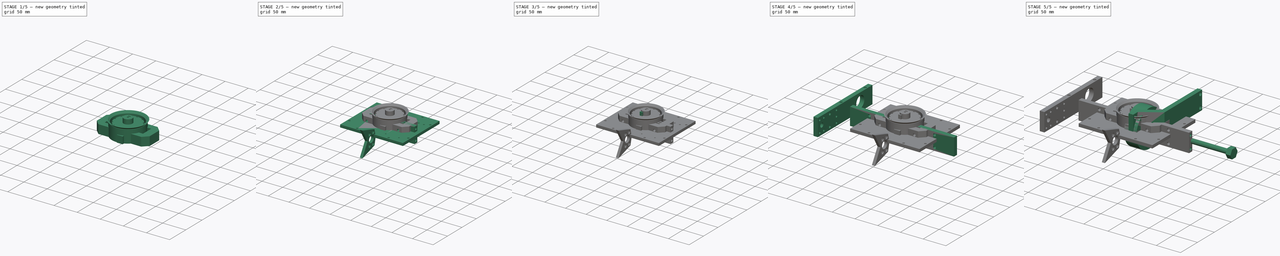
[diagram: build sequence overview — one tinted view per stage of 5, left to right]
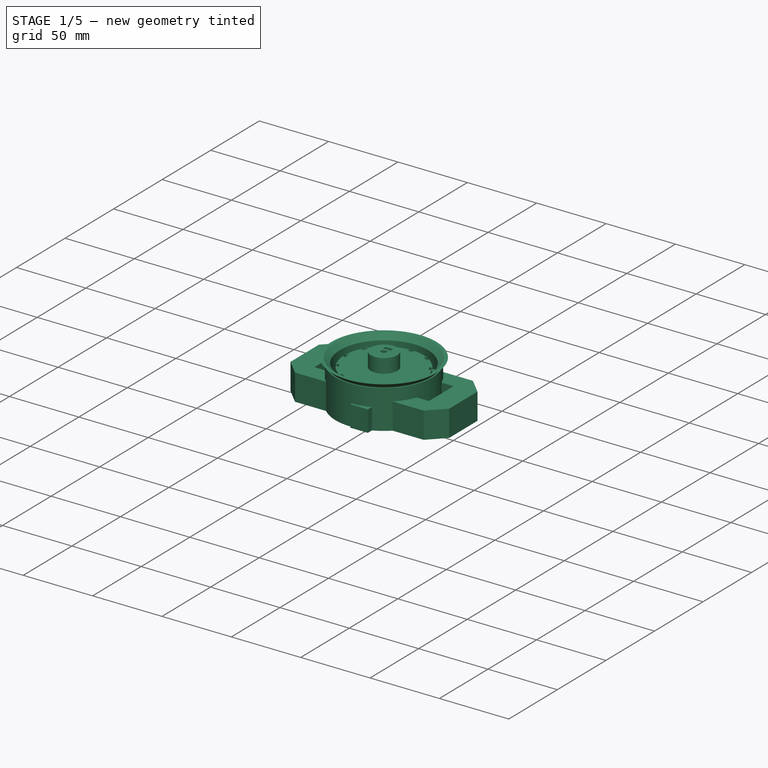
[diagram: stage 1 of 5 — iso view after this stage's code; geometry added in this stage tinted green]
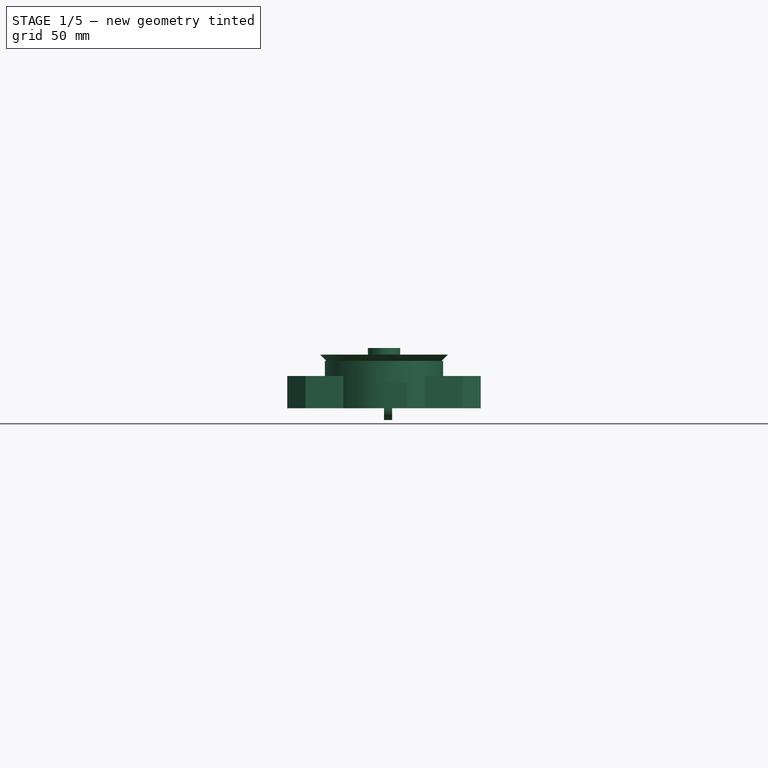
[diagram: stage 1 of 5 — front view after this stage's code; geometry added in this stage tinted green]
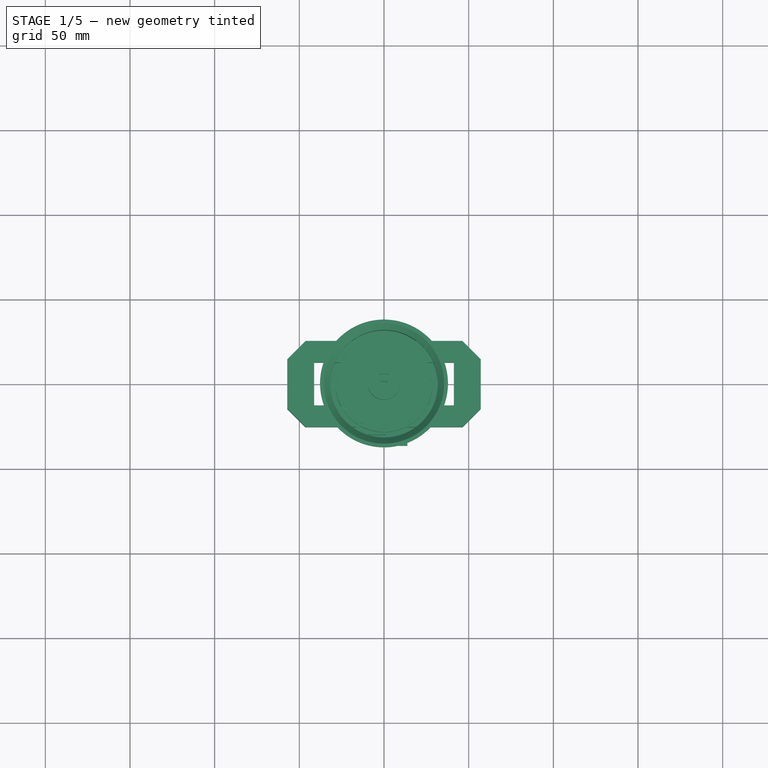
[diagram: stage 1 of 5 — top view after this stage's code; geometry added in this stage tinted green]
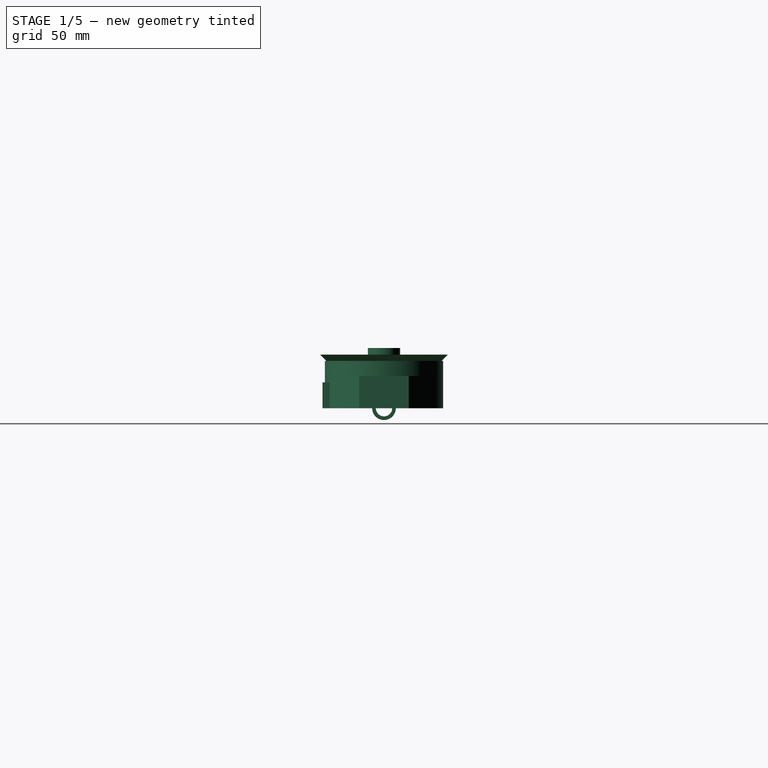
[diagram: stage 1 of 5 — right view after this stage's code; geometry added in this stage tinted green]
FCSTD DOCUMENT  (FreeCAD 2024.2R37191 (Git))
Label: VS_beater_bot
License: All rights reserved
LicenseURL: http://en.wikipedia.org/wiki/All_rights_reserved
objects: Sketcher::SketchObject×80, PartDesign::Pocket×44, PartDesign::Pad×30, PartDesign::Body×24, App::DocumentObjectGroup×5, PartDesign::Mirrored×5, PartDesign::Plane×3, PartDesign::Chamfer×2, Part::FeaturePython×2, PartDesign::FeatureBase×2, PartDesign::AdditiveLoft×2, PartDesign::Revolution×2, Spreadsheet::Sheet×1, Part::Mirroring×1, Part::Feature×1, PartDesign::PolarPattern×1
note: 279 computed .brp shape members not serialized (recipe doc carries the construction recipe); baked Part::Feature solids carry a one-line shape summary decoded from their .brp

FEATURE [Sketcher::SketchObject] Sketch002
  AttachmentSupport = -> [XY_Plane001]
  FullyConstrained = false
  MapMode = 5
  sketch-geometry (12):
    g0: LineSegment StartX=-57.15 StartY=14.5898 StartZ=0 EndX=-57.15 EndY=-14.5898 EndZ=0
    g1: LineSegment StartX=-46.3398 StartY=-25.4 StartZ=0 EndX=46.3398 EndY=-25.4 EndZ=0
    g2: LineSegment StartX=57.15 StartY=-14.5898 StartZ=0 EndX=57.15 EndY=14.5898 EndZ=0
    g3: LineSegment StartX=46.3398 StartY=25.4 StartZ=0 EndX=-46.3398 EndY=25.4 EndZ=0
    g4: LineSegment StartX=-41.275 StartY=12.7 StartZ=0 EndX=-41.275 EndY=-12.7 EndZ=0
    g5: LineSegment StartX=-41.275 StartY=-12.7 StartZ=0 EndX=41.275 EndY=-12.7 EndZ=0
    g6: LineSegment StartX=41.275 StartY=-12.7 StartZ=0 EndX=41.275 EndY=12.7 EndZ=0
    g7: LineSegment StartX=41.275 StartY=12.7 StartZ=0 EndX=-41.275 EndY=12.7 EndZ=0
    g8: LineSegment StartX=46.3398 StartY=-25.4 StartZ=0 EndX=57.15 EndY=-14.5898 EndZ=0
    g9: LineSegment StartX=57.15 StartY=14.5898 StartZ=0 EndX=46.3398 EndY=25.4 EndZ=0
    g10: LineSegment StartX=-46.3398 StartY=25.4 StartZ=0 EndX=-57.15 EndY=14.5898 EndZ=0
    g11: LineSegment StartX=-57.15 StartY=-14.5898 StartZ=0 EndX=-46.3398 EndY=-25.4 EndZ=0
  constraints (32):
    c: Vertical(g0)
    c: Vertical(g2)
    c: Horizontal(g1)
    c: Horizontal(g3)
    c: Coincident(g4,g5)
    c: Coincident(g5,g6)
    c: Coincident(g6,g7)
    c: Coincident(g7,g4)
    c: Vertical(g4)
    c: Vertical(g6)
    c: Horizontal(g5)
    c: Horizontal(g7)
    c: Symmetric(g5,g4,g-1)
    c: Equal(g8,g9)
    c: Equal(g9,g10)
    c: Equal(g10,g11)
    c: Coincident(g0,g11)
    c: Coincident(g1,g11)
    c: Coincident(g0,g10)
    c: Coincident(g3,g10)
    c: Coincident(g3,g9)
    c: Coincident(g2,g9)
    c: Coincident(g2,g8)
    c: Coincident(g1,g8)
    c: DistanceY(g1,g3) = 50.8
    c: DistanceX(g0,g2) = 114.3
    c: Vertical(g3,g1)
    c: Vertical(g1,g3)
    c: Horizontal(g2,g0)
    c: Symmetric(g2,g0,g-1)
    c: Angle(g1,g11) = 2.35619
    c: DistanceX(g7,g7) = 82.55
FEATURE [PartDesign::Pad] Pad001
  Direction = (0,0,1)
  Length = 19.05
  Length2 = 10
  Profile = -> Sketch002
  ReferenceAxis = -> Sketch002 [N_Axis]
  Refine = true
  Suppressed = false
  Type = 0
FEATURE [Sketcher::SketchObject] Sketch009  label="receiver-footprint"
  AttachmentSupport = -> [XY_Plane009]
  FullyConstrained = false
  MapMode = 5
  sketch-geometry (8):
    g0: LineSegment StartX=-22.5 StartY=22.5 StartZ=0 EndX=-22.5 EndY=-22.5 EndZ=0
    g1: LineSegment StartX=-22.5 StartY=-22.5 StartZ=0 EndX=22.5 EndY=-22.5 EndZ=0
    g2: LineSegment StartX=22.5 StartY=-22.5 StartZ=0 EndX=22.5 EndY=22.5 EndZ=0
    g3: LineSegment StartX=22.5 StartY=22.5 StartZ=0 EndX=-22.5 EndY=22.5 EndZ=0
    g4: Circle CenterX=-17.1201 CenterY=16.5785 CenterZ=0 NormalX=0 NormalY=0 NormalZ=1 AngleXU=0 Radius=2
    g5: Circle CenterX=16.8799 CenterY=16.5785 CenterZ=0 NormalX=0 NormalY=0 NormalZ=1 AngleXU=0 Radius=2
    g6: Circle CenterX=16.8799 CenterY=-17.4215 CenterZ=0 NormalX=0 NormalY=0 NormalZ=1 AngleXU=0 Radius=2
    g7: Circle CenterX=-17.1201 CenterY=-17.4215 CenterZ=0 NormalX=0 NormalY=0 NormalZ=1 AngleXU=0 Radius=2
  constraints (21):
    c: Coincident(g0,g1)
    c: Coincident(g1,g2)
    c: Coincident(g2,g3)
    c: Coincident(g3,g0)
    c: Vertical(g0)
    c: Vertical(g2)
    c: Horizontal(g1)
    c: Horizontal(g3)
    c: Symmetric(g1,g0,g-1)
    c: Equal(g7,g6)
    c: Equal(g6,g5)
    c: Equal(g5,g4)
    c: Diameter(g5) = 4
    c: DistanceX(g3,g3) = 45
    c: Equal(g3,g2)
    c: Horizontal(g5,g4)
    c: Horizontal(g7,g6)
    c: Vertical(g6,g5)
    c: Vertical(g7,g4)
    c: Distance(g7,g6) = 34
    c: DistanceY(g6,g5) = 34
FEATURE [PartDesign::Pad] Pad007
  Direction = (0,0,1)
  Length = 12.7
  Length2 = 10
  Profile = -> Sketch009
  ReferenceAxis = -> Sketch009 [N_Axis]
  Refine = true
  Suppressed = false
  Type = 0
FEATURE [PartDesign::Body] Body021  label="drive-motor"
  Group = -> [Sketch058,Pad026,Sketch059,Pad027,Sketch062,Pad029]
  Origin = -> Origin021
  Placement = pos=(-0.1778,40.259,0.5588) rot=(0,0,1;3.14159rad)
  Tip = -> Pad029
FEATURE [Sketcher::SketchObject] Sketch063  label="battery"
  FullyConstrained = false
  sketch-geometry (7):
    g0: LineSegment StartX=-16.7065 StartY=27.9349 StartZ=0 EndX=13.7735 EndY=27.9349 EndZ=0
    g1: LineSegment StartX=13.7735 StartY=27.9349 StartZ=0 EndX=13.7735 EndY=-29.9771 EndZ=0
    g2: LineSegment StartX=1.07345 StartY=-29.9771 StartZ=0 EndX=-16.7065 EndY=-29.9771 EndZ=0
    g3: LineSegment StartX=-16.7065 StartY=-29.9771 StartZ=0 EndX=-16.7065 EndY=27.9349 EndZ=0
    g4: LineSegment StartX=1.07345 StartY=-29.9771 StartZ=0 EndX=1.07345 EndY=-36.3271 EndZ=0
    g5: LineSegment StartX=1.07345 StartY=-36.3271 StartZ=0 EndX=13.7735 EndY=-36.3271 EndZ=0
    g6: LineSegment StartX=13.7735 StartY=-36.3271 StartZ=0 EndX=13.7735 EndY=-29.9771 EndZ=0
  constraints (19):
    c: Coincident(g0,g1)
    c: Coincident(g2,g3)
    c: Coincident(g3,g0)
    c: Horizontal(g0)
    c: Horizontal(g2)
    c: Vertical(g1)
    c: Vertical(g3)
    c: DistanceX(g0,g0) = 30.48
    c: DistanceY(g1,g1) = 57.912
    c: Coincident(g4,g5)
    c: Coincident(g5,g6)
    c: Horizontal(g5)
    c: Vertical(g4)
    c: Vertical(g6)
    c: Coincident(g1,g6)
    c: Horizontal(g1,g2)
    c: Coincident(g2,g4)
    c: DistanceY(g6,g6) = 6.35
    c: DistanceX(g5,g5) = 12.7
FEATURE [PartDesign::Pad] Pad030
  Direction = (0,0,1)
  Length = 15.24
  Length2 = 99.9998
  Profile = -> Sketch063
  Suppressed = false
  Type = 0
FEATURE [PartDesign::Body] Body024  label="battery001"
  Group = -> [Sketch063,Pad030]
  Origin = -> Origin024
  Placement = pos=(-30.5816,73.9394,-15.4432) rot=(0.707107,0.707107,0;3.14159rad)
  Tip = -> Pad030
FEATURE [Sketcher::SketchObject] Sketch064
  AttachmentSupport = -> [XY_Plane025]
  FullyConstrained = true
  MapMode = 5
  sketch-geometry (4):
    g0: LineSegment StartX=-19.05 StartY=9.525 StartZ=0 EndX=-19.05 EndY=-9.525 EndZ=0
    g1: LineSegment StartX=-19.05 StartY=-9.525 StartZ=0 EndX=19.05 EndY=-9.525 EndZ=0
    g2: LineSegment StartX=19.05 StartY=-9.525 StartZ=0 EndX=19.05 EndY=9.525 EndZ=0
    g3: LineSegment StartX=19.05 StartY=9.525 StartZ=0 EndX=-19.05 EndY=9.525 EndZ=0
  constraints (11):
    c: Coincident(g0,g1)
    c: Coincident(g1,g2)
    c: Coincident(g2,g3)
    c: Coincident(g3,g0)
    c: Vertical(g0)
    c: Vertical(g2)
    c: Horizontal(g1)
    c: Horizontal(g3)
    c: Symmetric(g1,g0,g-1)
    c: DistanceX(g3,g3) = 38.1
    c: DistanceY(g2,g2) = 19.05
FEATURE [PartDesign::Pad] Pad031
  Direction = (0,0,1)
  Length = 6.35
  Length2 = 10
  Profile = -> Sketch064
  ReferenceAxis = -> Sketch064 [N_Axis]
  Refine = true
  Suppressed = false
  Type = 0
FEATURE [PartDesign::Body] Body001  label="beater-bar"
  Group = -> [Sketch002,Pad001,Sketch003,Pocket001,Sketch100,Pocket027,Sketch101,Pocket028,Mirrored002,Sketch118,Pocket042,Mirrored004]
  Origin = -> Origin001
  Placement = pos=(-58.293,-69.469,-9.4742) rot=(0,0,1;0rad)
  Tip = -> Mirrored004
FEATURE [App::DocumentObjectGroup] Group003  label="components"
  Group = -> [Body025,Body024,Body009]
FEATURE [Sketcher::SketchObject] Sketch119
  AttachmentSupport = -> [XY_Plane034]
  FullyConstrained = true
  MapMode = 5
  sketch-geometry (4):
    g0: ArcOfCircle CenterX=0 CenterY=0 CenterZ=0 NormalX=0 NormalY=0 NormalZ=1 AngleXU=0 Radius=2.0955 StartAngle=2.43039 EndAngle=6.99439
    g1: LineSegment StartX=-1.5875 StartY=1.36783 StartZ=0 EndX=1.5875 EndY=1.36783 EndZ=0
    g2: Circle CenterX=0 CenterY=0 CenterZ=0 NormalX=0 NormalY=0 NormalZ=1 AngleXU=0 Radius=28.575
    g3: Circle CenterX=0 CenterY=0 CenterZ=0 NormalX=0 NormalY=0 NormalZ=1 AngleXU=0 Radius=38.1
  constraints (10):
    c: Coincident(g0,g-1)
    c: Horizontal(g1)
    c: Coincident(g0,g1)
    c: Coincident(g0,g1)
    c: Coincident(g2,g0)
    c: Diameter(g2) = 57.15
    c: Coincident(g3,g0)
    c: Diameter(g3) = 76.2
    c: DistanceX(g1,g1) = 3.175
    c: Diameter(g0) = 4.191
FEATURE [PartDesign::Pad] Pad043
  Direction = (0,0,1)
  Length = 25.4
  Length2 = 10
  Profile = -> Sketch119
  ReferenceAxis = -> Sketch119 [N_Axis]
  Suppressed = false
  Type = 0
FEATURE [Sketcher::SketchObject] Sketch120
  AttachmentSupport = -> [Pad043]
  FullyConstrained = false
  MapMode = 5
  Placement = pos=(0,0,25.4) rot=(0,0,1;0rad)
  sketch-geometry (9):
    g0: LineSegment StartX=1.27 StartY=30.0242 StartZ=0 EndX=1.27 EndY=27.803 EndZ=0
    g1: LineSegment StartX=1.27 StartY=27.803 StartZ=0 EndX=2.14117 EndY=27.2335 EndZ=0
    g2: LineSegment StartX=2.14117 StartY=27.2335 StartZ=0 EndX=1.524 EndY=26.6873 EndZ=0
    g3: LineSegment StartX=1.524 StartY=26.6873 StartZ=0 EndX=0 EndY=26.6873 EndZ=0
    g4: LineSegment StartX=0 StartY=26.6873 StartZ=0 EndX=-1.524 EndY=26.6873 EndZ=0
    g5: LineSegment StartX=-1.524 StartY=26.6873 StartZ=0 EndX=-2.14117 EndY=27.2335 EndZ=0
    g6: LineSegment StartX=-2.14117 StartY=27.2335 StartZ=0 EndX=-1.27 EndY=27.803 EndZ=0
    g7: LineSegment StartX=-1.27 StartY=27.803 StartZ=0 EndX=-1.27 EndY=30.0242 EndZ=0
    g8: LineSegment StartX=1.27 StartY=30.0242 StartZ=0 EndX=-1.27 EndY=30.0242 EndZ=0
  constraints (21):
    c: Coincident(g0,g1)
    c: Coincident(g1,g2)
    c: Coincident(g2,g3)
    c: PointOnObject(g3,g-2)
    c: Coincident(g3,g4)
    c: Coincident(g4,g5)
    c: Coincident(g5,g6)
    c: Coincident(g6,g7)
    c: Equal(g7,g0)
    c: Equal(g6,g1)
    c: Equal(g2,g5)
    c: Equal(g4,g3)
    c: Horizontal(g5,g1)
    c: Horizontal(g4,g2)
    c: Coincident(g8,g0)
    c: Coincident(g8,g7)
    c: Horizontal(g8)
    c: Vertical(g0)
    c: Vertical(g7)
    c: DistanceX(g8,g8) = 2.54
    c: Distance(g3) = 1.524
FEATURE [PartDesign::Pocket] Pocket043
  BaseFeature = -> Pad043
  Direction = (0,0,-1)
  Length = 5
  Length2 = 5
  Profile = -> Sketch120
  ReferenceAxis = -> Sketch120 [N_Axis]
  Suppressed = false
  Type = 1
FEATURE [PartDesign::PolarPattern] PolarPattern
  Angle = 360
  Axis = -> Sketch120 [N_Axis]
  BaseFeature = -> Pocket043
  Mode = 0
  Occurrences = 12
  Offset = 120
  Originals = -> [Pocket043]
  Suppressed = false
FEATURE [Sketcher::SketchObject] Sketch121
  AttachmentSupport = -> [PolarPattern]
  ExternalGeometry = -> [PolarPattern]
  FullyConstrained = false
  MapMode = 5
  Placement = pos=(0,0,25.4) rot=(0,0,1;0rad)
  sketch-geometry (3):
    g0: Circle CenterX=0 CenterY=0 CenterZ=0 NormalX=0 NormalY=0 NormalZ=1 AngleXU=0 Radius=9.525
    g1: LineSegment StartX=-1.5875 StartY=1.36783 StartZ=0 EndX=1.5875 EndY=1.36783 EndZ=0
    g2: ArcOfCircle CenterX=0 CenterY=0 CenterZ=0 NormalX=0 NormalY=0 NormalZ=1 AngleXU=0 Radius=2.0955 StartAngle=2.43039 EndAngle=6.99439
  constraints (6):
    c: Coincident(g0,g-1)
    c: Coincident(g1,g-4)
    c: Coincident(g1,g-4)
    c: Coincident(g2,g0)
    c: Coincident(g2,g1)
    c: Diameter(g0) = 19.05
FEATURE [PartDesign::Pad] Pad044  label="hub"
  BaseFeature = -> PolarPattern
  Direction = (0,0,1)
  Length = 10.16
  Length2 = 10
  Profile = -> Sketch121
  ReferenceAxis = -> Sketch121 [N_Axis]
  Suppressed = false
  Type = 0
FEATURE [PartDesign::Plane] DatumPlane002
  AttachmentSupport = -> [Pad044]
  Length = 68.9087
  MapMode = 5
  Placement = pos=(0,1.36783,0) rot=(1,0,0;1.5708rad)
  ResizeMode = 0
  Width = 72.3253
FEATURE [Sketcher::SketchObject] Sketch122
  AttachmentSupport = -> [DatumPlane002]
  FullyConstrained = true
  MapMode = 5
  Placement = pos=(0,1.36783,0) rot=(1,0,0;1.5708rad)
  sketch-geometry (1):
    g0: Circle CenterX=0 CenterY=30.1625 CenterZ=0 NormalX=0 NormalY=0 NormalZ=1 AngleXU=0 Radius=1.7399
  constraints (3):
    c: PointOnObject(g0,g-2)
    c: DistanceY(g-1,g0) = 30.1625
    c: Diameter(g0) = 3.4798
FEATURE [PartDesign::Pocket] Pocket044  label="setscrew-hole"
  BaseFeature = -> Pad044
  Direction = (0,1,-2e-16)
  Length = 11.43
  Length2 = 5
  Profile = -> Sketch122
  ReferenceAxis = -> Sketch122 [N_Axis]
  Suppressed = false
  Type = 0
FEATURE [Sketcher::SketchObject] Sketch123
  AttachmentSupport = -> [Pocket044]
  FullyConstrained = true
  MapMode = 5
  Placement = pos=(0,0,35.56) rot=(0,0,1;0rad)
  sketch-geometry (4):
    g0: LineSegment StartX=-2.794 StartY=5.588 StartZ=0 EndX=2.794 EndY=5.588 EndZ=0
    g1: LineSegment StartX=2.794 StartY=5.588 StartZ=0 EndX=2.794 EndY=3.175 EndZ=0
    g2: LineSegment StartX=2.794 StartY=3.175 StartZ=0 EndX=-2.794 EndY=3.175 EndZ=0
    g3: LineSegment StartX=-2.794 StartY=3.175 StartZ=0 EndX=-2.794 EndY=5.588 EndZ=0
  constraints (11):
    c: Coincident(g0,g1)
    c: Coincident(g1,g2)
    c: Coincident(g2,g3)
    c: Coincident(g3,g0)
    c: Horizontal(g2)
    c: Vertical(g1)
    c: Vertical(g3)
    c: DistanceX(g0,g0) = 5.588
    c: DistanceY(g1,g1) = 2.413
    c: Symmetric(g0,g0,g-2)
    c: DistanceY(g-1,g1) = 3.175
FEATURE [PartDesign::Pocket] Pocket045  label="recess-nut"
  BaseFeature = -> Pocket044
  Direction = (0,0,-1)
  Length = 9.525
  Length2 = 5
  Profile = -> Sketch123
  ReferenceAxis = -> Sketch123 [N_Axis]
  Suppressed = false
  Type = 0
FEATURE [Sketcher::SketchObject] Sketch124
  AttachmentSupport = -> [Pocket045]
  FullyConstrained = false
  MapMode = 5
  Placement = pos=(0,0,0) rot=(1,0,0;3.14159rad)
  sketch-geometry (1):
    g0: Circle CenterX=0 CenterY=0 CenterZ=0 NormalX=0 NormalY=0 NormalZ=1 AngleXU=0 Radius=4.70672
  constraints (1):
    c: Coincident(g0,g-1)
FEATURE [PartDesign::Pad] Pad045  label="close-outside"
  BaseFeature = -> Pocket045
  Direction = (0,0,-1)
  Length = 5.08
  Length2 = 10
  Profile = -> Sketch124
  ReferenceAxis = -> Sketch124 [N_Axis]
  Reversed = true
  Suppressed = false
  Type = 0
FEATURE [Sketcher::SketchObject] Sketch125
  AttachmentSupport = -> [XY_Plane035]
  FullyConstrained = true
  MapMode = 5
  sketch-geometry (1):
    g0: Circle CenterX=0 CenterY=0 CenterZ=0 NormalX=0 NormalY=0 NormalZ=1 AngleXU=0 Radius=34.925
  constraints (2):
    c: Coincident(g0,g-1)
    c: Diameter(g0) = 69.85
FEATURE [PartDesign::Pad] Pad046  label="outside"
  Direction = (0,0,1)
  Length = 27.94
  Length2 = 10
  Profile = -> Sketch125
  ReferenceAxis = -> Sketch125 [N_Axis]
  Suppressed = false
  Type = 0
FEATURE [Sketcher::SketchObject] Sketch126
  AttachmentSupport = -> [Pad046]
  FullyConstrained = true
  MapMode = 5
  Placement = pos=(0,0,27.94) rot=(0,0,1;0rad)
  sketch-geometry (1):
    g0: Circle CenterX=0 CenterY=0 CenterZ=0 NormalX=0 NormalY=0 NormalZ=1 AngleXU=0 Radius=31.75
  constraints (2):
    c: Coincident(g0,g-1)
    c: Diameter(g0) = 63.5
FEATURE [PartDesign::Pocket] Pocket046  label="inner-pocket"
  BaseFeature = -> Pad046
  Direction = (0,0,-1)
  Length = 25.4
  Length2 = 5
  Profile = -> Sketch126
  ReferenceAxis = -> Sketch126 [N_Axis]
  Suppressed = false
  Type = 0
FEATURE [Sketcher::SketchObject] Sketch127
  AttachmentSupport = -> [Pocket046]
  FullyConstrained = true
  MapMode = 5
  Placement = pos=(0,0,0) rot=(1,0,0;3.14159rad)
  sketch-geometry (1):
    g0: Circle CenterX=0 CenterY=0 CenterZ=0 NormalX=0 NormalY=0 NormalZ=1 AngleXU=0 Radius=9.6139
  constraints (2):
    c: Coincident(g0,g-1)
    c: Diameter(g0) = 19.2278
FEATURE [PartDesign::Pocket] Pocket047  label="hub-pocket"
  BaseFeature = -> Pocket046
  Direction = (0,0,1)
  Length = 5
  Length2 = 5
  Profile = -> Sketch127
  ReferenceAxis = -> Sketch127 [N_Axis]
  Suppressed = false
  Type = 1
FEATURE [Sketcher::SketchObject] Sketch128
  AttachmentSupport = -> [YZ_Plane036]
  FullyConstrained = true
  MapMode = 5
  Placement = pos=(0,0,0) rot=(0.57735,0.57735,0.57735;2.0944rad)
  sketch-geometry (2):
    g0: Circle CenterX=0 CenterY=0 CenterZ=0 NormalX=0 NormalY=0 NormalZ=1 AngleXU=0 Radius=4.826
    g1: Circle CenterX=0 CenterY=0 CenterZ=0 NormalX=0 NormalY=0 NormalZ=1 AngleXU=0 Radius=6.985
  constraints (4):
    c: Coincident(g0,g-1)
    c: Coincident(g1,g0)
    c: Diameter(g0) = 9.652
    c: Diameter(g1) = 13.97
FEATURE [PartDesign::Pad] Pad047
  Direction = (1,0,0)
  Length = 1.5875
  Length2 = 10
  Placement = pos=(0,0,0) rot=(0.57735,0.57735,0.57735;2.0944rad)
  Profile = -> Sketch128
  ReferenceAxis = -> Sketch128 [N_Axis]
  Refine = true
  Suppressed = false
  Type = 0
FEATURE [PartDesign::Body] Body036  label="spacer-small"
  Group = -> [Sketch128,Pad047]
  Origin = -> Origin036
  Tip = -> Pad047
FEATURE [Sketcher::SketchObject] Sketch129
  AttachmentSupport = -> [YZ_Plane037]
  FullyConstrained = true
  MapMode = 5
  Placement = pos=(0,0,0) rot=(0.57735,0.57735,0.57735;2.0944rad)
  sketch-geometry (2):
    g0: Circle CenterX=0 CenterY=0 CenterZ=0 NormalX=0 NormalY=0 NormalZ=1 AngleXU=0 Radius=4.826
    g1: Circle CenterX=0 CenterY=0 CenterZ=0 NormalX=0 NormalY=0 NormalZ=1 AngleXU=0 Radius=6.985
  constraints (4):
    c: Coincident(g0,g-1)
    c: Coincident(g1,g0)
    c: Diameter(g0) = 9.652
    c: Diameter(g1) = 13.97
FEATURE [PartDesign::Pad] Pad048
  Direction = (1,0,0)
  Length = 4.7625
  Length2 = 10
  Placement = pos=(0,0,0) rot=(0.57735,0.57735,0.57735;2.0944rad)
  Profile = -> Sketch129
  ReferenceAxis = -> Sketch129 [N_Axis]
  Refine = true
  Suppressed = false
  Type = 0
FEATURE [PartDesign::Body] Body037  label="spacer-big"
  Group = -> [Sketch129,Pad048]
  Origin = -> Origin037
  Tip = -> Pad048
FEATURE [App::DocumentObjectGroup] Group  label="weapon"
  Group = -> [Body001,Body028,Body029,beater_bar_driven_pulley001_solid,Body031,TimingGear,Body032,TimingGear001,Body010,Body036,Body037]
FEATURE [Sketcher::SketchObject] Sketch130
  AttachmentSupport = -> [YZ_Plane034]
  FullyConstrained = false
  MapMode = 5
  Placement = pos=(0,0,0) rot=(0.57735,0.57735,0.57735;2.0944rad)
  sketch-geometry (16):
    g0: LineSegment StartX=25.4665 StartY=25.4 StartZ=0 EndX=25.4665 EndY=21.7802 EndZ=0
    g1: LineSegment StartX=25.4665 StartY=21.7802 StartZ=0 EndX=28.5748 EndY=21.7802 EndZ=0
    g2: LineSegment StartX=28.5748 StartY=21.7802 StartZ=0 EndX=28.5748 EndY=18.1399 EndZ=0
    g3: LineSegment StartX=28.5748 StartY=18.1399 StartZ=0 EndX=25.4665 EndY=18.1399 EndZ=0
    g4: LineSegment StartX=25.4665 StartY=18.1399 StartZ=0 EndX=25.4665 EndY=14.5202 EndZ=0
    g5: LineSegment StartX=25.4665 StartY=14.5202 StartZ=0 EndX=28.5748 EndY=14.5202 EndZ=0
    g6: LineSegment StartX=28.5748 StartY=14.5202 StartZ=0 EndX=28.5748 EndY=10.8798 EndZ=0
    g7: LineSegment StartX=28.5748 StartY=10.8798 StartZ=0 EndX=25.4665 EndY=10.8798 EndZ=0
    g8: LineSegment StartX=25.4665 StartY=10.8798 StartZ=0 EndX=25.4665 EndY=7.26008 EndZ=0
    g9: LineSegment StartX=25.4665 StartY=7.26008 StartZ=0 EndX=28.5748 EndY=7.26008 EndZ=0
    g10: LineSegment StartX=28.5748 StartY=7.26008 StartZ=0 EndX=28.5748 EndY=3.61975 EndZ=0
    g11: LineSegment StartX=28.5748 StartY=3.61975 StartZ=0 EndX=25.4665 EndY=3.61975 EndZ=0
    g12: LineSegment StartX=25.4665 StartY=0 StartZ=0 EndX=20.0728 EndY=0 EndZ=0
    g13: LineSegment StartX=20.0728 StartY=0 StartZ=0 EndX=20.0728 EndY=25.4 EndZ=0
    g14: LineSegment StartX=20.0728 StartY=25.4 StartZ=0 EndX=25.4665 EndY=25.4 EndZ=0
    g15: LineSegment StartX=25.4665 StartY=3.61975 StartZ=0 EndX=25.4665 EndY=0 EndZ=0
  constraints (44):
    c: Vertical(g0)
    c: Coincident(g0,g1)
    c: Horizontal(g1)
    c: Coincident(g1,g2)
    c: Vertical(g2)
    c: Coincident(g2,g3)
    c: Horizontal(g3)
    c: Coincident(g3,g4)
    c: Vertical(g4)
    c: Coincident(g4,g5)
    c: Horizontal(g5)
    c: Coincident(g5,g6)
    c: Vertical(g6)
    c: Coincident(g6,g7)
    c: Horizontal(g7)
    c: Coincident(g7,g8)
    c: Vertical(g8)
    c: Coincident(g8,g9)
    c: Horizontal(g9)
    c: Coincident(g9,g10)
    c: Vertical(g10)
    c: Coincident(g10,g11)
    c: Horizontal(g11)
    c: Horizontal(g12)
    c: Coincident(g12,g13)
    c: Vertical(g13)
    c: Coincident(g13,g14)
    c: Horizontal(g14)
    c: Equal(g2,g6)
    c: Equal(g0,g4)
    c: Equal(g4,g8)
    c: Equal(g14,g12)
    c: PointOnObject(g12,g-1)
    c: DistanceY(g13,g13) = 25.4
    c: Vertical(g8,g4)
    c: Vertical(g4,g0)
    c: Coincident(g0,g14)
    c: Coincident(g11,g15)
    c: Coincident(g15,g12)
    c: Vertical(g15)
    c: Vertical(g2,g5)
    c: Vertical(g5,g9)
    c: Equal(g10,g6)
    c: Equal(g0,g15)
FEATURE [PartDesign::Revolution] Revolution  label="weight-reduction"
  Angle = 360
  Angle2 = 60
  Axis = (0,0,1)
  Base = (0,0,0)
  BaseFeature = -> Pad045
  Profile = -> Sketch130
  ReferenceAxis = -> Sketch130 [V_Axis]
  Refine = true
  Reversed = true
  Suppressed = false
  Type = 0
FEATURE [PartDesign::Body] Body034  label="wheel"
  Group = -> [Sketch119,Pad043,Sketch120,Pocket043,PolarPattern,Sketch121,Pad044,DatumPlane002,Sketch122,Pocket044,Sketch123,Pocket045,Sketch124,Pad045,Sketch130,Revolution]
  Origin = -> Origin034
  Tip = -> Revolution
FEATURE [Sketcher::SketchObject] Sketch131
  AttachmentSupport = -> [XZ_Plane035]
  FullyConstrained = false
  MapMode = 5
  Placement = pos=(0,0,0) rot=(1,0,0;1.5708rad)
  sketch-geometry (4):
    g0: LineSegment StartX=34.0417 StartY=27.9212 StartZ=0 EndX=37.7785 EndY=31.6581 EndZ=0
    g1: LineSegment StartX=37.7785 StartY=31.6581 StartZ=0 EndX=35.5004 EndY=31.6581 EndZ=0
    g2: LineSegment StartX=35.5004 StartY=31.6581 StartZ=0 EndX=31.7636 EndY=27.9212 EndZ=0
    g3: LineSegment StartX=31.7636 StartY=27.9212 StartZ=0 EndX=34.0417 EndY=27.9212 EndZ=0
  constraints (8):
    c: Coincident(g0,g1)
    c: Horizontal(g1)
    c: Coincident(g1,g2)
    c: Coincident(g2,g3)
    c: Coincident(g3,g0)
    c: Horizontal(g3)
    c: Angle(g2,g-1) = 2.35619
    c: Parallel(g2,g0)
FEATURE [PartDesign::Revolution] Revolution001
  Angle = 360
  Angle2 = 60
  Axis = (0,2e-16,1)
  Base = (0,0,0)
  BaseFeature = -> Pocket047
  Profile = -> Sketch131
  ReferenceAxis = -> Sketch131 [V_Axis]
  Refine = true
  Reversed = true
  Suppressed = false
  Type = 0
FEATURE [PartDesign::Body] Body035  label="tire-mold"
  Group = -> [Sketch125,Pad046,Sketch126,Pocket046,Sketch127,Pocket047,Sketch131,Revolution001]
  Origin = -> Origin035
  Tip = -> Revolution001
FEATURE [App::DocumentObjectGroup] Group004  label="wheels"
  Group = -> [Body034,Body035]
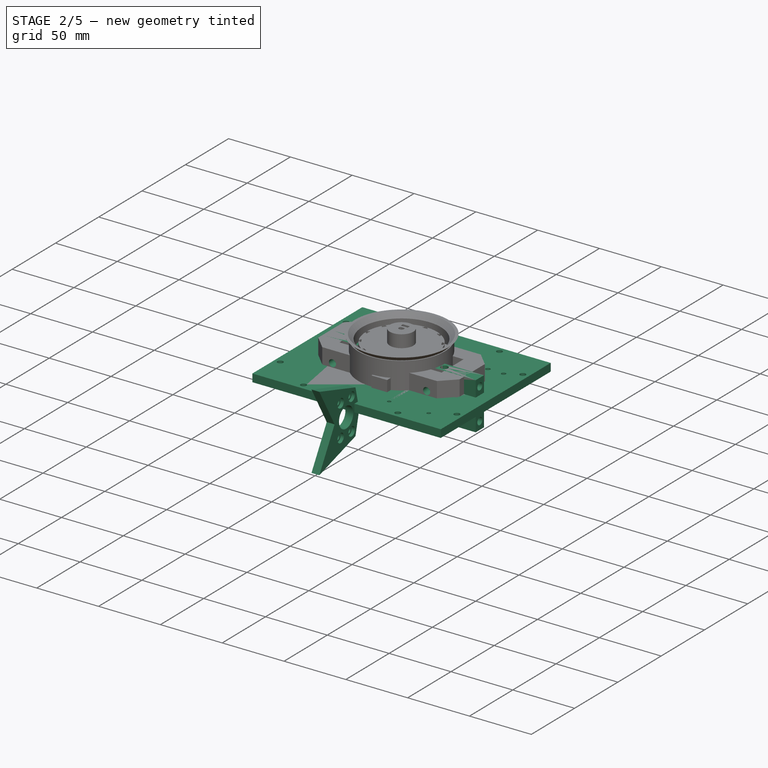
[diagram: stage 2 of 5 — iso view after this stage's code; geometry added in this stage tinted green]
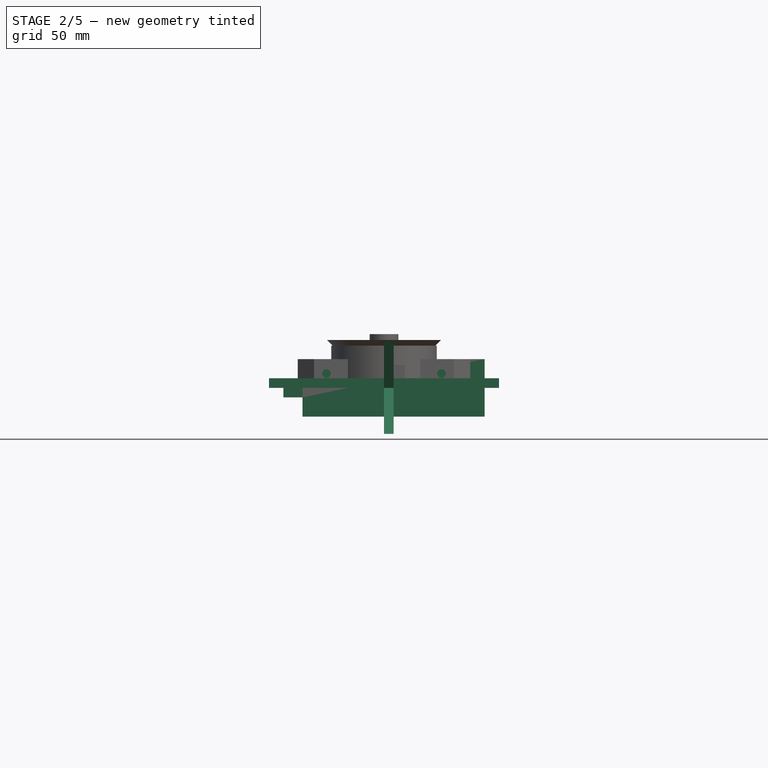
[diagram: stage 2 of 5 — front view after this stage's code; geometry added in this stage tinted green]
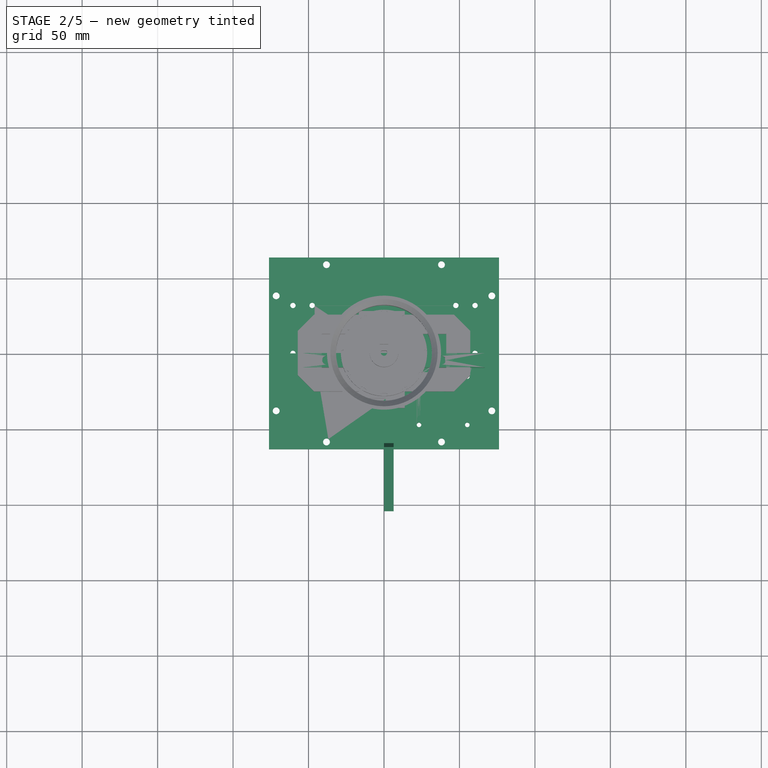
[diagram: stage 2 of 5 — top view after this stage's code; geometry added in this stage tinted green]
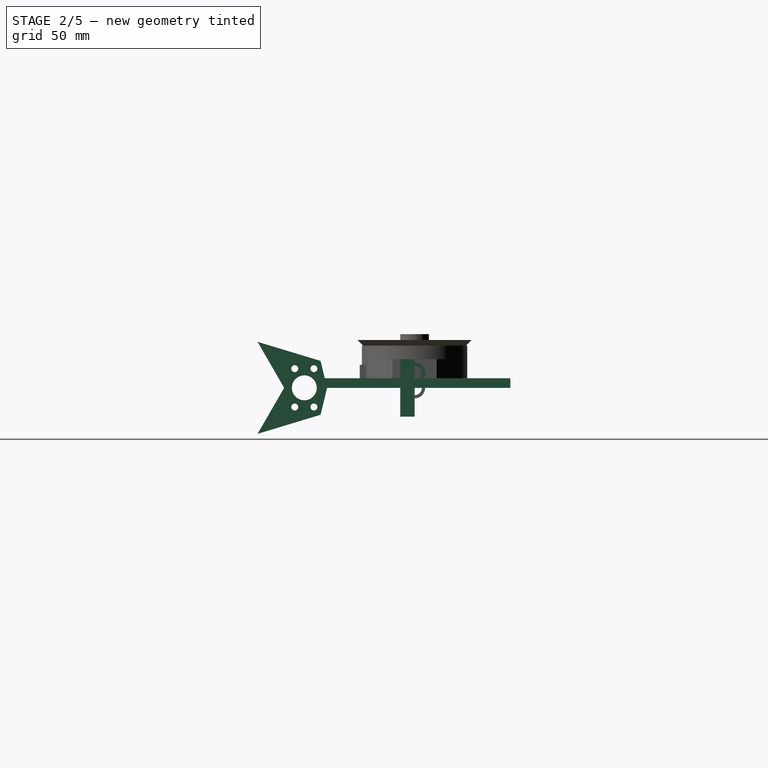
[diagram: stage 2 of 5 — right view after this stage's code; geometry added in this stage tinted green]
FEATURE [Sketcher::SketchObject] Sketch003
  AttachmentSupport = -> [Pad001]
  ExternalGeometry = -> [Pad001]
  FullyConstrained = false
  MapMode = 5
  Placement = pos=(-57.15,0,0) rot=(0.57735,-0.57735,-0.57735;2.0944rad)
  sketch-geometry (2):
    g0: Circle CenterX=0 CenterY=9.525 CenterZ=0 NormalX=0 NormalY=0 NormalZ=1 AngleXU=0 Radius=5.08
    g1: GeomPoint X=15.095 Y=15.1276 Z=0
  constraints (3):
    c: Diameter(g0) = 10.16
    c: PointOnObject(g0,g-2)
    c: DistanceY(g-1,g0) = 9.525
FEATURE [PartDesign::Pocket] Pocket001  label="bolt-hole"
  BaseFeature = -> Pad001
  Direction = (1,0,0)
  Length = 5
  Length2 = 5
  Profile = -> Sketch003
  ReferenceAxis = -> Sketch003 [N_Axis]
  Refine = true
  Suppressed = false
  Type = 1
FEATURE [PartDesign::Body] Body002  label="tire"
  Group = -> [Sketch004,Pad002]
  Origin = -> Origin002
  Placement = pos=(13.1064,41.6052,0) rot=(0,0,1;0rad)
  Tip = -> Pad002
FEATURE [Sketcher::SketchObject] Sketch005
  AttachmentSupport = -> [XZ_Plane003]
  FullyConstrained = true
  MapMode = 5
  Placement = pos=(0,0,0) rot=(1,0,0;1.5708rad)
  expr: Constraints[4] = <<Spreadsheet>>.bot_height
  sketch-geometry (9):
    g0: LineSegment StartX=66.675 StartY=-19.05 StartZ=0 EndX=66.675 EndY=19.05 EndZ=0
    g1: LineSegment StartX=66.675 StartY=19.05 StartZ=0 EndX=-53.975 EndY=19.05 EndZ=0
    g2: GeomPoint X=-66.675 Y=19.05 Z=0
    g3: LineSegment StartX=-66.675 StartY=6.35 StartZ=0 EndX=-53.975 EndY=6.35 EndZ=0
    g4: LineSegment StartX=-53.975 StartY=6.35 StartZ=0 EndX=-53.975 EndY=19.05 EndZ=0
    g5: LineSegment StartX=-66.675 StartY=-6.35 StartZ=0 EndX=-53.975 EndY=-6.35 EndZ=0
    g6: LineSegment StartX=-53.975 StartY=-6.35 StartZ=0 EndX=-53.975 EndY=-19.05 EndZ=0
    g7: LineSegment StartX=-53.975 StartY=-19.05 StartZ=0 EndX=66.675 EndY=-19.05 EndZ=0
    g8: LineSegment StartX=-66.675 StartY=6.35 StartZ=0 EndX=-66.675 EndY=-6.35 EndZ=0
  constraints (25):
    c: Coincident(g7,g0)
    c: Coincident(g0,g1)
    c: Vertical(g0)
    c: Horizontal(g1)
    c: DistanceY(g0,g0) = 38.1
    c: PointOnObject(g2,g1)
    c: Horizontal(g3)
    c: Coincident(g3,g4)
    c: Vertical(g4)
    c: Horizontal(g5)
    c: Coincident(g5,g6)
    c: Vertical(g6)
    c: DistanceY(g3,g2) = 12.7
    c: Distance(g3,g3) = 12.7
    c: Coincident(g1,g4)
    c: Coincident(g7,g6)
    c: Equal(g5,g3)
    c: Horizontal(g7)
    c: Coincident(g8,g3)
    c: Coincident(g8,g5)
    c: Vertical(g8)
    c: Equal(g4,g6)
    c: Vertical(g2,g3)
    c: Symmetric(g0,g2,g-1)
    c: DistanceX(g1,g1) = 120.65
FEATURE [PartDesign::Pad] Pad003  label="plate"
  Direction = (0,-1,2e-16)
  Length = 9.525
  Length2 = 10
  Placement = pos=(0,0,0) rot=(1,0,0;1.5708rad)
  Profile = -> Sketch005
  ReferenceAxis = -> Sketch005 [N_Axis]
  Refine = true
  Suppressed = false
  Type = 0
FEATURE [Sketcher::SketchObject] Sketch008  label="holes004"
  AttachmentSupport = -> [XY_Plane006]
  FullyConstrained = true
  MapMode = 5
  sketch-geometry (16):
    g0: LineSegment StartX=-76.2 StartY=63.5 StartZ=0 EndX=-76.2 EndY=-63.5 EndZ=0
    g1: LineSegment StartX=-76.2 StartY=-63.5 StartZ=0 EndX=76.2 EndY=-63.5 EndZ=0
    g2: LineSegment StartX=76.2 StartY=-63.5 StartZ=0 EndX=76.2 EndY=63.5 EndZ=0
    g3: LineSegment StartX=76.2 StartY=63.5 StartZ=0 EndX=-76.2 EndY=63.5 EndZ=0
    g4: Circle CenterX=-38.1 CenterY=58.7375 CenterZ=0 NormalX=0 NormalY=0 NormalZ=1 AngleXU=0 Radius=2.2606
    g5: Circle CenterX=38.1 CenterY=58.7375 CenterZ=0 NormalX=0 NormalY=0 NormalZ=1 AngleXU=0 Radius=2.2606
    g6: Circle CenterX=71.4375 CenterY=38.1 CenterZ=0 NormalX=0 NormalY=0 NormalZ=1 AngleXU=0 Radius=2.2606
    g7: Circle CenterX=71.4375 CenterY=-38.1 CenterZ=0 NormalX=0 NormalY=0 NormalZ=1 AngleXU=0 Radius=2.2606
    g8: Circle CenterX=38.1 CenterY=-58.7375 CenterZ=0 NormalX=0 NormalY=0 NormalZ=1 AngleXU=0 Radius=2.2606
    g9: Circle CenterX=-38.1 CenterY=-58.7375 CenterZ=0 NormalX=0 NormalY=0 NormalZ=1 AngleXU=0 Radius=2.2606
    g10: Circle CenterX=-71.4375 CenterY=-38.1 CenterZ=0 NormalX=0 NormalY=0 NormalZ=1 AngleXU=0 Radius=2.2606
    g11: Circle CenterX=-71.4375 CenterY=38.1 CenterZ=0 NormalX=0 NormalY=0 NormalZ=1 AngleXU=0 Radius=2.2606
    g12: LineSegment StartX=-71.4375 StartY=58.7375 StartZ=0 EndX=71.4375 EndY=58.7375 EndZ=0
    g13: LineSegment StartX=71.4375 StartY=58.7375 StartZ=0 EndX=71.4375 EndY=-58.7375 EndZ=0
    g14: LineSegment StartX=71.4375 StartY=-58.7375 StartZ=0 EndX=-71.4375 EndY=-58.7375 EndZ=0
    g15: LineSegment StartX=-71.4375 StartY=-58.7375 StartZ=0 EndX=-71.4375 EndY=58.7375 EndZ=0
  constraints (45):
    c: Coincident(g0,g1)
    c: Coincident(g1,g2)
    c: Coincident(g2,g3)
    c: Coincident(g3,g0)
    c: Vertical(g0)
    c: Vertical(g2)
    c: Horizontal(g1)
    c: Horizontal(g3)
    c: Symmetric(g1,g0,g-1)
    c: DistanceX(g3,g3) = 152.4
    c: DistanceY(g2,g2) = 127
    c: Vertical(g5,g8)
    c: Vertical(g7,g6)
    c: Equal(g8,g7)
    c: Equal(g7,g6)
    c: Equal(g6,g5)
    c: Equal(g9,g10)
    c: Equal(g10,g11)
    c: Equal(g11,g4)
    c: Diameter(g4) = 4.5212  'm4 bolt clearance'
    c: Horizontal(g12)
    c: Coincident(g12,g13)
    c: Vertical(g13)
    c: Coincident(g13,g14)
    c: Horizontal(g14)
    c: Coincident(g14,g15)
    c: Coincident(g15,g12)
    c: Vertical(g15)
    c: DistanceX(g0,g12) = 4.7625
    c: DistanceY(g12,g0) = 4.7625
    c: DistanceY(g0,g14) = 4.7625
    c: DistanceX(g12,g2) = 4.7625
    c: PointOnObject(g10,g15)
    c: PointOnObject(g9,g14)
    c: Tangent(g7,g13) = -1.5708
    c: Horizontal(g10,g7)
    c: Horizontal(g11,g6)
    c: Symmetric(g11,g10,g-1)
    c: Symmetric(g8,g9,g-2)
    c: DistanceX(g9,g8) = 76.2
    c: Equal(g8,g9)
    c: Vertical(g4,g9)
    c: Horizontal(g5,g4)
    c: PointOnObject(g5,g12)
    c: DistanceY(g10,g11) = 76.2
FEATURE [PartDesign::Pad] Pad006  label="plate001"
  Direction = (0,0,1)
  Length = 6.35
  Length2 = 10
  Profile = -> Sketch008
  ReferenceAxis = -> Sketch008 [N_Axis]
  Refine = true
  Suppressed = false
  Type = 0
FEATURE [PartDesign::Body] Body004  label="rear-plate"
  Group = -> [Sketch006,Pad004,Sketch077,Pocket006,Sketch083,Pocket011,Sketch084,Pocket012,Sketch088,Pocket016,Sketch089,Pocket017]
  Origin = -> Origin004
  Placement = pos=(-67.691,98.679,0) rot=(0,0,1;0rad)
  Tip = -> Pocket017
FEATURE [Sketcher::SketchObject] Sketch090  label="top-holes007"
  AttachmentSupport = -> [Pad003]
  FullyConstrained = true
  MapMode = 5
  Placement = pos=(0,1.27e-14,19.05) rot=(0,0,1;3.14159rad)
  expr: Constraints[1] = <<Spreadsheet>>.m4_nut_diameter
  sketch-geometry (2):
    g0: Circle CenterX=38.1 CenterY=4.7625 CenterZ=0 NormalX=0 NormalY=0 NormalZ=1 AngleXU=0 Radius=2.8575
    g1: Circle CenterX=-38.1 CenterY=4.7625 CenterZ=0 NormalX=0 NormalY=0 NormalZ=1 AngleXU=0 Radius=2.8575
  constraints (5):
    c: Equal(g1,g0)
    c: Diameter(g1) = 5.715
    c: DistanceX(g1,g0) = 76.2
    c: DistanceY(g-1,g0) = 4.7625
    c: Symmetric(g0,g1,g-2)
FEATURE [PartDesign::Pocket] Pocket018  label="top-holes006"
  BaseFeature = -> Pad003
  Direction = (0,0,-1)
  Length = 6.096
  Length2 = 5
  Placement = pos=(0,0,0) rot=(1,0,0;1.5708rad)
  Profile = -> Sketch090
  ReferenceAxis = -> Sketch090 [N_Axis]
  Refine = true
  Suppressed = false
  Type = 0
  expr: Length = <<Spreadsheet>>.m4_nut_depth
FEATURE [Sketcher::SketchObject] Sketch091  label="top-holes008"
  AttachmentSupport = -> [Pad003]
  FullyConstrained = true
  MapMode = 5
  Placement = pos=(0,-1.27e-14,-19.05) rot=(1,0,0;3.14159rad)
  expr: Constraints[1] = <<Spreadsheet>>.m4_nut_diameter
  sketch-geometry (2):
    g0: Circle CenterX=38.1 CenterY=4.7625 CenterZ=0 NormalX=0 NormalY=0 NormalZ=1 AngleXU=0 Radius=2.8575
    g1: Circle CenterX=-38.1 CenterY=4.7625 CenterZ=0 NormalX=0 NormalY=0 NormalZ=1 AngleXU=0 Radius=2.8575
  constraints (5):
    c: Equal(g1,g0)
    c: Diameter(g1) = 5.715
    c: DistanceX(g1,g0) = 76.2
    c: DistanceY(g-1,g0) = 4.7625
    c: Symmetric(g0,g1,g-2)
FEATURE [PartDesign::Pocket] Pocket019  label="bot-holes003"
  BaseFeature = -> Pocket018
  Direction = (0,0,1)
  Length = 6.096
  Length2 = 5
  Placement = pos=(0,0,0) rot=(1,0,0;1.5708rad)
  Profile = -> Sketch091
  ReferenceAxis = -> Sketch091 [N_Axis]
  Refine = true
  Suppressed = false
  Type = 0
  expr: Length = <<Spreadsheet>>.m4_nut_depth
FEATURE [Sketcher::SketchObject] Sketch092
  AttachmentSupport = -> [Pocket019]
  FullyConstrained = true
  MapMode = 5
  Placement = pos=(66.675,0,0) rot=(0.707107,0,0.707107;3.14159rad)
  expr: Constraints[2] = <<Spreadsheet>>.m4_nut_diameter
  sketch-geometry (2):
    g0: Circle CenterX=12.7 CenterY=4.7625 CenterZ=0 NormalX=0 NormalY=0 NormalZ=1 AngleXU=0 Radius=2.8575
    g1: Circle CenterX=-12.7 CenterY=4.7625 CenterZ=0 NormalX=0 NormalY=0 NormalZ=1 AngleXU=0 Radius=2.8575
  constraints (5):
    c: Symmetric(g1,g0,g-2)
    c: Equal(g1,g0)
    c: Diameter(g0) = 5.715
    c: DistanceX(g1,g0) = 25.4
    c: DistanceY(g-1,g0) = 4.7625
FEATURE [PartDesign::Pocket] Pocket020  label="left-holes001"
  BaseFeature = -> Pocket019
  Direction = (-1,0,2e-16)
  Length = 6.096
  Length2 = 5
  Placement = pos=(0,0,0) rot=(1,0,0;1.5708rad)
  Profile = -> Sketch092
  ReferenceAxis = -> Sketch092 [N_Axis]
  Refine = true
  Suppressed = false
  Type = 0
  expr: Length = <<Spreadsheet>>.m4_nut_depth
FEATURE [Sketcher::SketchObject] Sketch097  label="holes006"
  AttachmentSupport = -> [Pad032]
  FullyConstrained = false
  MapMode = 5
  Placement = pos=(0,-2.1e-15,-9.525) rot=(0.707107,0.707107,0;3.14159rad)
  expr: Constraints[6] = <<Spreadsheet>>.m3_clearance
  sketch-geometry (8):
    g0: Circle CenterX=31.75 CenterY=60.325 CenterZ=0 NormalX=0 NormalY=0 NormalZ=1 AngleXU=0 Radius=1.778
    g1: Circle CenterX=31.75 CenterY=47.625 CenterZ=0 NormalX=0 NormalY=0 NormalZ=1 AngleXU=0 Radius=1.778
    g2: Circle CenterX=1.49e-14 CenterY=60.325 CenterZ=0 NormalX=0 NormalY=0 NormalZ=1 AngleXU=0 Radius=1.778
    g3: Circle CenterX=1.49e-14 CenterY=47.625 CenterZ=0 NormalX=0 NormalY=0 NormalZ=1 AngleXU=0 Radius=1.778
    g4: Circle CenterX=1.49e-14 CenterY=-47.625 CenterZ=0 NormalX=0 NormalY=0 NormalZ=1 AngleXU=0 Radius=1.778
    g5: Circle CenterX=31.75 CenterY=-47.625 CenterZ=0 NormalX=0 NormalY=0 NormalZ=1 AngleXU=0 Radius=1.778
    g6: Circle CenterX=1.49e-14 CenterY=-60.325 CenterZ=0 NormalX=0 NormalY=0 NormalZ=1 AngleXU=0 Radius=1.778
    g7: Circle CenterX=31.75 CenterY=-60.325 CenterZ=0 NormalX=0 NormalY=0 NormalZ=1 AngleXU=0 Radius=1.778
  constraints (20):
    c: Equal(g2,g3)
    c: Equal(g3,g1)
    c: Equal(g1,g0)
    c: Horizontal(g0,g2)
    c: Vertical(g1,g0)
    c: Vertical(g2,g3)
    c: Diameter(g2) = 3.556
    c: DistanceY(g3,g2) = 12.7
    c: DistanceX(g3,g1) = 31.75
    c: Horizontal(g1,g3)
    c: Equal(g7,g5)
    c: Equal(g5,g4)
    c: Vertical(g6,g4)
    c: Vertical(g4,g3)
    c: Equal(g4,g6)
    c: Equal(g5,g1)
    c: Horizontal(g5,g4)
    c: Horizontal(g7,g6)
    c: Symmetric(g5,g1,g-1)
    c: Symmetric(g7,g0,g-1)
FEATURE [PartDesign::Pocket] Pocket025  label="motor-mount"
  BaseFeature = -> Pad006
  Direction = (0,0,1)
  Length = 25.4
  Length2 = 5
  Profile = -> Sketch097
  ReferenceAxis = -> Sketch097 [N_Axis]
  Refine = true
  Suppressed = false
  Type = 1
FEATURE [PartDesign::Body] Body028  label="brushless-motor"
  Group = -> [Sketch072,Pad035,Chamfer,Chamfer001,Sketch073,Pad036,Sketch074,Pad037,Sketch099,Pocket026]
  Origin = -> Origin028
  Placement = pos=(-92.202,-6e-15,0) rot=(0,0,1;3.14159rad)
  Tip = -> Pocket026
FEATURE [Sketcher::SketchObject] Sketch100
  AttachmentSupport = -> [Pocket001]
  ExternalGeometry = -> [Pocket001]
  FullyConstrained = false
  MapMode = 5
  Placement = pos=(-57.15,0,0) rot=(0.57735,-0.57735,-0.57735;2.0944rad)
  expr: Constraints[1] = <<Spreadsheet>>.m3_nut_diameter
  sketch-geometry (3):
    g0: Circle CenterX=10.16 CenterY=9.525 CenterZ=0 NormalX=0 NormalY=0 NormalZ=1 AngleXU=0 Radius=2.286
    g1: Circle CenterX=-10.16 CenterY=9.525 CenterZ=0 NormalX=0 NormalY=0 NormalZ=1 AngleXU=0 Radius=2.286
    g2: LineSegment StartX=42.4286 StartY=1.47921 StartZ=0 EndX=42.4286 EndY=1.47921 EndZ=0
  constraints (5):
    c: Equal(g0,g1)
    c: Diameter(g1) = 4.572
    c: DistanceX(g1,g0) = 20.32
    c: DistanceY(g-1,g0) = 9.525
    c: Symmetric(g0,g1,g-2)
FEATURE [PartDesign::Pocket] Pocket027  label="pulley_mount_holes"
  BaseFeature = -> Pocket001
  Direction = (1,0,0)
  Length = 6.223
  Length2 = 5
  Profile = -> Sketch100
  ReferenceAxis = -> Sketch100 [N_Axis]
  Refine = true
  Suppressed = false
  Type = 0
  expr: Length = <<Spreadsheet>>.m3_nut_depth
FEATURE [Sketcher::SketchObject] Sketch101
  AttachmentSupport = -> [Pocket027]
  ExternalGeometry = -> [Pocket027]
  FullyConstrained = true
  MapMode = 5
  Placement = pos=(-57.15,0,0) rot=(0.57735,-0.57735,-0.57735;2.0944rad)
  expr: Constraints[0] = <<Spreadsheet>>.bearing_od
  sketch-geometry (1):
    g0: Circle CenterX=0 CenterY=9.525 CenterZ=0 NormalX=0 NormalY=0 NormalZ=1 AngleXU=0 Radius=7.14375
  constraints (3):
    c: Diameter(g0) = 14.2875
    c: PointOnObject(g0,g-2)
    c: DistanceY(g-1,g0) = 9.525
FEATURE [PartDesign::Pocket] Pocket028  label="bearing-recess-left"
  BaseFeature = -> Pocket027
  Direction = (1,0,0)
  Length = 12.7
  Length2 = 5
  Profile = -> Sketch101
  ReferenceAxis = -> Sketch101 [N_Axis]
  Refine = true
  Suppressed = false
  Type = 0
  expr: Length = <<Spreadsheet>>.bearing_width
FEATURE [PartDesign::Body] Body003  label="front-plate"
  Group = -> [Sketch005,Pad003,Sketch090,Pocket018,Sketch091,Pocket019,Sketch092,Pocket020,Sketch093,Pocket021,Sketch111,Pocket035,Sketch112,Pocket036]
  Origin = -> Origin003
  Placement = pos=(-66.7258,-20.066,0) rot=(0,0,1;0rad)
  Tip = -> Pocket036
FEATURE [PartDesign::Pocket] Pocket037  label="receiver-footprint002"
  BaseFeature = -> Pocket025
  Direction = (0,0,-1)
  Length = 5
  Length2 = 5
  Profile = -> Sketch098
  ReferenceAxis = -> Sketch098 [N_Axis]
  Refine = true
  Suppressed = false
  Type = 1
FEATURE [PartDesign::Mirrored] Mirrored002  label="bearing-recess-right"
  BaseFeature = -> Pocket028
  MirrorPlane = -> YZ_Plane001
  Originals = -> [Pocket028]
  Refine = true
  Suppressed = false
FEATURE [Sketcher::SketchObject] Sketch114  label="countersink002"
  AttachmentSupport = -> [XY_Plane006]
  FullyConstrained = true
  MapMode = 5
  expr: Constraints[19] = <<Spreadsheet>>.m4_SHCS_head_d
  sketch-geometry (16):
    g0: LineSegment StartX=-76.2 StartY=63.5 StartZ=0 EndX=-76.2 EndY=-63.5 EndZ=0
    g1: LineSegment StartX=-76.2 StartY=-63.5 StartZ=0 EndX=76.2 EndY=-63.5 EndZ=0
    g2: LineSegment StartX=76.2 StartY=-63.5 StartZ=0 EndX=76.2 EndY=63.5 EndZ=0
    g3: LineSegment StartX=76.2 StartY=63.5 StartZ=0 EndX=-76.2 EndY=63.5 EndZ=0
    g4: Circle CenterX=-38.1 CenterY=58.7375 CenterZ=0 NormalX=0 NormalY=0 NormalZ=1 AngleXU=0 Radius=3.683
    g5: Circle CenterX=38.1 CenterY=58.7375 CenterZ=0 NormalX=0 NormalY=0 NormalZ=1 AngleXU=0 Radius=3.683
    g6: Circle CenterX=71.4375 CenterY=38.1 CenterZ=0 NormalX=0 NormalY=0 NormalZ=1 AngleXU=0 Radius=3.683
    g7: Circle CenterX=71.4375 CenterY=-38.1 CenterZ=0 NormalX=0 NormalY=0 NormalZ=1 AngleXU=0 Radius=3.683
    g8: Circle CenterX=38.1 CenterY=-58.7375 CenterZ=0 NormalX=0 NormalY=0 NormalZ=1 AngleXU=0 Radius=3.683
    g9: Circle CenterX=-38.1 CenterY=-58.7375 CenterZ=0 NormalX=0 NormalY=0 NormalZ=1 AngleXU=0 Radius=3.683
    g10: Circle CenterX=-71.4375 CenterY=-38.1 CenterZ=0 NormalX=0 NormalY=0 NormalZ=1 AngleXU=0 Radius=3.683
    g11: Circle CenterX=-71.4375 CenterY=38.1 CenterZ=0 NormalX=0 NormalY=0 NormalZ=1 AngleXU=0 Radius=3.683
    g12: LineSegment StartX=-71.4375 StartY=58.7375 StartZ=0 EndX=71.4375 EndY=58.7375 EndZ=0
    g13: LineSegment StartX=71.4375 StartY=58.7375 StartZ=0 EndX=71.4375 EndY=-58.7375 EndZ=0
    g14: LineSegment StartX=71.4375 StartY=-58.7375 StartZ=0 EndX=-71.4375 EndY=-58.7375 EndZ=0
    g15: LineSegment StartX=-71.4375 StartY=-58.7375 StartZ=0 EndX=-71.4375 EndY=58.7375 EndZ=0
  constraints (45):
    c: Coincident(g0,g1)
    c: Coincident(g1,g2)
    c: Coincident(g2,g3)
    c: Coincident(g3,g0)
    c: Vertical(g0)
    c: Vertical(g2)
    c: Horizontal(g1)
    c: Horizontal(g3)
    c: Symmetric(g1,g0,g-1)
    c: DistanceX(g3,g3) = 152.4
    c: DistanceY(g2,g2) = 127
    c: Vertical(g5,g8)
    c: Vertical(g7,g6)
    c: Equal(g8,g7)
    c: Equal(g7,g6)
    c: Equal(g6,g5)
    c: Equal(g9,g10)
    c: Equal(g10,g11)
    c: Equal(g11,g4)
    c: Diameter(g4) = 7.366
    c: Horizontal(g12)
    c: Coincident(g12,g13)
    c: Vertical(g13)
    c: Coincident(g13,g14)
    c: Horizontal(g14)
    c: Coincident(g14,g15)
    c: Coincident(g15,g12)
    c: Vertical(g15)
    c: DistanceX(g0,g12) = 4.7625
    c: DistanceY(g12,g0) = 4.7625
    c: DistanceY(g0,g14) = 4.7625
    c: DistanceX(g12,g2) = 4.7625
    c: PointOnObject(g10,g15)
    c: PointOnObject(g9,g14)
    c: Horizontal(g10,g7)
    c: Horizontal(g11,g6)
    c: Symmetric(g11,g10,g-1)
    c: Symmetric(g8,g9,g-2)
    c: DistanceX(g9,g8) = 76.2
    c: Equal(g8,g9)
    c: Vertical(g4,g9)
    c: Horizontal(g5,g4)
    c: PointOnObject(g5,g12)
    c: DistanceY(g10,g11) = 76.2
    c: PointOnObject(g7,g13)
FEATURE [PartDesign::Pocket] Pocket039  label="countersink003"
  BaseFeature = -> Pocket037
  Direction = (0,0,-1)
  Length = 4.318
  Length2 = 5
  Profile = -> Sketch114
  ReferenceAxis = -> Sketch114 [N_Axis]
  Refine = true
  Reversed = true
  Suppressed = false
  Type = 0
  expr: Length = <<Spreadsheet>>.m4_SHCS_head_h
FEATURE [Sketcher::SketchObject] Sketch115  label="motor-mount-holes"
  AttachmentOffset = pos=(0,0,0) rot=(0,0,1;4.71239rad)
  AttachmentSupport = -> [Pocket039]
  FullyConstrained = false
  MapMode = 5
  Placement = pos=(0,0,0) rot=(-0.707107,-0.707107,0;3.14159rad)
  expr: Constraints[6] = <<Spreadsheet>>.m3_SHCS_head_d
  sketch-geometry (8):
    g0: Circle CenterX=31.75 CenterY=60.325 CenterZ=0 NormalX=0 NormalY=0 NormalZ=1 AngleXU=0 Radius=2.794
    g1: Circle CenterX=31.75 CenterY=47.625 CenterZ=0 NormalX=0 NormalY=0 NormalZ=1 AngleXU=0 Radius=2.794
    g2: Circle CenterX=1.49e-14 CenterY=60.325 CenterZ=0 NormalX=0 NormalY=0 NormalZ=1 AngleXU=0 Radius=2.794
    g3: Circle CenterX=1.49e-14 CenterY=47.625 CenterZ=0 NormalX=0 NormalY=0 NormalZ=1 AngleXU=0 Radius=2.794
    g4: Circle CenterX=1.49e-14 CenterY=-47.625 CenterZ=0 NormalX=0 NormalY=0 NormalZ=1 AngleXU=0 Radius=2.794
    g5: Circle CenterX=31.75 CenterY=-47.625 CenterZ=0 NormalX=0 NormalY=0 NormalZ=1 AngleXU=0 Radius=2.794
    g6: Circle CenterX=1.49e-14 CenterY=-60.325 CenterZ=0 NormalX=0 NormalY=0 NormalZ=1 AngleXU=0 Radius=2.794
    g7: Circle CenterX=31.75 CenterY=-60.325 CenterZ=0 NormalX=0 NormalY=0 NormalZ=1 AngleXU=0 Radius=2.794
  constraints (20):
    c: Equal(g2,g3)
    c: Equal(g3,g1)
    c: Equal(g1,g0)
    c: Horizontal(g0,g2)
    c: Vertical(g1,g0)
    c: Vertical(g2,g3)
    c: Diameter(g2) = 5.588
    c: DistanceY(g3,g2) = 12.7
    c: DistanceX(g3,g1) = 31.75
    c: Horizontal(g1,g3)
    c: Equal(g7,g5)
    c: Equal(g5,g4)
    c: Vertical(g6,g4)
    c: Vertical(g4,g3)
    c: Equal(g4,g6)
    c: Equal(g5,g1)
    c: Horizontal(g5,g4)
    c: Horizontal(g7,g6)
    c: Symmetric(g5,g1,g-1)
    c: Symmetric(g7,g0,g-1)
FEATURE [PartDesign::Pocket] Pocket040  label="motor-countersink"
  BaseFeature = -> Pocket039
  Direction = (0,0,1)
  Length = 3.048
  Length2 = 5
  Profile = -> Sketch115
  ReferenceAxis = -> Sketch115 [N_Axis]
  Refine = true
  Suppressed = false
  Type = 0
  expr: Length = <<Spreadsheet>>.m3_SHCS_head_h
FEATURE [PartDesign::Body] Body006  label="bottom-plate"
  Group = -> [Sketch008,Pad006,Sketch097,Pocket025,Sketch098,Pocket037,Sketch114,Pocket039,Sketch115,Pocket040]
  Origin = -> Origin006
  Placement = pos=(-66.7766,34.5694,-25.6794) rot=(0,0,1;0rad)
  Tip = -> Pocket040
FEATURE [Sketcher::SketchObject] Sketch116
  AttachmentSupport = -> [YZ_Plane033]
  FullyConstrained = false
  MapMode = 5
  Placement = pos=(0,0,0) rot=(0.57735,0.57735,0.57735;2.0944rad)
  expr: Constraints[8] = <<Spreadsheet>>.m4_clearance
  sketch-geometry (8):
    g0: LineSegment StartX=-86.4234 StartY=9e-16 StartZ=0 EndX=-104.021 EndY=30.48 EndZ=0
    g1: LineSegment StartX=-104.021 StartY=30.48 StartZ=0 EndX=-62.2822 EndY=17.845 EndZ=0
    g2: LineSegment StartX=-62.2822 StartY=17.845 StartZ=0 EndX=-57.9656 EndY=0 EndZ=0
    g3: Circle CenterX=-79.3894 CenterY=12.7 CenterZ=0 NormalX=0 NormalY=0 NormalZ=1 AngleXU=0 Radius=2.286
    g4: Circle CenterX=-66.6894 CenterY=12.7 CenterZ=0 NormalX=0 NormalY=0 NormalZ=1 AngleXU=0 Radius=2.286
    g5: ArcOfCircle CenterX=-73.0569 CenterY=-1e-16 CenterZ=0 NormalX=0 NormalY=0 NormalZ=1 AngleXU=0 Radius=8.24043 StartAngle=0 EndAngle=3.14159
    g6: LineSegment StartX=-86.4234 StartY=9e-16 StartZ=0 EndX=-81.2974 EndY=9e-16 EndZ=0
    g7: LineSegment StartX=-64.8165 StartY=0 StartZ=0 EndX=-57.9656 EndY=0 EndZ=0
  constraints (17):
    c: PointOnObject(g0,g-1)
    c: Coincident(g0,g1)
    c: Coincident(g1,g2)
    c: PointOnObject(g2,g-1)
    c: Distance(g0,g-1) = 30.48
    c: Angle(g0,g-1) = 1.0472
    c: Horizontal(g4,g3)
    c: Equal(g3,g4)
    c: Diameter(g3) = 4.572
    c: DistanceX(g3,g4) = 12.7
    c: Distance(g4,g-1) = 12.7
    c: Coincident(g6,g0)
    c: Coincident(g6,g5)
    c: Horizontal(g6)
    c: Coincident(g7,g5)
    c: Coincident(g7,g2)
    c: Horizontal(g7)
FEATURE [PartDesign::Pad] Pad042
  Direction = (1,0,0)
  Length = 6.35
  Length2 = 10
  Placement = pos=(0,0,0) rot=(0.57735,0.57735,0.57735;2.0944rad)
  Profile = -> Sketch116
  ReferenceAxis = -> Sketch116 [N_Axis]
  Refine = true
  Suppressed = false
  Type = 0
FEATURE [Sketcher::SketchObject] Sketch117  label="countersink004"
  AttachmentOffset = pos=(0,0,6.35) rot=(0,0,1;0rad)
  AttachmentSupport = -> [YZ_Plane033]
  FullyConstrained = false
  MapMode = 5
  Placement = pos=(6.35,0,0) rot=(0.57735,0.57735,0.57735;2.0944rad)
  expr: Constraints[2] = <<Spreadsheet>>.m4_SHCS_head_d
  sketch-geometry (2):
    g0: Circle CenterX=-79.3894 CenterY=12.7 CenterZ=0 NormalX=0 NormalY=0 NormalZ=1 AngleXU=0 Radius=3.683
    g1: Circle CenterX=-66.6894 CenterY=12.7 CenterZ=0 NormalX=0 NormalY=0 NormalZ=1 AngleXU=0 Radius=3.683
  constraints (4):
    c: Horizontal(g1,g0)
    c: Equal(g0,g1)
    c: Diameter(g0) = 7.366
    c: DistanceX(g0,g1) = 12.7
FEATURE [PartDesign::Pocket] Pocket041  label="countersink006"
  BaseFeature = -> Pad042
  Direction = (-1,0,0)
  Length = 2.54
  Length2 = 5
  Placement = pos=(0,0,0) rot=(0.57735,0.57735,0.57735;2.0944rad)
  Profile = -> Sketch117
  ReferenceAxis = -> Sketch117 [N_Axis]
  Refine = true
  Suppressed = false
  Type = 0
  expr: Length = 0.1 in
FEATURE [PartDesign::Mirrored] Mirrored003
  BaseFeature = -> Pocket041
  MirrorPlane = -> XY_Plane033
  Originals = -> [Pad042,Pocket041]
  Placement = pos=(0,0,0) rot=(0.57735,0.57735,0.57735;2.0944rad)
  Refine = true
  Suppressed = false
FEATURE [PartDesign::Body] Body033  label="wedge"
  Group = -> [Sketch116,Pad042,Sketch117,Pocket041,Mirrored003]
  Origin = -> Origin033
  Placement = pos=(11.049,0,0) rot=(0,0,1;0rad)
  Tip = -> Mirrored003
FEATURE [App::DocumentObjectGroup] Group001  label="chassis"
  Group = -> [Body,Body002,Body003,Body004,Body005,Body006,Body007,Part__Mirroring,Body033]
FEATURE [Sketcher::SketchObject] Sketch118
  AttachmentSupport = -> [Mirrored002]
  FullyConstrained = true
  MapMode = 5
  Placement = pos=(0,-25.4,0) rot=(1,0,0;1.5708rad)
  expr: Constraints[4] = <<Spreadsheet>>.m4_nut_diameter
  sketch-geometry (3):
    g0: Circle CenterX=0 CenterY=9.525 CenterZ=0 NormalX=0 NormalY=0 NormalZ=1 AngleXU=0 Radius=2.8575
    g1: Circle CenterX=38.1 CenterY=9.525 CenterZ=0 NormalX=0 NormalY=0 NormalZ=1 AngleXU=0 Radius=2.8575
    g2: Circle CenterX=-38.1 CenterY=9.525 CenterZ=0 NormalX=0 NormalY=0 NormalZ=1 AngleXU=0 Radius=2.8575
  constraints (8):
    c: PointOnObject(g0,g-2)
    c: Equal(g2,g0)
    c: Equal(g0,g1)
    c: Horizontal(g1,g0)
    c: Diameter(g2) = 5.715
    c: DistanceY(g-1,g0) = 9.525
    c: Symmetric(g2,g1,g-2)
    c: DistanceX(g2,g1) = 76.2
FEATURE [PartDesign::Pocket] Pocket042  label="weapon-screws"
  BaseFeature = -> Mirrored002
  Direction = (0,1,-2e-16)
  Length = 6.096
  Length2 = 5
  Profile = -> Sketch118
  ReferenceAxis = -> Sketch118 [N_Axis]
  Refine = true
  Suppressed = false
  Type = 0
  expr: Length = <<Spreadsheet>>.m4_nut_depth
FEATURE [PartDesign::Mirrored] Mirrored004  label="weapon-screws-mirror"
  BaseFeature = -> Pocket042
  MirrorPlane = -> XZ_Plane001
  Originals = -> [Pocket042]
  Refine = true
  Suppressed = false
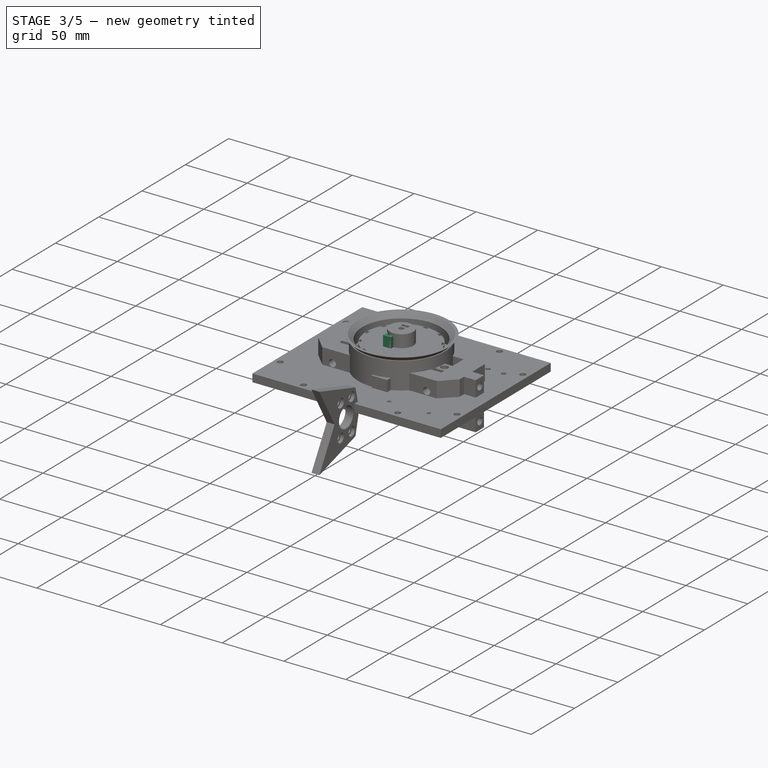
[diagram: stage 3 of 5 — iso view after this stage's code; geometry added in this stage tinted green]
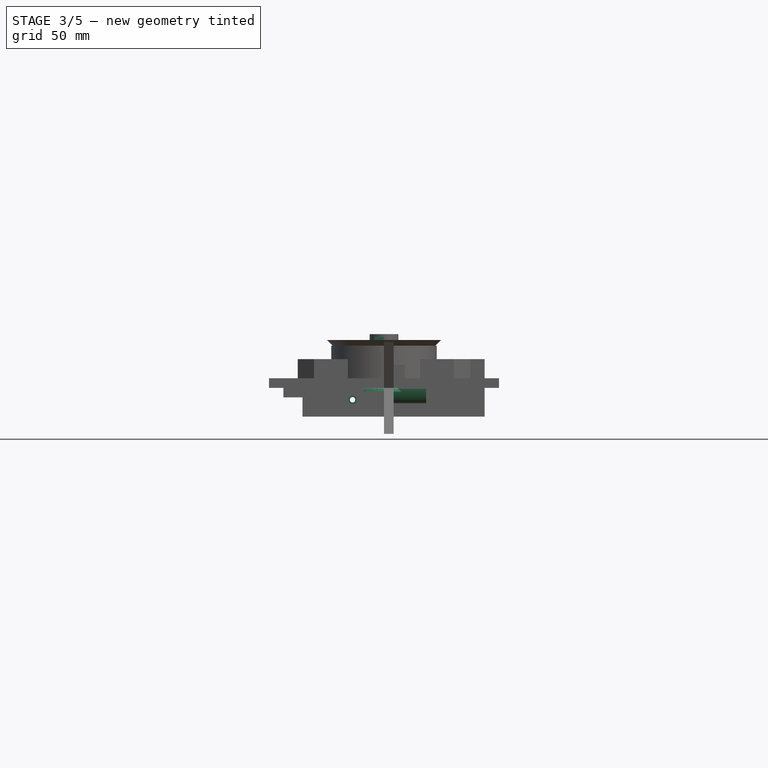
[diagram: stage 3 of 5 — front view after this stage's code; geometry added in this stage tinted green]
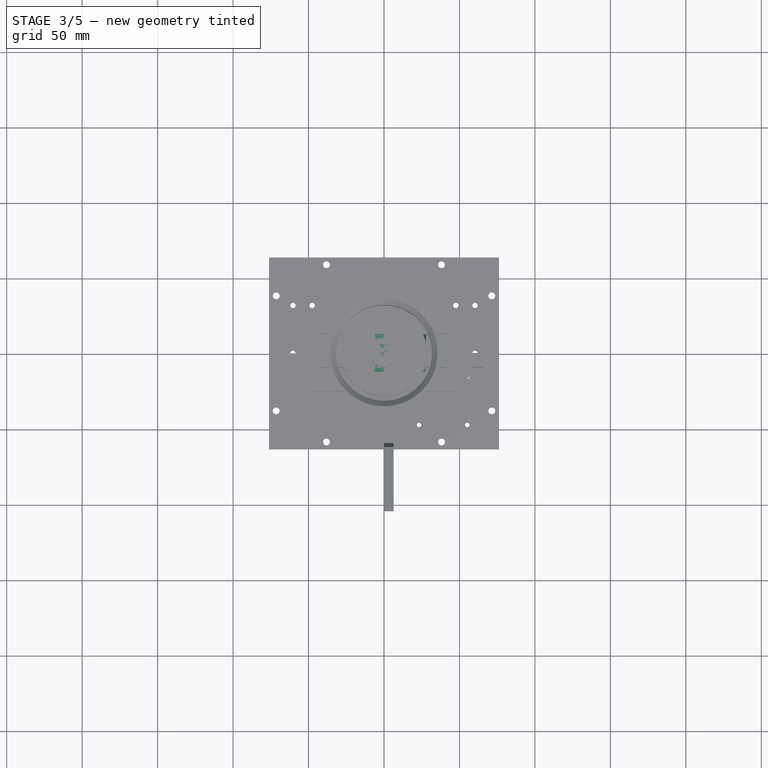
[diagram: stage 3 of 5 — top view after this stage's code; geometry added in this stage tinted green]
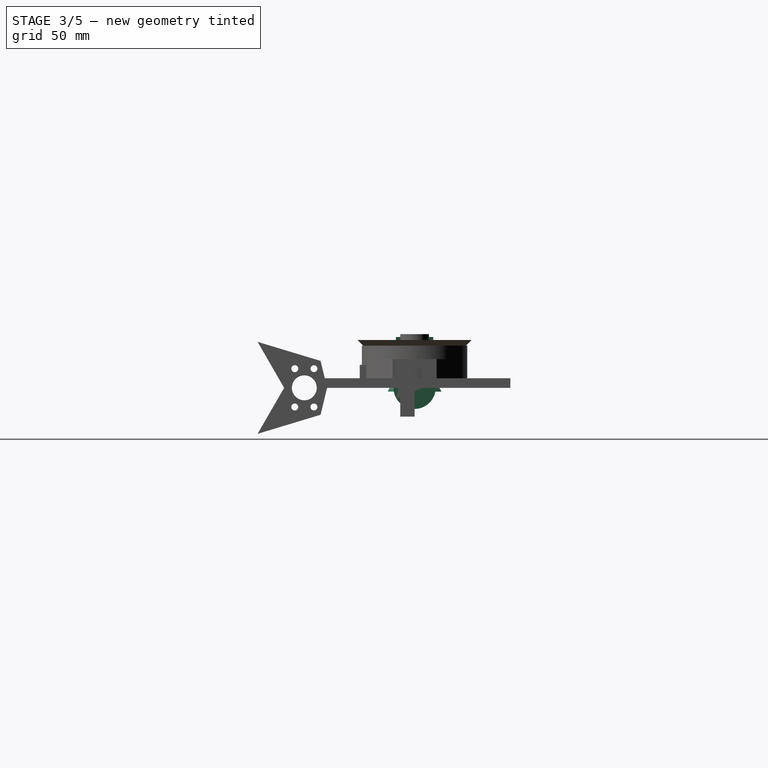
[diagram: stage 3 of 5 — right view after this stage's code; geometry added in this stage tinted green]
FEATURE [PartDesign::Body] Body027  label="motor-mount-top"
  Group = -> [Sketch069,Pad034,Sketch070,Pocket004,Sketch071,Pocket005]
  Origin = -> Origin027
  Placement = pos=(-17.78,40.132,16.256) rot=(0,0,1;0rad)
  Tip = -> Pocket005
FEATURE [Sketcher::SketchObject] Sketch072
  AttachmentSupport = -> [YZ_Plane028]
  FullyConstrained = true
  MapMode = 5
  Placement = pos=(0,0,0) rot=(0.57735,0.57735,0.57735;2.0944rad)
  sketch-geometry (1):
    g0: Circle CenterX=0 CenterY=0 CenterZ=0 NormalX=0 NormalY=0 NormalZ=1 AngleXU=0 Radius=13.97
  constraints (2):
    c: Coincident(g0,g-1)
    c: Diameter(g0) = 27.94
FEATURE [PartDesign::Pad] Pad035
  Direction = (1,0,0)
  Length = 27.94
  Length2 = 10
  Placement = pos=(0,0,0) rot=(0.57735,0.57735,0.57735;2.0944rad)
  Profile = -> Sketch072
  ReferenceAxis = -> Sketch072 [N_Axis]
  Refine = true
  Suppressed = false
  Type = 0
FEATURE [PartDesign::Chamfer] Chamfer
  Angle = 15
  Base = -> Pad035 [Edge2]
  BaseFeature = -> Pad035
  ChamferType = 2
  FlipDirection = false
  Placement = pos=(0,0,0) rot=(0.57735,0.57735,0.57735;2.0944rad)
  Refine = true
  Size = 2.54
  Size2 = 1
  SupportTransform = false
  Suppressed = false
  UseAllEdges = false
FEATURE [Sketcher::SketchObject] Sketch093
  AttachmentSupport = -> [Pocket019]
  FullyConstrained = true
  MapMode = 5
  Placement = pos=(-66.675,0,0) rot=(0.707107,0,-0.707107;3.14159rad)
  expr: Constraints[0] = <<Spreadsheet>>.m4_nut_diameter
  sketch-geometry (1):
    g0: Circle CenterX=0 CenterY=4.7625 CenterZ=0 NormalX=0 NormalY=0 NormalZ=1 AngleXU=0 Radius=2.8575
  constraints (3):
    c: Diameter(g0) = 5.715
    c: DistanceY(g-1,g0) = 4.7625
    c: PointOnObject(g0,g-2)
FEATURE [PartDesign::Pocket] Pocket021  label="right-holes"
  BaseFeature = -> Pocket020
  Direction = (1,0,2e-16)
  Length = 6.096
  Length2 = 5
  Placement = pos=(0,0,0) rot=(1,0,0;1.5708rad)
  Profile = -> Sketch093
  ReferenceAxis = -> Sketch093 [N_Axis]
  Refine = true
  Suppressed = false
  Type = 0
  expr: Length = <<Spreadsheet>>.m4_nut_depth
FEATURE [Part::Feature] beater_bar_driven_pulley001_solid  label="beater_bar_driven_pulley001 (Solid)"
  Placement = pos=(34.925,-53.34,0) rot=(0,0,1;0rad)
  shape: bbox 47.06 x 47.06 x 9.3 mm, 9316 faces (baked)
FEATURE [Part::FeaturePython] TimingGear  label="driven-pulley001"  # WARN: FeaturePython — macro-defined, semantics opaque (R4)
  AttacherType = Attacher::AttachEngine3D
  Placement = pos=(0,46.355,0) rot=(0,0,1;0rad)
  h = 0.75
  height = 6.3
  offset = 0.4
  pitch = 2
  r0 = 0.555
  r1 = 1
  rs = 0.15
  teeth = 48
  type = 0
  u = 0.254
  version = 1.3.0
  expr: height = <<Spreadsheet>>.belt_width
FEATURE [PartDesign::FeatureBase] BaseFeature001
  BaseFeature = -> TimingGear
  Suppressed = false
FEATURE [Sketcher::SketchObject] Sketch105  label="flange-id"
  FullyConstrained = false
  MapMode = 5
  Placement = pos=(0,0,0) rot=(1,0,0;3.14159rad)
  sketch-geometry (1):
    g0: Circle CenterX=0 CenterY=0 CenterZ=0 NormalX=0 NormalY=0 NormalZ=1 AngleXU=0 Radius=14.9617
  constraints (1):
    c: Coincident(g0,g-1)
FEATURE [Sketcher::SketchObject] Sketch106  label="flange-od"
  AttachmentOffset = pos=(0,0,2.54) rot=(0,0,1;0rad)
  FullyConstrained = true
  MapMode = 5
  Placement = pos=(0,0,-2.54) rot=(1,0,0;3.14159rad)
  sketch-geometry (1):
    g0: Circle CenterX=0 CenterY=0 CenterZ=0 NormalX=0 NormalY=0 NormalZ=1 AngleXU=0 Radius=16.51
  constraints (2):
    c: Coincident(g0,g-1)
    c: Diameter(g0) = 33.02
FEATURE [PartDesign::AdditiveLoft] AdditiveLoft  label="flange"
  BaseFeature = -> BaseFeature001
  Closed = false
  Profile = -> Sketch105
  Refine = true
  Ruled = false
  Sections = -> [Sketch106]
  Suppressed = false
FEATURE [PartDesign::Plane] DatumPlane
  AttachmentOffset = pos=(0,0,3.15) rot=(0,0,1;0rad)
  AttachmentSupport = -> [XY_Plane031]
  Length = 59.9999
  MapMode = 5
  Placement = pos=(0,0,3.15) rot=(0,0,1;0rad)
  ResizeMode = 0
  Width = 59.9999
FEATURE [PartDesign::Mirrored] Mirrored
  BaseFeature = -> AdditiveLoft
  MirrorPlane = -> DatumPlane
  Originals = -> [AdditiveLoft]
  Refine = true
  Suppressed = false
FEATURE [Sketcher::SketchObject] Sketch103  label="through-holes002"
  AttachmentSupport = -> [Mirrored]
  FullyConstrained = true
  MapMode = 5
  Placement = pos=(0,0,8.84) rot=(0,0,1;0rad)
  expr: Constraints[5] = <<Spreadsheet>>.m3_clearance
  sketch-geometry (3):
    g0: Circle CenterX=0 CenterY=0 CenterZ=0 NormalX=0 NormalY=0 NormalZ=1 AngleXU=0 Radius=6.35
    g1: Circle CenterX=10.16 CenterY=0 CenterZ=0 NormalX=0 NormalY=0 NormalZ=1 AngleXU=0 Radius=1.778
    g2: Circle CenterX=-10.16 CenterY=0 CenterZ=0 NormalX=0 NormalY=0 NormalZ=1 AngleXU=0 Radius=1.778
  constraints (7):
    c: Coincident(g0,g-1)
    c: PointOnObject(g1,g-1)
    c: Equal(g2,g1)
    c: Diameter(g0) = 12.7
    c: Symmetric(g1,g2,g-2)
    c: Diameter(g1) = 3.556
    c: DistanceX(g2,g1) = 20.32
FEATURE [Sketcher::SketchObject] Sketch104  label="counter-bore"
  AttachmentSupport = -> [Mirrored]
  FullyConstrained = false
  MapMode = 5
  Placement = pos=(0,0,8.84) rot=(0,0,1;0rad)
  expr: Constraints[1] = <<Spreadsheet>>.m3_SHCS_head_d
  sketch-geometry (2):
    g0: Circle CenterX=10.16 CenterY=0 CenterZ=0 NormalX=0 NormalY=0 NormalZ=1 AngleXU=0 Radius=2.794
    g1: Circle CenterX=-10.16 CenterY=0 CenterZ=0 NormalX=0 NormalY=0 NormalZ=1 AngleXU=0 Radius=2.794
  constraints (4):
    c: Equal(g1,g0)
    c: Diameter(g0) = 5.588
    c: DistanceX(g1,g0) = 20.32
    c: Symmetric(g1,g0,g-1)
FEATURE [PartDesign::Pocket] Pocket030  label="through-holes003"
  BaseFeature = -> Mirrored
  Direction = (0,0,-1)
  Length = 5
  Length2 = 5
  Profile = -> Sketch103
  ReferenceAxis = -> Sketch103 [N_Axis]
  Refine = true
  Suppressed = false
  Type = 1
FEATURE [PartDesign::Pocket] Pocket031  label="counter-bore003"
  BaseFeature = -> Pocket030
  Direction = (0,0,-1)
  Length = 4.318
  Length2 = 5
  Profile = -> Sketch104
  ReferenceAxis = -> Sketch104 [N_Axis]
  Refine = true
  Suppressed = false
  Type = 0
  expr: Length = <<Spreadsheet>>.m4_SHCS_head_h
FEATURE [PartDesign::Body] Body031  label="driven-pulley"
  BaseFeature = -> TimingGear
  Group = -> [BaseFeature001,Sketch105,Sketch106,AdditiveLoft,DatumPlane,Mirrored,Sketch103,Pocket030,Sketch104,Pocket031]
  Origin = -> Origin031
  Placement = pos=(-120.142,-69.469,2.032) rot=(0.57735,0.57735,0.57735;2.0944rad)
  Tip = -> Pocket031
FEATURE [PartDesign::Plane] DatumPlane001
  AttachmentOffset = pos=(0,0,3.15) rot=(0,0,1;0rad)
  AttachmentSupport = -> [XY_Plane032]
  Length = 59.9999
  MapMode = 5
  Placement = pos=(0,0,3.15) rot=(0,0,1;0rad)
  ResizeMode = 0
  Width = 59.9999
FEATURE [Sketcher::SketchObject] Sketch109  label="flange-id001"
  FullyConstrained = true
  MapMode = 5
  Placement = pos=(0,0,0) rot=(1,0,0;3.14159rad)
  sketch-geometry (1):
    g0: Circle CenterX=0 CenterY=0 CenterZ=0 NormalX=0 NormalY=0 NormalZ=1 AngleXU=0 Radius=16.51
  constraints (2):
    c: Coincident(g0,g-1)
    c: Diameter(g0) = 33.02
FEATURE [Sketcher::SketchObject] Sketch110  label="flange-od001"
  AttachmentOffset = pos=(0,0,2.54) rot=(0,0,1;0rad)
  FullyConstrained = true
  MapMode = 5
  Placement = pos=(0,0,-2.54) rot=(1,0,0;3.14159rad)
  sketch-geometry (1):
    g0: Circle CenterX=0 CenterY=0 CenterZ=0 NormalX=0 NormalY=0 NormalZ=1 AngleXU=0 Radius=17.78
  constraints (2):
    c: Coincident(g0,g-1)
    c: Diameter(g0) = 35.56
FEATURE [Part::FeaturePython] TimingGear001  label="drive-pulley"  # WARN: FeaturePython — macro-defined, semantics opaque (R4)
  AttacherType = Attacher::AttachEngine3D
  Placement = pos=(0,46.355,0) rot=(0,0,1;0rad)
  h = 0.75
  height = 6.3
  offset = 0.4
  pitch = 2
  r0 = 0.555
  r1 = 1
  rs = 0.15
  teeth = 52
  type = 0
  u = 0.254
  version = 1.3.0
  expr: height = <<Spreadsheet>>.belt_width
FEATURE [PartDesign::FeatureBase] BaseFeature002
  BaseFeature = -> TimingGear001
  Suppressed = false
FEATURE [PartDesign::AdditiveLoft] AdditiveLoft001  label="flange001"
  BaseFeature = -> BaseFeature002
  Closed = false
  Profile = -> Sketch109
  Refine = true
  Ruled = false
  Sections = -> [Sketch110]
  Suppressed = false
FEATURE [PartDesign::Mirrored] Mirrored001
  BaseFeature = -> AdditiveLoft001
  MirrorPlane = -> DatumPlane001
  Originals = -> [AdditiveLoft001]
  Refine = true
  Suppressed = false
FEATURE [Sketcher::SketchObject] Sketch107  label="through-holes005"
  AttachmentSupport = -> [Mirrored001]
  FullyConstrained = true
  MapMode = 5
  Placement = pos=(0,0,-2.54) rot=(1,0,0;3.14159rad)
  expr: Constraints[5] = <<Spreadsheet>>.m2_clearance
  sketch-geometry (5):
    g0: Circle CenterX=0 CenterY=0 CenterZ=0 NormalX=0 NormalY=0 NormalZ=1 AngleXU=0 Radius=1.778
    g1: Circle CenterX=6.0325 CenterY=0 CenterZ=0 NormalX=0 NormalY=0 NormalZ=1 AngleXU=0 Radius=1.25
    g2: Circle CenterX=-6.0325 CenterY=0 CenterZ=0 NormalX=0 NormalY=0 NormalZ=1 AngleXU=0 Radius=1.25
    g3: Circle CenterX=0 CenterY=6.0325 CenterZ=0 NormalX=0 NormalY=0 NormalZ=1 AngleXU=0 Radius=1.25
    g4: Circle CenterX=0 CenterY=-6.0325 CenterZ=0 NormalX=0 NormalY=0 NormalZ=1 AngleXU=0 Radius=1.25
  constraints (12):
    c: Coincident(g0,g-1)
    c: PointOnObject(g1,g-1)
    c: Equal(g2,g1)
    c: Diameter(g0) = 3.556
    c: Symmetric(g1,g2,g-2)
    c: Diameter(g1) = 2.5
    c: DistanceX(g2,g1) = 12.065
    c: PointOnObject(g3,g-2)
    c: Equal(g4,g3)
    c: Equal(g3,g1)
    c: DistanceY(g4,g3) = 12.065
    c: Symmetric(g3,g4,g0)
FEATURE [PartDesign::Pocket] Pocket032  label="through-holes004"
  BaseFeature = -> Mirrored001
  Direction = (0,0,1)
  Length = 5
  Length2 = 5
  Profile = -> Sketch107
  ReferenceAxis = -> Sketch107 [N_Axis]
  Refine = true
  Suppressed = false
  Type = 1
FEATURE [Sketcher::SketchObject] Sketch108  label="counter-bore001"
  AttachmentSupport = -> [Mirrored001]
  FullyConstrained = true
  MapMode = 5
  Placement = pos=(0,0,-2.54) rot=(1,0,0;3.14159rad)
  expr: Constraints[1] = <<Spreadsheet>>.m3_SHCS_head_d
  sketch-geometry (4):
    g0: Circle CenterX=6.0325 CenterY=0 CenterZ=0 NormalX=0 NormalY=0 NormalZ=1 AngleXU=0 Radius=2.794
    g1: Circle CenterX=-6.0325 CenterY=0 CenterZ=0 NormalX=0 NormalY=0 NormalZ=1 AngleXU=0 Radius=2.794
    g2: Circle CenterX=0 CenterY=6.0325 CenterZ=0 NormalX=0 NormalY=0 NormalZ=1 AngleXU=0 Radius=2.794
    g3: Circle CenterX=0 CenterY=-6.0325 CenterZ=0 NormalX=0 NormalY=0 NormalZ=1 AngleXU=0 Radius=2.794
  constraints (10):
    c: Equal(g1,g0)
    c: Diameter(g0) = 5.588
    c: DistanceX(g1,g0) = 12.065
    c: Symmetric(g0,g1,g-1)
    c: PointOnObject(g2,g-2)
    c: Equal(g3,g2)
    c: Equal(g2,g0)
    c: Symmetric(g3,g2,g-1)
    c: DistanceY(g3,g2) = 12.065
    c: PointOnObject(g0,g-1)
FEATURE [PartDesign::Pocket] Pocket033  label="counter-bore002"
  BaseFeature = -> Pocket032
  Direction = (0,0,1)
  Length = 3.048
  Length2 = 5
  Profile = -> Sketch108
  ReferenceAxis = -> Sketch108 [N_Axis]
  Refine = true
  Suppressed = false
  Type = 0
  expr: Length = <<Spreadsheet>>.m3_SHCS_head_h
FEATURE [PartDesign::Body] Body032  label="drive-pulley001"
  BaseFeature = -> TimingGear001
  Group = -> [BaseFeature002,Sketch109,Sketch110,AdditiveLoft001,DatumPlane001,Mirrored001,Sketch107,Pocket032,Sketch108,Pocket033]
  Origin = -> Origin032
  Placement = pos=(50.927,0,39.116) rot=(0,0,1;0rad)
  Tip = -> Pocket033
FEATURE [Sketcher::SketchObject] Sketch028
  AttachmentSupport = -> [YZ_Plane010]
  FullyConstrained = false
  MapMode = 5
  Placement = pos=(0,0,0) rot=(0.57735,0.57735,0.57735;2.0944rad)
  sketch-geometry (13):
    g0: LineSegment StartX=12.3825 StartY=0 StartZ=0 EndX=-12.3825 EndY=0 EndZ=0
    g1: LineSegment StartX=-12.3825 StartY=0 StartZ=0 EndX=-12.3825 EndY=33.655 EndZ=0
    g2: LineSegment StartX=-12.3825 StartY=33.655 StartZ=0 EndX=-1.4605 EndY=33.655 EndZ=0
    g3: LineSegment StartX=12.3825 StartY=33.655 StartZ=0 EndX=12.3825 EndY=0 EndZ=0
    g4: Circle CenterX=0 CenterY=24.003 CenterZ=0 NormalX=0 NormalY=0 NormalZ=1 AngleXU=0 Radius=1.75
    g5: Circle CenterX=8.0645 CenterY=14.478 CenterZ=0 NormalX=0 NormalY=0 NormalZ=1 AngleXU=0 Radius=1.75
    g6: Circle CenterX=0 CenterY=4.953 CenterZ=0 NormalX=0 NormalY=0 NormalZ=1 AngleXU=0 Radius=1.75
    g7: Circle CenterX=-8.0645 CenterY=14.478 CenterZ=0 NormalX=0 NormalY=0 NormalZ=1 AngleXU=0 Radius=1.75
    g8: LineSegment StartX=-27.7635 StartY=14.478 StartZ=0 EndX=22.2639 EndY=14.478 EndZ=0
    g9: Circle CenterX=0 CenterY=14.478 CenterZ=0 NormalX=0 NormalY=0 NormalZ=1 AngleXU=0 Radius=4.318
    g10: LineSegment StartX=1.4605 StartY=33.655 StartZ=0 EndX=0 EndY=33.2197 EndZ=0
    g11: LineSegment StartX=-1.4605 StartY=33.655 StartZ=0 EndX=0 EndY=33.2197 EndZ=0
    g12: LineSegment StartX=1.4605 StartY=33.655 StartZ=0 EndX=12.3825 EndY=33.655 EndZ=0
  constraints (35):
    c: Coincident(g0,g1)
    c: Coincident(g12,g3)
    c: Coincident(g3,g0)
    c: Horizontal(g2)
    c: Vertical(g1)
    c: Vertical(g3)
    c: PointOnObject(g0,g-1)
    c: Equal(g4,g5)
    c: Equal(g5,g6)
    c: Equal(g6,g7)
    c: DistanceY(g6,g4) = 19.05
    c: DistanceX(g7,g5) = 16.129
    c: Symmetric(g7,g5,g-2)
    c: Tangent(g6,g-2) = -1.5708
    c: Tangent(g4,g-2) = -1.5708
    c: Diameter(g5) = 3.5
    c: PointOnObject(g7,g8)
    c: Symmetric(g6,g4,g8)
    c: DistanceY(g-1,g8) = 14.478
    c: PointOnObject(g9,g8)
    c: PointOnObject(g9,g-2)
    c: Diameter(g9) = 8.636
    c: DistanceX(g0,g0) = 24.765
    c: Symmetric(g0,g0,g-2)
    c: DistanceY(g3,g3) = 33.655
    c: Coincident(g1,g2)
    c: PointOnObject(g10,g-2)
    c: Coincident(g10,g11)
    c: Equal(g11,g10)
    c: Coincident(g2,g11)
    c: Coincident(g12,g10)
    c: Equal(g12,g2)
    c: DistanceX(g2,g2) = 10.922
    c: Distance(g11) = 1.524
    c: Horizontal(g12)
FEATURE [PartDesign::Pad] Pad017  label="motor-holes"
  Direction = (1,0,0)
  Length = 6.35
  Length2 = 10
  Placement = pos=(0,0,0) rot=(0.57735,0.57735,0.57735;2.0944rad)
  Profile = -> Sketch028
  ReferenceAxis = -> Sketch028 [N_Axis]
  Reversed = true
  Suppressed = false
  Type = 0
FEATURE [Sketcher::SketchObject] Sketch036
  AttachmentSupport = -> [Pad017]
  ExternalGeometry = -> [Pad017,Sketch028]
  FullyConstrained = false
  MapMode = 5
  Placement = pos=(0,7.5e-15,33.655) rot=(0,0,-1;1.5708rad)
  expr: Constraints[2] = <<Spreadsheet>>.m3_nut_diameter
  sketch-geometry (3):
    g0: LineSegment StartX=-16.5667 StartY=-3.175 StartZ=0 EndX=20.3406 EndY=-3.175 EndZ=0
    g1: Circle CenterX=-7.9375 CenterY=-3.175 CenterZ=0 NormalX=0 NormalY=0 NormalZ=1 AngleXU=0 Radius=2.286
    g2: Circle CenterX=7.9375 CenterY=-3.175 CenterZ=0 NormalX=0 NormalY=0 NormalZ=1 AngleXU=0 Radius=2.286
  constraints (6):
    c: PointOnObject(g1,g0)
    c: Equal(g2,g1)
    c: Diameter(g1) = 4.572
    c: Symmetric(g1,g2,g-2)
    c: Symmetric(g-4,g-3,g0)
    c: DistanceX(g1,g2) = 15.875
FEATURE [PartDesign::Pocket] Pocket034  label="bot-insert-nuts"
  BaseFeature = -> Pad017
  Direction = (0,0,-1)
  Length = 6.35
  Length2 = 5
  Placement = pos=(0,0,0) rot=(0.57735,0.57735,0.57735;2.0944rad)
  Profile = -> Sketch036
  ReferenceAxis = -> Sketch036 [N_Axis]
  Suppressed = false
  Type = 0
FEATURE [PartDesign::Body] Body010  label="brushless_motor_mount"
  Group = -> [Sketch028,Pad017,Sketch036,Pocket034]
  Origin = -> Origin010
  Placement = pos=(-24.13,-5.33,0) rot=(0,0,1;0rad)
  Tip = -> Pocket034
FEATURE [Sketcher::SketchObject] Sketch111  label="weapon-mount-holes"
  AttachmentSupport = -> [Pocket021]
  ExternalGeometry = -> [Pocket021,Sketch005]
  FullyConstrained = true
  MapMode = 5
  Placement = pos=(0,-9.525,4.2e-15) rot=(1,0,0;1.5708rad)
  expr: Constraints[2] = <<Spreadsheet>>.m3_clearance
  sketch-geometry (2):
    g0: Circle CenterX=-20.828 CenterY=7.9375 CenterZ=0 NormalX=0 NormalY=0 NormalZ=1 AngleXU=0 Radius=1.778
    g1: Circle CenterX=-20.828 CenterY=-7.9375 CenterZ=0 NormalX=0 NormalY=0 NormalZ=1 AngleXU=0 Radius=1.778
  constraints (6):
    c: DistanceY(g1,g0) = 15.875
    c: Symmetric(g0,g1,g-1)
    c: Diameter(g1) = 3.556
    c: Equal(g0,g1)
    c: DistanceX(g0,g-1) = 20.828
    c: DistanceX(g-3,g0) = 33.147
FEATURE [PartDesign::Pocket] Pocket035  label="weapon-mnt-holes"
  BaseFeature = -> Pocket021
  Direction = (0,1,-2e-16)
  Length = 5
  Length2 = 5
  Placement = pos=(0,0,0) rot=(1,0,0;1.5708rad)
  Profile = -> Sketch111
  ReferenceAxis = -> Sketch111 [N_Axis]
  Refine = true
  Suppressed = false
  Type = 1
FEATURE [Sketcher::SketchObject] Sketch112  label="weapon-holes-countersink"
  AttachmentSupport = -> [Pocket035]
  ExternalGeometry = -> [Pocket035]
  FullyConstrained = true
  MapMode = 5
  Placement = pos=(0,-9.525,4.2e-15) rot=(1,0,0;1.5708rad)
  expr: Constraints[1] = <<Spreadsheet>>.m3_SHCS_head_d
  sketch-geometry (2):
    g0: Circle CenterX=-20.828 CenterY=7.9375 CenterZ=0 NormalX=0 NormalY=0 NormalZ=1 AngleXU=0 Radius=2.794
    g1: Circle CenterX=-20.828 CenterY=-7.9375 CenterZ=0 NormalX=0 NormalY=0 NormalZ=1 AngleXU=0 Radius=2.794
  constraints (5):
    c: Equal(g1,g0)
    c: Diameter(g0) = 5.588
    c: DistanceY(g1,g0) = 15.875
    c: DistanceX(g0,g-1) = 20.828
    c: Symmetric(g1,g0,g-1)
FEATURE [PartDesign::Pocket] Pocket036  label="countersink001"
  BaseFeature = -> Pocket035
  Direction = (0,1,-2e-16)
  Length = 3.048
  Length2 = 5
  Placement = pos=(0,0,0) rot=(1,0,0;1.5708rad)
  Profile = -> Sketch112
  ReferenceAxis = -> Sketch112 [N_Axis]
  Refine = true
  Suppressed = false
  Type = 0
  expr: Length = <<Spreadsheet>>.m3_SHCS_head_h
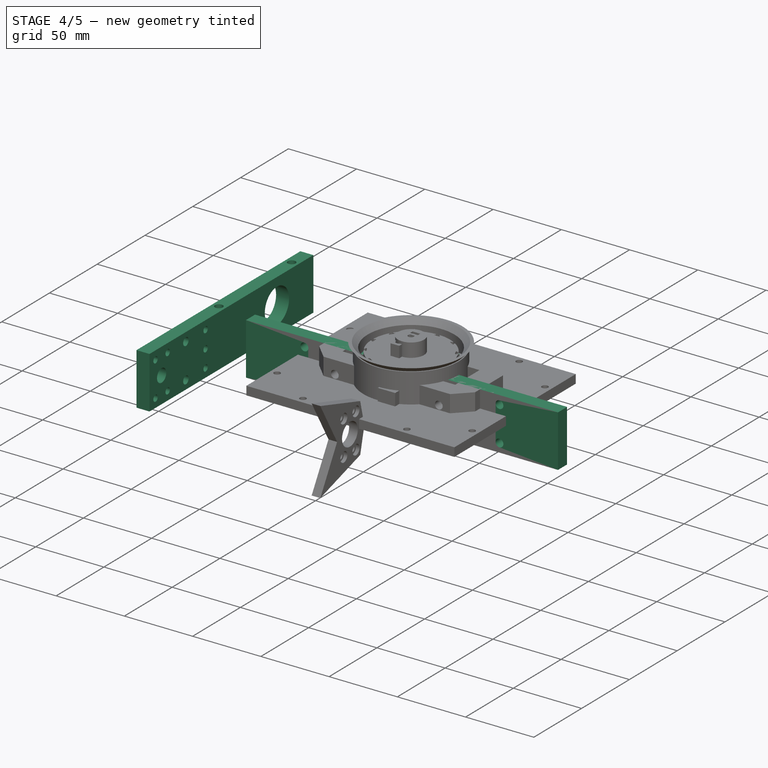
[diagram: stage 4 of 5 — iso view after this stage's code; geometry added in this stage tinted green]
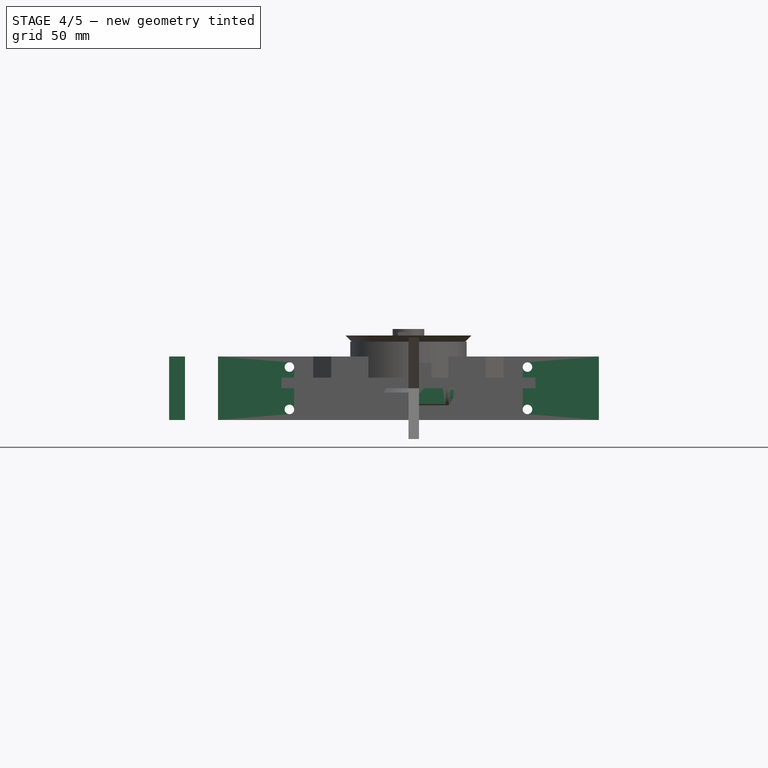
[diagram: stage 4 of 5 — front view after this stage's code; geometry added in this stage tinted green]
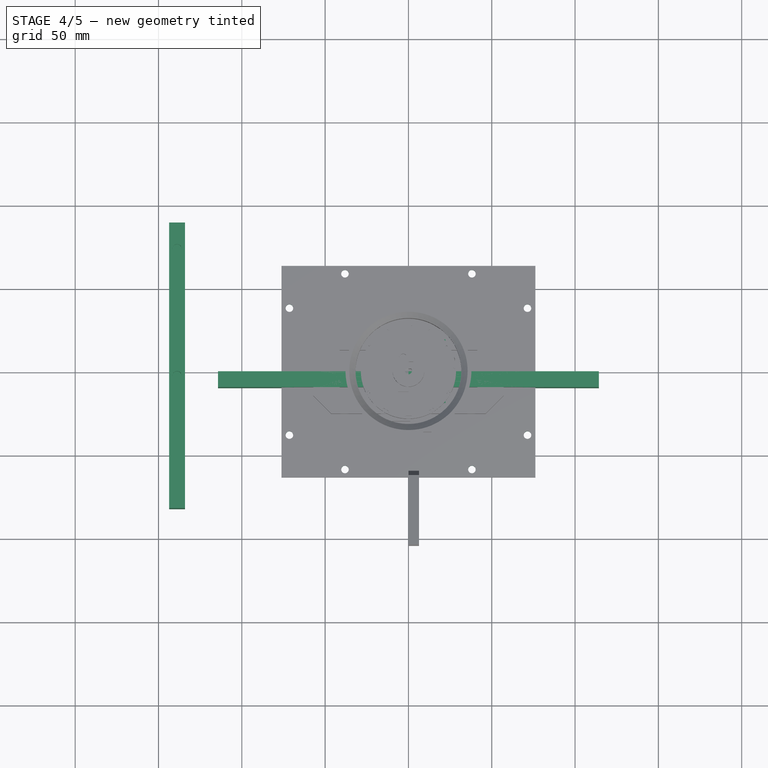
[diagram: stage 4 of 5 — top view after this stage's code; geometry added in this stage tinted green]
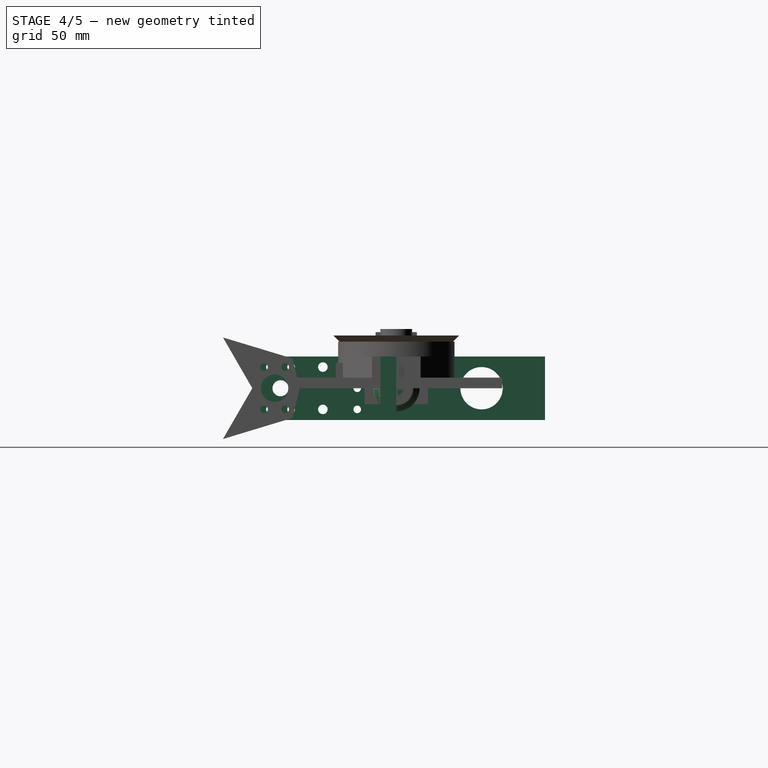
[diagram: stage 4 of 5 — right view after this stage's code; geometry added in this stage tinted green]
FEATURE [Sketcher::SketchObject] Sketch
  AttachmentSupport = -> [YZ_Plane]
  FullyConstrained = true
  MapMode = 5
  Placement = pos=(0,0,0) rot=(0.57735,0.57735,0.57735;2.0944rad)
  expr: Constraints[15] = <<Spreadsheet>>.m3_nut_diameter
  expr: Constraints[21] = <<Spreadsheet>>.m4_clearance
  expr: Constraints[28] = <<Spreadsheet>>.m4_nut_diameter
  expr: Constraints[9] = <<Spreadsheet>>.bot_height
  sketch-geometry (15):
    g0: LineSegment StartX=-85.725 StartY=19.05 StartZ=0 EndX=-85.725 EndY=-19.05 EndZ=0
    g1: LineSegment StartX=-85.725 StartY=-19.05 StartZ=0 EndX=85.725 EndY=-19.05 EndZ=0
    g2: LineSegment StartX=85.725 StartY=-19.05 StartZ=0 EndX=85.725 EndY=19.05 EndZ=0
    g3: LineSegment StartX=85.725 StartY=19.05 StartZ=0 EndX=-85.725 EndY=19.05 EndZ=0
    g4: Circle CenterX=-73.025 CenterY=0 CenterZ=0 NormalX=0 NormalY=0 NormalZ=1 AngleXU=0 Radius=4.826
    g5: Circle CenterX=-26.9875 CenterY=12.7 CenterZ=0 NormalX=0 NormalY=0 NormalZ=1 AngleXU=0 Radius=2.286
    g6: Circle CenterX=-26.9875 CenterY=-12.7 CenterZ=0 NormalX=0 NormalY=0 NormalZ=1 AngleXU=0 Radius=2.286
    g7: Circle CenterX=47.625 CenterY=0 CenterZ=0 NormalX=0 NormalY=0 NormalZ=1 AngleXU=0 Radius=12.7
    g8: Circle CenterX=-79.375 CenterY=-12.7 CenterZ=0 NormalX=0 NormalY=0 NormalZ=1 AngleXU=0 Radius=2.286
    g9: Circle CenterX=-66.675 CenterY=-12.7 CenterZ=0 NormalX=0 NormalY=0 NormalZ=1 AngleXU=0 Radius=2.286
    g10: Circle CenterX=-47.625 CenterY=12.7 CenterZ=0 NormalX=0 NormalY=0 NormalZ=1 AngleXU=0 Radius=2.8575
    g11: Circle CenterX=-47.625 CenterY=-12.7 CenterZ=0 NormalX=0 NormalY=0 NormalZ=1 AngleXU=0 Radius=2.8575
    g12: Circle CenterX=-26.9875 CenterY=0 CenterZ=0 NormalX=0 NormalY=0 NormalZ=1 AngleXU=0 Radius=2.286
    g13: Circle CenterX=-79.375 CenterY=12.7 CenterZ=0 NormalX=0 NormalY=0 NormalZ=1 AngleXU=0 Radius=2.286
    g14: Circle CenterX=-66.675 CenterY=12.7 CenterZ=0 NormalX=0 NormalY=0 NormalZ=1 AngleXU=0 Radius=2.286
  constraints (41):
    c: Coincident(g0,g1)
    c: Coincident(g1,g2)
    c: Coincident(g2,g3)
    c: Coincident(g3,g0)
    c: Vertical(g0)
    c: Vertical(g2)
    c: Horizontal(g1)
    c: Horizontal(g3)
    c: Symmetric(g1,g0,g-1)
    c: DistanceY(g2,g2) = 38.1
    c: PointOnObject(g4,g-1)
    c: PointOnObject(g7,g-1)
    c: Equal(g5,g6)
    c: Diameter(g4) = 9.652
    c: Equal(g9,g8)
    c: Diameter(g8) = 4.572
    c: DistanceX(g0,g8) = 6.35
    c: DistanceY(g0,g8) = 6.35
    c: DistanceX(g0,g4) = 12.7
    c: Horizontal(g9,g8)
    c: DistanceX(g8,g9) = 12.7
    c: Diameter(g6) = 4.572
    c: DistanceX(g5,g2) = 112.713
    c: Symmetric(g5,g6,g-1)
    c: DistanceY(g6,g5) = 25.4
    c: Equal(g11,g10)
    c: DistanceX(g10,g2) = 133.35
    c: Symmetric(g11,g10,g-1)
    c: Diameter(g10) = 5.715
    c: Diameter(g7) = 25.4
    c: DistanceX(g7,g1) = 38.1
    c: DistanceY(g11,g10) = 25.4
    c: PointOnObject(g12,g-1)
    c: Vertical(g12,g5)
    c: Equal(g12,g5)
    c: DistanceX(g1,g1) = 171.45
    c: Equal(g14,g13)
    c: Equal(g13,g8)
    c: Vertical(g14,g9)
    c: Horizontal(g13,g14)
    c: Symmetric(g13,g8,g-1)
FEATURE [PartDesign::Pad] Pad
  Direction = (1,0,0)
  Length = 9.525
  Length2 = 10
  Placement = pos=(0,0,0) rot=(0.57735,0.57735,0.57735;2.0944rad)
  Profile = -> Sketch
  ReferenceAxis = -> Sketch [N_Axis]
  Refine = true
  Suppressed = false
  Type = 0
FEATURE [Sketcher::SketchObject] Sketch001
  AttachmentSupport = -> [Pad]
  FullyConstrained = false
  MapMode = 5
  Placement = pos=(1.9e-14,85.725,0) rot=(0.57735,0.57735,0.57735;4.18879rad)
  expr: Constraints[2] = <<Spreadsheet>>.m4_nut_diameter
  sketch-geometry (2):
    g0: Circle CenterX=12.7 CenterY=4.74788 CenterZ=0 NormalX=0 NormalY=0 NormalZ=1 AngleXU=0 Radius=2.8575
    g1: Circle CenterX=-12.7 CenterY=4.74788 CenterZ=0 NormalX=0 NormalY=0 NormalZ=1 AngleXU=0 Radius=2.8575
  constraints (4):
    c: Equal(g1,g0)
    c: Symmetric(g0,g1,g-2)
    c: Diameter(g0) = 5.715
    c: DistanceX(g-1,g0) = 12.7
FEATURE [PartDesign::Pocket] Pocket  label="rear_screws"
  BaseFeature = -> Pad
  Direction = (0,-1,0)
  Length = 6.096
  Length2 = 5
  Placement = pos=(0,0,0) rot=(0.57735,0.57735,0.57735;2.0944rad)
  Profile = -> Sketch001
  ReferenceAxis = -> Sketch001 [N_Axis]
  Refine = true
  Suppressed = false
  Type = 0
  expr: Length = <<Spreadsheet>>.m4_nut_depth
FEATURE [Sketcher::SketchObject] Sketch006
  AttachmentSupport = -> [XZ_Plane004]
  FullyConstrained = true
  MapMode = 5
  Placement = pos=(0,0,0) rot=(1,0,0;1.5708rad)
  expr: Constraints[27] = <<Spreadsheet>>.m4_nut_diameter
  expr: Constraints[9] = <<Spreadsheet>>.bot_height
  sketch-geometry (10):
    g0: LineSegment StartX=-114.3 StartY=19.05 StartZ=0 EndX=-114.3 EndY=-19.05 EndZ=0
    g1: LineSegment StartX=-114.3 StartY=-19.05 StartZ=0 EndX=114.3 EndY=-19.05 EndZ=0
    g2: LineSegment StartX=114.3 StartY=-19.05 StartZ=0 EndX=114.3 EndY=19.05 EndZ=0
    g3: LineSegment StartX=114.3 StartY=19.05 StartZ=0 EndX=-114.3 EndY=19.05 EndZ=0
    g4: LineSegment StartX=-71.4375 StartY=19.05 StartZ=0 EndX=-71.4375 EndY=-19.05 EndZ=0
    g5: LineSegment StartX=71.4375 StartY=19.05 StartZ=0 EndX=71.4375 EndY=-19.05 EndZ=0
    g6: Circle CenterX=-71.4375 CenterY=12.7 CenterZ=0 NormalX=0 NormalY=0 NormalZ=1 AngleXU=0 Radius=2.8575
    g7: Circle CenterX=-71.4375 CenterY=-12.7 CenterZ=0 NormalX=0 NormalY=0 NormalZ=1 AngleXU=0 Radius=2.8575
    g8: Circle CenterX=71.4375 CenterY=-12.7 CenterZ=0 NormalX=0 NormalY=0 NormalZ=1 AngleXU=0 Radius=2.8575
    g9: Circle CenterX=71.4375 CenterY=12.7 CenterZ=0 NormalX=0 NormalY=0 NormalZ=1 AngleXU=0 Radius=2.8575
  constraints (30):
    c: Coincident(g0,g1)
    c: Coincident(g1,g2)
    c: Coincident(g2,g3)
    c: Coincident(g3,g0)
    c: Vertical(g0)
    c: Vertical(g2)
    c: Horizontal(g1)
    c: Horizontal(g3)
    c: Symmetric(g1,g0,g-1)
    c: DistanceY(g2,g2) = 38.1
    c: DistanceX(g3,g3) = 228.6
    c: PointOnObject(g4,g3)
    c: PointOnObject(g4,g1)
    c: Vertical(g4)
    c: PointOnObject(g5,g3)
    c: PointOnObject(g5,g1)
    c: Vertical(g5)
    c: Distance(g0,g4) = 42.8625
    c: Distance(g2,g5) = 42.8625
    c: PointOnObject(g6,g4)
    c: PointOnObject(g7,g4)
    c: PointOnObject(g8,g5)
    c: Equal(g8,g9)
    c: Equal(g9,g6)
    c: Equal(g6,g7)
    c: Horizontal(g7,g8)
    c: Horizontal(g9,g6)
    c: Diameter(g9) = 5.715
    c: Symmetric(g8,g9,g-1)
    c: Distance(g9,g-1) = 12.7
FEATURE [PartDesign::Pad] Pad004
  Direction = (0,-1,2e-16)
  Length = 9.525
  Length2 = 10
  Placement = pos=(0,0,0) rot=(1,0,0;1.5708rad)
  Profile = -> Sketch006
  ReferenceAxis = -> Sketch006 [N_Axis]
  Refine = true
  Suppressed = false
  Type = 0
FEATURE [Sketcher::SketchObject] Sketch007
  AttachmentSupport = -> [XY_Plane007]
  FullyConstrained = true
  MapMode = 5
  sketch-geometry (4):
    g0: LineSegment StartX=-76.2 StartY=63.5 StartZ=0 EndX=-76.2 EndY=-63.5 EndZ=0
    g1: LineSegment StartX=-76.2 StartY=-63.5 StartZ=0 EndX=76.2 EndY=-63.5 EndZ=0
    g2: LineSegment StartX=76.2 StartY=-63.5 StartZ=0 EndX=76.2 EndY=63.5 EndZ=0
    g3: LineSegment StartX=76.2 StartY=63.5 StartZ=0 EndX=-76.2 EndY=63.5 EndZ=0
  constraints (11):
    c: Coincident(g0,g1)
    c: Coincident(g1,g2)
    c: Coincident(g2,g3)
    c: Coincident(g3,g0)
    c: Vertical(g0)
    c: Vertical(g2)
    c: Horizontal(g1)
    c: Horizontal(g3)
    c: Symmetric(g2,g0,g-1)
    c: DistanceX(g3,g3) = 152.4
    c: DistanceY(g2,g2) = 127
FEATURE [PartDesign::Pad] Pad005
  Direction = (0,0,1)
  Length = 6.35
  Length2 = 10
  Profile = -> Sketch007
  ReferenceAxis = -> Sketch007 [N_Axis]
  Refine = true
  Suppressed = false
  Type = 0
FEATURE [PartDesign::Body] Body025  label="ESC"
  Group = -> [Sketch064,Pad031]
  Origin = -> Origin025
  Placement = pos=(-30.7086,17.8308,-22.7838) rot=(0,0,1;0rad)
  Tip = -> Pad031
FEATURE [Sketcher::SketchObject] Sketch065
  AttachmentSupport = -> [YZ_Plane026]
  FullyConstrained = true
  MapMode = 5
  Placement = pos=(0,0,0) rot=(0.57735,0.57735,0.57735;2.0944rad)
  expr: Constraints[17] = <<Spreadsheet>>.bot_height / 2
  expr: Constraints[9] = <<Spreadsheet>>.motor_diameter / 2
  sketch-geometry (6):
    g0: LineSegment StartX=-19.05 StartY=9.525 StartZ=0 EndX=-19.05 EndY=-9.525 EndZ=0
    g1: LineSegment StartX=-19.05 StartY=-9.525 StartZ=0 EndX=19.05 EndY=-9.525 EndZ=0
    g2: LineSegment StartX=19.05 StartY=-9.525 StartZ=0 EndX=19.05 EndY=9.525 EndZ=0
    g3: LineSegment StartX=19.05 StartY=9.525 StartZ=0 EndX=12.375 EndY=9.525 EndZ=0
    g4: ArcOfCircle CenterX=0 CenterY=9.525 CenterZ=0 NormalX=0 NormalY=0 NormalZ=1 AngleXU=0 Radius=12.375 StartAngle=3.14159 EndAngle=6.28319
    g5: LineSegment StartX=-12.375 StartY=9.525 StartZ=0 EndX=-19.05 EndY=9.525 EndZ=0
  constraints (18):
    c: Coincident(g0,g1)
    c: Coincident(g1,g2)
    c: Coincident(g2,g3)
    c: Coincident(g5,g0)
    c: Vertical(g0)
    c: Vertical(g2)
    c: Horizontal(g1)
    c: Horizontal(g3)
    c: Symmetric(g1,g0,g-1)
    c: Radius(g4) = 12.375
    c: Distance(g3,g5) = 38.1
    c: PointOnObject(g4,g3)
    c: Coincident(g3,g4)
    c: Coincident(g5,g4)
    c: PointOnObject(g4,g-2)
    c: Horizontal(g4,g4)
    c: Horizontal(g5)
    c: DistanceY(g2,g2) = 19.05
FEATURE [PartDesign::Pad] Pad032
  Direction = (1,0,0)
  Length = 19.05
  Length2 = 10
  Placement = pos=(0,0,0) rot=(0.57735,0.57735,0.57735;2.0944rad)
  Profile = -> Sketch065
  ReferenceAxis = -> Sketch065 [N_Axis]
  Refine = true
  Suppressed = false
  Type = 0
  expr: Length = <<Spreadsheet>>.gearbox_length
FEATURE [Spreadsheet::Sheet] Spreadsheet
  cells = A1='motor diameter; B1(motor_diameter)==24.75 mm; A2='m3 insert nut diameter; B2(m3_nut_diameter)==0.18 in; A3='m3 insert nut depth; B3(m3_nut_depth)==0.245 in; A4='m3 clearance diameter; B4(m3_clearance)==0.14 in; A5='m3 plastic thread; B5(m3_plastic_thread)==2.9 mm; A6='drive motor gearbox length; B6(gearbox_length)==0.75 in; A7='m3 SHCS head diameter; B7(m3_SHCS_head_d)==0.22 in; A8='m3 SHCS head height; B8(m3_SHCS_head_h)==0.12 in; A9='m4 insert nut diameter; B9(m4_nut_diameter)==0.225 in; A10='m4 insert nut depth; B10(m4_nut_depth)==0.24 in; A11='m4 clearance diameter; B11(m4_clearance)==0.18 in; A12='m4 SHCS head diameter; B12(m4_SHCS_head_d)==0.29 in; A13='m4 SHCS head height; B13(m4_SHCS_head_h)==0.17 in; A14='robot height; B14(bot_height)==1.5 in; A15='beater bearing; B15='SCE68 Needle Roller Bearings; A16='bearing ID; B16(bearing_id)==0.375 in; A17='bearing OD; B17(bearing_od)==0.5625 in; A18='bearing width; B18(bearing_width)==0.5 in; A19='belt width; B19(belt_width)==6.3 mm; A20='small brushless motor face bolts; B20='M2; A21='small brushless motor mount bolts; B21='M3; A22='m2 clearance; B22(m2_clearance)==2.5 mm
FEATURE [Sketcher::SketchObject] Sketch066  label="holes"
  AttachmentSupport = -> [Pad032]
  FullyConstrained = true
  MapMode = 5
  Placement = pos=(0,2.1e-15,9.525) rot=(0,0,-1;1.5708rad)
  expr: Constraints[6] = <<Spreadsheet>>.m3_nut_diameter
  sketch-geometry (4):
    g0: Circle CenterX=15.875 CenterY=15.875 CenterZ=0 NormalX=0 NormalY=0 NormalZ=1 AngleXU=0 Radius=2.286
    g1: Circle CenterX=15.875 CenterY=3.175 CenterZ=0 NormalX=0 NormalY=0 NormalZ=1 AngleXU=0 Radius=2.286
    g2: Circle CenterX=-15.875 CenterY=15.875 CenterZ=0 NormalX=0 NormalY=0 NormalZ=1 AngleXU=0 Radius=2.286
    g3: Circle CenterX=-15.875 CenterY=3.175 CenterZ=0 NormalX=0 NormalY=0 NormalZ=1 AngleXU=0 Radius=2.286
  constraints (11):
    c: Equal(g2,g3)
    c: Equal(g3,g1)
    c: Equal(g1,g0)
    c: Horizontal(g0,g2)
    c: Vertical(g1,g0)
    c: Vertical(g2,g3)
    c: Diameter(g2) = 4.572
    c: DistanceY(g3,g2) = 12.7
    c: Distance(g3,g-1) = 3.175
    c: DistanceX(g3,g-1) = 15.875
    c: Symmetric(g1,g3,g-2)
FEATURE [PartDesign::Pocket] Pocket002  label="top-holes"
  BaseFeature = -> Pad032
  Direction = (0,0,-1)
  Length = 6.223
  Length2 = 5
  Placement = pos=(0,0,0) rot=(0.57735,0.57735,0.57735;2.0944rad)
  Profile = -> Sketch066
  ReferenceAxis = -> Sketch066 [N_Axis]
  Refine = true
  Suppressed = false
  Type = 0
  expr: Length = <<Spreadsheet>>.m3_nut_depth
FEATURE [Sketcher::SketchObject] Sketch067  label="holes001"
  AttachmentSupport = -> [Pad032]
  FullyConstrained = true
  MapMode = 5
  Placement = pos=(0,-2.1e-15,-9.525) rot=(0.707107,0.707107,0;3.14159rad)
  expr: Constraints[6] = <<Spreadsheet>>.m3_nut_diameter
  sketch-geometry (4):
    g0: Circle CenterX=15.875 CenterY=15.875 CenterZ=0 NormalX=0 NormalY=0 NormalZ=1 AngleXU=0 Radius=2.286
    g1: Circle CenterX=15.875 CenterY=3.175 CenterZ=0 NormalX=0 NormalY=0 NormalZ=1 AngleXU=0 Radius=2.286
    g2: Circle CenterX=-15.875 CenterY=15.875 CenterZ=0 NormalX=0 NormalY=0 NormalZ=1 AngleXU=0 Radius=2.286
    g3: Circle CenterX=-15.875 CenterY=3.175 CenterZ=0 NormalX=0 NormalY=0 NormalZ=1 AngleXU=0 Radius=2.286
  constraints (11):
    c: Equal(g2,g3)
    c: Equal(g3,g1)
    c: Equal(g1,g0)
    c: Horizontal(g0,g2)
    c: Vertical(g1,g0)
    c: Vertical(g2,g3)
    c: Diameter(g2) = 4.572
    c: DistanceY(g3,g2) = 12.7
    c: Distance(g3,g-1) = 3.175
    c: DistanceX(g3,g-1) = 15.875
    c: Symmetric(g1,g3,g-2)
FEATURE [PartDesign::Pocket] Pocket003  label="bot-holes"
  BaseFeature = -> Pocket002
  Direction = (0,0,1)
  Length = 6.223
  Length2 = 5
  Placement = pos=(0,0,0) rot=(0.57735,0.57735,0.57735;2.0944rad)
  Profile = -> Sketch067
  ReferenceAxis = -> Sketch067 [N_Axis]
  Refine = true
  Suppressed = false
  Type = 0
  expr: Length = <<Spreadsheet>>.m3_nut_depth
FEATURE [PartDesign::Chamfer] Chamfer001
  Angle = 45
  Base = -> Chamfer [Edge3]
  BaseFeature = -> Chamfer
  ChamferType = 0
  FlipDirection = false
  Placement = pos=(0,0,0) rot=(0.57735,0.57735,0.57735;2.0944rad)
  Refine = true
  Size = 3.81
  Size2 = 1
  SupportTransform = false
  Suppressed = false
  UseAllEdges = false
FEATURE [Sketcher::SketchObject] Sketch073
  AttachmentSupport = -> [Chamfer001]
  FullyConstrained = true
  MapMode = 5
  Placement = pos=(27.94,0,0) rot=(0.57735,0.57735,0.57735;2.0944rad)
  sketch-geometry (1):
    g0: Circle CenterX=0 CenterY=0 CenterZ=0 NormalX=0 NormalY=0 NormalZ=1 AngleXU=0 Radius=4.445
  constraints (2):
    c: Coincident(g0,g-1)
    c: Diameter(g0) = 8.89
FEATURE [PartDesign::Pad] Pad036
  BaseFeature = -> Chamfer001
  Direction = (1,0,0)
  Length = 2.032
  Length2 = 10
  Placement = pos=(0,0,0) rot=(0.57735,0.57735,0.57735;2.0944rad)
  Profile = -> Sketch073
  ReferenceAxis = -> Sketch073 [N_Axis]
  Refine = true
  Suppressed = false
  Type = 0
FEATURE [Sketcher::SketchObject] Sketch074
  AttachmentSupport = -> [Pad036]
  FullyConstrained = true
  MapMode = 5
  Placement = pos=(29.972,0,0) rot=(0.57735,0.57735,0.57735;2.0944rad)
  sketch-geometry (1):
    g0: Circle CenterX=0 CenterY=0 CenterZ=0 NormalX=0 NormalY=0 NormalZ=1 AngleXU=0 Radius=1.5875
  constraints (2):
    c: Coincident(g0,g-1)
    c: Diameter(g0) = 3.175
FEATURE [PartDesign::Pad] Pad037
  BaseFeature = -> Pad036
  Direction = (1,0,0)
  Length = 14.224
  Length2 = 10
  Placement = pos=(0,0,0) rot=(0.57735,0.57735,0.57735;2.0944rad)
  Profile = -> Sketch074
  ReferenceAxis = -> Sketch074 [N_Axis]
  Refine = true
  Suppressed = false
  Type = 0
FEATURE [Sketcher::SketchObject] Sketch085  label="top-holes001"
  AttachmentSupport = -> [Pad005]
  FullyConstrained = false
  MapMode = 5
  Placement = pos=(0,0,6.35) rot=(0,0,1;0rad)
  sketch-geometry (16):
    g0: LineSegment StartX=-76.2 StartY=63.5 StartZ=0 EndX=-76.2 EndY=-63.5 EndZ=0
    g1: LineSegment StartX=-76.2 StartY=-63.5 StartZ=0 EndX=76.2 EndY=-63.5 EndZ=0
    g2: LineSegment StartX=76.2 StartY=-63.5 StartZ=0 EndX=76.2 EndY=63.5 EndZ=0
    g3: LineSegment StartX=76.2 StartY=63.5 StartZ=0 EndX=-76.2 EndY=63.5 EndZ=0
    g4: Circle CenterX=-38.1 CenterY=58.7375 CenterZ=0 NormalX=0 NormalY=0 NormalZ=1 AngleXU=0 Radius=2.2606
    g5: Circle CenterX=38.1 CenterY=58.7375 CenterZ=0 NormalX=0 NormalY=0 NormalZ=1 AngleXU=0 Radius=2.2606
    g6: Circle CenterX=71.4375 CenterY=38.1 CenterZ=0 NormalX=0 NormalY=0 NormalZ=1 AngleXU=0 Radius=2.2606
    g7: Circle CenterX=71.4375 CenterY=-38.1 CenterZ=0 NormalX=0 NormalY=0 NormalZ=1 AngleXU=0 Radius=2.2606
    g8: Circle CenterX=38.1 CenterY=-58.7375 CenterZ=0 NormalX=0 NormalY=0 NormalZ=1 AngleXU=0 Radius=2.2606
    g9: Circle CenterX=-38.1 CenterY=-58.7375 CenterZ=0 NormalX=0 NormalY=0 NormalZ=1 AngleXU=0 Radius=2.2606
    g10: Circle CenterX=-71.4375 CenterY=-38.1 CenterZ=0 NormalX=0 NormalY=0 NormalZ=1 AngleXU=0 Radius=2.2606
    g11: Circle CenterX=-71.4375 CenterY=38.1 CenterZ=0 NormalX=0 NormalY=0 NormalZ=1 AngleXU=0 Radius=2.2606
    g12: LineSegment StartX=-71.4375 StartY=58.7375 StartZ=0 EndX=71.4375 EndY=58.7375 EndZ=0
    g13: LineSegment StartX=71.4375 StartY=58.7375 StartZ=0 EndX=71.4375 EndY=-58.7375 EndZ=0
    g14: LineSegment StartX=71.4375 StartY=-58.7375 StartZ=0 EndX=-71.4375 EndY=-58.7375 EndZ=0
    g15: LineSegment StartX=-71.4375 StartY=-58.7375 StartZ=0 EndX=-71.4375 EndY=58.7375 EndZ=0
  constraints (45):
    c: Coincident(g0,g1)
    c: Coincident(g1,g2)
    c: Coincident(g2,g3)
    c: Coincident(g3,g0)
    c: Vertical(g0)
    c: Vertical(g2)
    c: Horizontal(g1)
    c: Horizontal(g3)
    c: Symmetric(g1,g0,g-1)
    c: DistanceX(g3,g3) = 152.4
    c: DistanceY(g2,g2) = 127
    c: Vertical(g5,g8)
    c: Vertical(g7,g6)
    c: Horizontal(g4,g5)
    c: Equal(g7,g6)
    c: Equal(g5,g8)
    c: Equal(g8,g9)
    c: Equal(g9,g10)
    c: Equal(g10,g11)
    c: Equal(g11,g4)
    c: Diameter(g4) = 4.5212  'm4 bolt clearance'
    c: Horizontal(g12)
    c: Coincident(g12,g13)
    c: Vertical(g13)
    c: Coincident(g13,g14)
    c: Horizontal(g14)
    c: Coincident(g14,g15)
    c: Coincident(g15,g12)
    c: Vertical(g15)
    c: DistanceX(g0,g12) = 4.7625
    c: DistanceY(g12,g0) = 4.7625
    c: DistanceY(g0,g14) = 4.7625
    c: DistanceX(g12,g2) = 4.7625
    c: PointOnObject(g5,g12)
    c: PointOnObject(g10,g15)
    c: PointOnObject(g9,g14)
    c: Horizontal(g10,g7)
    c: Horizontal(g11,g6)
    c: Symmetric(g11,g10,g-1)
    c: DistanceY(g10,g11) = 76.2
    c: DistanceX(g9,g8) = 76.2
    c: DistanceX(g0,g9) = 38.1
    c: Symmetric(g8,g9,g-2)
    c: Vertical(g4,g9)
    c: PointOnObject(g7,g13)
FEATURE [PartDesign::Pocket] Pocket013
  BaseFeature = -> Pad005
  Direction = (0,0,-1)
  Length = 5
  Length2 = 5
  Profile = -> Sketch085
  ReferenceAxis = -> Sketch085 [N_Axis]
  Refine = true
  Suppressed = false
  Type = 1
FEATURE [Sketcher::SketchObject] Sketch086  label="top-holes003"
  AttachmentSupport = -> [Pocket]
  ExternalGeometry = -> [Pocket]
  FullyConstrained = true
  MapMode = 5
  Placement = pos=(-2.1e-15,6.3e-15,19.05) rot=(0,0,-1;1.5708rad)
  expr: Constraints[2] = <<Spreadsheet>>.m4_nut_diameter
  sketch-geometry (2):
    g0: Circle CenterX=-69.85 CenterY=4.7625 CenterZ=0 NormalX=0 NormalY=0 NormalZ=1 AngleXU=0 Radius=2.8575
    g1: Circle CenterX=6.35 CenterY=4.7625 CenterZ=0 NormalX=0 NormalY=0 NormalZ=1 AngleXU=0 Radius=2.8575
  constraints (6):
    c: Horizontal(g1,g0)
    c: Equal(g1,g0)
    c: Diameter(g0) = 5.715
    c: DistanceX(g0,g1) = 76.2
    c: DistanceY(g-1,g1) = 4.7625
    c: DistanceX(g-3,g0) = 15.875
FEATURE [PartDesign::Pocket] Pocket014  label="top-holes002"
  BaseFeature = -> Pocket
  Direction = (0,0,-1)
  Length = 6.096
  Length2 = 5
  Placement = pos=(0,0,0) rot=(0.57735,0.57735,0.57735;2.0944rad)
  Profile = -> Sketch086
  ReferenceAxis = -> Sketch086 [N_Axis]
  Refine = true
  Suppressed = false
  Type = 0
  expr: Length = <<Spreadsheet>>.m4_nut_depth
FEATURE [Sketcher::SketchObject] Sketch087  label="bot-holes001"
  AttachmentSupport = -> [Pocket]
  ExternalGeometry = -> [Pocket]
  FullyConstrained = true
  MapMode = 5
  Placement = pos=(2.1e-15,-6.3e-15,-19.05) rot=(0.707107,0.707107,0;3.14159rad)
  expr: Constraints[2] = <<Spreadsheet>>.m4_nut_diameter
  sketch-geometry (2):
    g0: Circle CenterX=-6.35 CenterY=4.7625 CenterZ=0 NormalX=0 NormalY=0 NormalZ=1 AngleXU=0 Radius=2.8575
    g1: Circle CenterX=69.85 CenterY=4.7625 CenterZ=0 NormalX=0 NormalY=0 NormalZ=1 AngleXU=0 Radius=2.8575
  constraints (6):
    c: Horizontal(g1,g0)
    c: Equal(g1,g0)
    c: Diameter(g0) = 5.715
    c: DistanceX(g0,g1) = 76.2
    c: DistanceX(g1,g-3) = 15.875
    c: DistanceY(g-1,g0) = 4.7625
FEATURE [PartDesign::Pocket] Pocket015  label="bot-holes005"
  BaseFeature = -> Pocket014
  Direction = (0,0,1)
  Length = 6.096
  Length2 = 5
  Placement = pos=(0,0,0) rot=(0.57735,0.57735,0.57735;2.0944rad)
  Profile = -> Sketch087
  ReferenceAxis = -> Sketch087 [N_Axis]
  Refine = true
  Suppressed = false
  Type = 0
  expr: Length = <<Spreadsheet>>.m4_nut_depth
FEATURE [Sketcher::SketchObject] Sketch094
  AttachmentSupport = -> [Pocket015]
  ExternalGeometry = -> [Pocket015]
  FullyConstrained = true
  MapMode = 5
  Placement = pos=(9.525,-8.5e-15,3.2e-15) rot=(0.57735,0.57735,0.57735;2.0944rad)
  expr: Constraints[1] = <<Spreadsheet>>.m4_SHCS_head_d
  sketch-geometry (3):
    g0: Circle CenterX=-27.051 CenterY=12.7 CenterZ=0 NormalX=0 NormalY=0 NormalZ=1 AngleXU=0 Radius=3.683
    g1: Circle CenterX=-27.051 CenterY=-12.7 CenterZ=0 NormalX=0 NormalY=0 NormalZ=1 AngleXU=0 Radius=3.683
    g2: Circle CenterX=-27.051 CenterY=0 CenterZ=0 NormalX=0 NormalY=0 NormalZ=1 AngleXU=0 Radius=3.683
  constraints (8):
    c: Equal(g1,g0)
    c: Diameter(g0) = 7.366
    c: Distance(g1,g-2) = 27.051
    c: Symmetric(g1,g0,g-1)
    c: DistanceY(g1,g0) = 25.4
    c: PointOnObject(g2,g-1)
    c: Equal(g2,g1)
    c: Vertical(g2,g1)
FEATURE [PartDesign::Pocket] Pocket022  label="countersink"
  BaseFeature = -> Pocket015
  Direction = (-1,0,0)
  Length = 4.318
  Length2 = 5
  Placement = pos=(0,0,0) rot=(0.57735,0.57735,0.57735;2.0944rad)
  Profile = -> Sketch094
  ReferenceAxis = -> Sketch094 [N_Axis]
  Refine = true
  Suppressed = false
  Type = 0
  expr: Length = <<Spreadsheet>>.m4_SHCS_head_h
FEATURE [PartDesign::Body] Body  label="left-wall"
  Group = -> [Sketch,Pad,Sketch001,Pocket,Sketch086,Pocket014,Sketch087,Pocket015,Sketch094,Pocket022]
  Origin = -> Origin
  Placement = pos=(0,3.556,0) rot=(0,0,1;0rad)
  Tip = -> Pocket022
FEATURE [Sketcher::SketchObject] Sketch095  label="top-holes009"
  AttachmentSupport = -> [Pad005]
  FullyConstrained = true
  MapMode = 5
  Placement = pos=(0,0,6.35) rot=(0,0,1;0rad)
  expr: Constraints[20] = <<Spreadsheet>>.m4_SHCS_head_d
  sketch-geometry (16):
    g0: LineSegment StartX=-76.2 StartY=63.5 StartZ=0 EndX=-76.2 EndY=-63.5 EndZ=0
    g1: LineSegment StartX=-76.2 StartY=-63.5 StartZ=0 EndX=76.2 EndY=-63.5 EndZ=0
    g2: LineSegment StartX=76.2 StartY=-63.5 StartZ=0 EndX=76.2 EndY=63.5 EndZ=0
    g3: LineSegment StartX=76.2 StartY=63.5 StartZ=0 EndX=-76.2 EndY=63.5 EndZ=0
    g4: Circle CenterX=-38.1 CenterY=58.7375 CenterZ=0 NormalX=0 NormalY=0 NormalZ=1 AngleXU=0 Radius=3.683
    g5: Circle CenterX=38.1 CenterY=58.7375 CenterZ=0 NormalX=0 NormalY=0 NormalZ=1 AngleXU=0 Radius=3.683
    g6: Circle CenterX=71.4375 CenterY=38.1 CenterZ=0 NormalX=0 NormalY=0 NormalZ=1 AngleXU=0 Radius=3.683
    g7: Circle CenterX=71.4375 CenterY=-38.1 CenterZ=0 NormalX=0 NormalY=0 NormalZ=1 AngleXU=0 Radius=3.683
    g8: Circle CenterX=38.1 CenterY=-58.7375 CenterZ=0 NormalX=0 NormalY=0 NormalZ=1 AngleXU=0 Radius=3.683
    g9: Circle CenterX=-38.1 CenterY=-58.7375 CenterZ=0 NormalX=0 NormalY=0 NormalZ=1 AngleXU=0 Radius=3.683
    g10: Circle CenterX=-71.4375 CenterY=-38.1 CenterZ=0 NormalX=0 NormalY=0 NormalZ=1 AngleXU=0 Radius=3.683
    g11: Circle CenterX=-71.4375 CenterY=38.1 CenterZ=0 NormalX=0 NormalY=0 NormalZ=1 AngleXU=0 Radius=3.683
    g12: LineSegment StartX=-71.4375 StartY=58.7375 StartZ=0 EndX=71.4375 EndY=58.7375 EndZ=0
    g13: LineSegment StartX=71.4375 StartY=58.7375 StartZ=0 EndX=71.4375 EndY=-58.7375 EndZ=0
    g14: LineSegment StartX=71.4375 StartY=-58.7375 StartZ=0 EndX=-71.4375 EndY=-58.7375 EndZ=0
    g15: LineSegment StartX=-71.4375 StartY=-58.7375 StartZ=0 EndX=-71.4375 EndY=58.7375 EndZ=0
  constraints (46):
    c: Coincident(g0,g1)
    c: Coincident(g1,g2)
    c: Coincident(g2,g3)
    c: Coincident(g3,g0)
    c: Vertical(g0)
    c: Vertical(g2)
    c: Horizontal(g1)
    c: Horizontal(g3)
    c: Symmetric(g1,g0,g-1)
    c: DistanceX(g3,g3) = 152.4
    c: DistanceY(g2,g2) = 127
    c: Vertical(g5,g8)
    c: Vertical(g7,g6)
    c: Horizontal(g4,g5)
    c: Equal(g7,g6)
    c: Equal(g5,g8)
    c: Equal(g8,g9)
    c: Equal(g9,g10)
    c: Equal(g10,g11)
    c: Equal(g11,g4)
    c: Diameter(g4) = 7.366
    c: Horizontal(g12)
    c: Coincident(g12,g13)
    c: Vertical(g13)
    c: Coincident(g13,g14)
    c: Horizontal(g14)
    c: Coincident(g14,g15)
    c: Coincident(g15,g12)
    c: Vertical(g15)
    c: DistanceX(g0,g12) = 4.7625
    c: DistanceY(g12,g0) = 4.7625
    c: DistanceY(g0,g14) = 4.7625
    c: DistanceX(g12,g2) = 4.7625
    c: PointOnObject(g5,g12)
    c: PointOnObject(g10,g15)
    c: PointOnObject(g9,g14)
    c: Horizontal(g10,g7)
    c: Horizontal(g11,g6)
    c: Symmetric(g11,g10,g-1)
    c: DistanceY(g10,g11) = 76.2
    c: DistanceX(g9,g8) = 76.2
    c: DistanceX(g0,g9) = 38.1
    c: Symmetric(g8,g9,g-2)
    c: Vertical(g4,g9)
    c: Equal(g7,g8)
    c: PointOnObject(g7,g13)
FEATURE [PartDesign::Pocket] Pocket023  label="counter-sink001"
  BaseFeature = -> Pocket013
  Direction = (0,0,-1)
  Length = 4.318
  Length2 = 5
  Profile = -> Sketch095
  ReferenceAxis = -> Sketch095 [N_Axis]
  Refine = true
  Suppressed = false
  Type = 0
  expr: Length = <<Spreadsheet>>.m4_SHCS_head_h
FEATURE [PartDesign::Body] Body007  label="top-cover"
  Group = -> [Sketch007,Pad005,Sketch085,Pocket013,Sketch095,Pocket023]
  Origin = -> Origin007
  Placement = pos=(-67.5132,35.1028,34.671) rot=(0,0,1;0rad)
  Tip = -> Pocket023
FEATURE [Part::Mirroring] Part__Mirroring  label="right-wall"
  Base = (0,0,0)
  MirrorPlane = -> YZ_Plane
  Normal = (1,-1e-16,1e-16)
  Placement = pos=(-134.112,0,0) rot=(0,0,1;0rad)
  Source = -> Body
FEATURE [PartDesign::Pad] Pad041
  BaseFeature = -> Pocket003
  Direction = (1,0,0)
  Length = 3.175
  Length2 = 10
  Placement = pos=(0,0,0) rot=(0.57735,0.57735,0.57735;2.0944rad)
  Profile = -> Sketch068
  ReferenceAxis = -> Sketch068 [N_Axis]
  Refine = true
  Suppressed = false
  Type = 0
FEATURE [PartDesign::Body] Body026  label="motor-mount-bottom"
  Group = -> [Sketch065,Pad032,Sketch066,Pocket002,Sketch067,Pocket003,Sketch068,Pad041]
  Origin = -> Origin026
  Placement = pos=(-21.5138,40.6146,-8.9154) rot=(0,0,1;0rad)
  Tip = -> Pad041
FEATURE [App::DocumentObjectGroup] Group002  label="motor_mount"
  Group = -> [Body026,Body027,Body021]
FEATURE [Sketcher::SketchObject] Sketch098  label="receiver-footprint001"
  AttachmentSupport = -> [Pocket025]
  FullyConstrained = false
  MapMode = 5
  Placement = pos=(0,0,6.35) rot=(0,0,1;0rad)
  expr: Constraints[3] = 3 mm
  sketch-geometry (4):
    g0: Circle CenterX=23.1934 CenterY=-15.4067 CenterZ=0 NormalX=0 NormalY=0 NormalZ=1 AngleXU=0 Radius=1.5
    g1: Circle CenterX=55.1934 CenterY=-15.4067 CenterZ=0 NormalX=0 NormalY=0 NormalZ=1 AngleXU=0 Radius=1.5
    g2: Circle CenterX=55.1934 CenterY=-47.4067 CenterZ=0 NormalX=0 NormalY=0 NormalZ=1 AngleXU=0 Radius=1.5
    g3: Circle CenterX=23.1934 CenterY=-47.4067 CenterZ=0 NormalX=0 NormalY=0 NormalZ=1 AngleXU=0 Radius=1.5
  constraints (10):
    c: Equal(g3,g0)
    c: Equal(g0,g1)
    c: Equal(g1,g2)
    c: Diameter(g0) = 3
    c: Vertical(g0,g3)
    c: Vertical(g1,g2)
    c: Horizontal(g2,g3)
    c: Horizontal(g1,g0)
    c: DistanceX(g0,g1) = 32
    c: DistanceY(g2,g1) = 32
FEATURE [Sketcher::SketchObject] Sketch099
  AttachmentSupport = -> [Pad037]
  FullyConstrained = true
  MapMode = 5
  Placement = pos=(0,0,0) rot=(0.57735,0.57735,-0.57735;4.18879rad)
  sketch-geometry (4):
    g0: Circle CenterX=0 CenterY=9.525 CenterZ=0 NormalX=0 NormalY=0 NormalZ=1 AngleXU=0 Radius=1.7526
    g1: Circle CenterX=8.0645 CenterY=0 CenterZ=0 NormalX=0 NormalY=0 NormalZ=1 AngleXU=0 Radius=1.7526
    g2: Circle CenterX=0 CenterY=-9.525 CenterZ=0 NormalX=0 NormalY=0 NormalZ=1 AngleXU=0 Radius=1.7526
    g3: Circle CenterX=-8.0645 CenterY=0 CenterZ=0 NormalX=0 NormalY=0 NormalZ=1 AngleXU=0 Radius=1.7526
  constraints (10):
    c: PointOnObject(g0,g-2)
    c: PointOnObject(g1,g-1)
    c: Equal(g3,g0)
    c: Equal(g0,g1)
    c: Equal(g1,g2)
    c: Symmetric(g1,g3,g-2)
    c: Symmetric(g0,g2,g-1)
    c: DistanceY(g2,g0) = 19.05
    c: Distance(g3,g1) = 16.129
    c: Diameter(g2) = 3.5052
FEATURE [PartDesign::Pocket] Pocket026
  BaseFeature = -> Pad037
  Direction = (1,0,0)
  Length = 5.08
  Length2 = 5
  Placement = pos=(0,0,0) rot=(0.57735,0.57735,0.57735;2.0944rad)
  Profile = -> Sketch099
  ReferenceAxis = -> Sketch099 [N_Axis]
  Refine = true
  Suppressed = false
  Type = 0
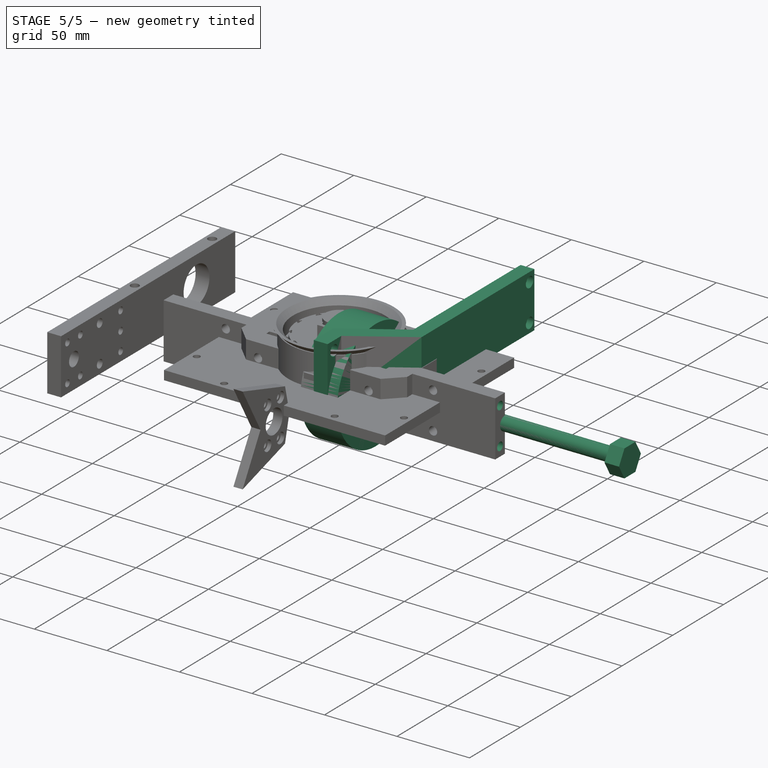
[diagram: stage 5 of 5 — iso view after this stage's code; geometry added in this stage tinted green]
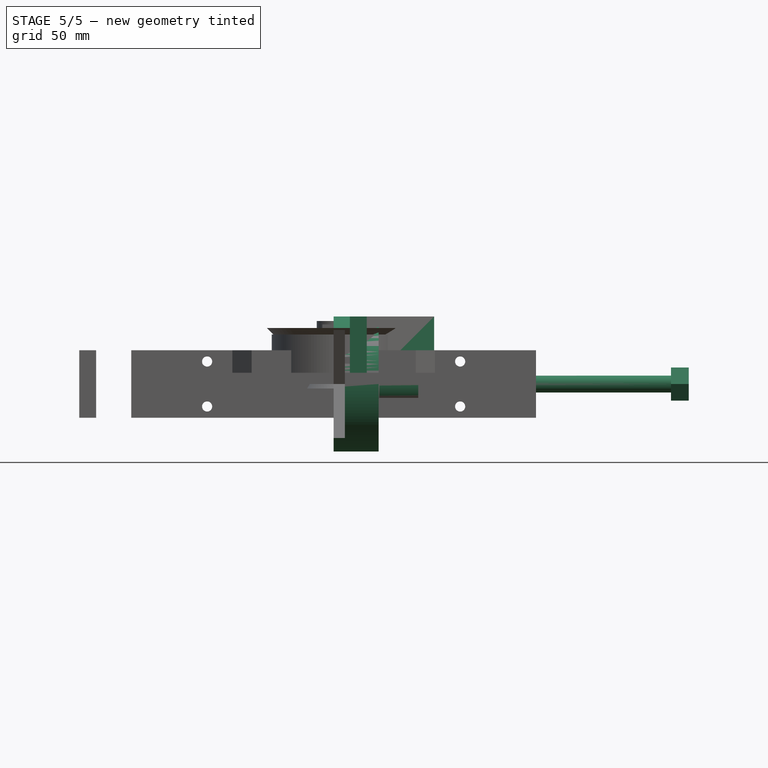
[diagram: stage 5 of 5 — front view after this stage's code; geometry added in this stage tinted green]
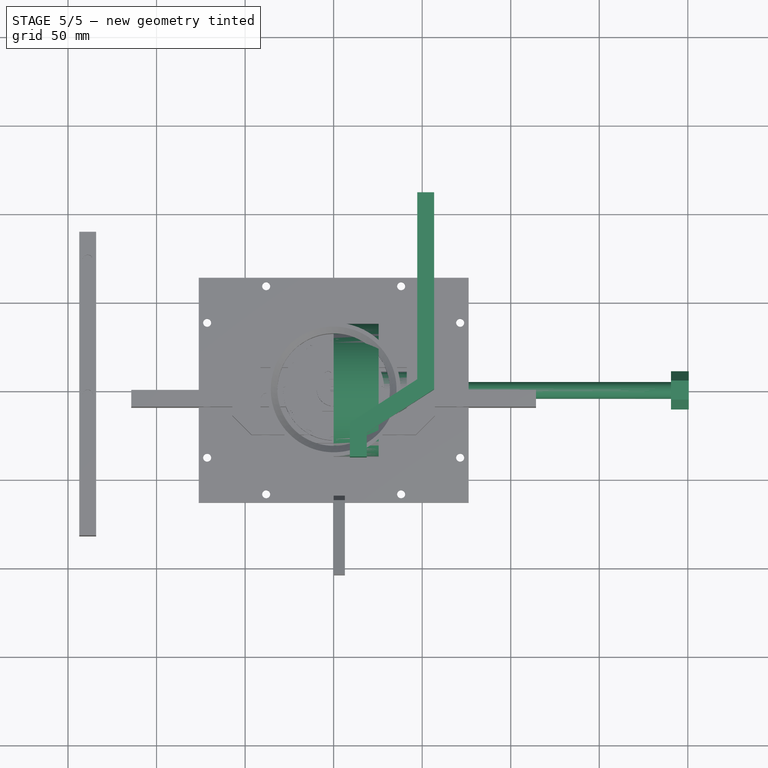
[diagram: stage 5 of 5 — top view after this stage's code; geometry added in this stage tinted green]
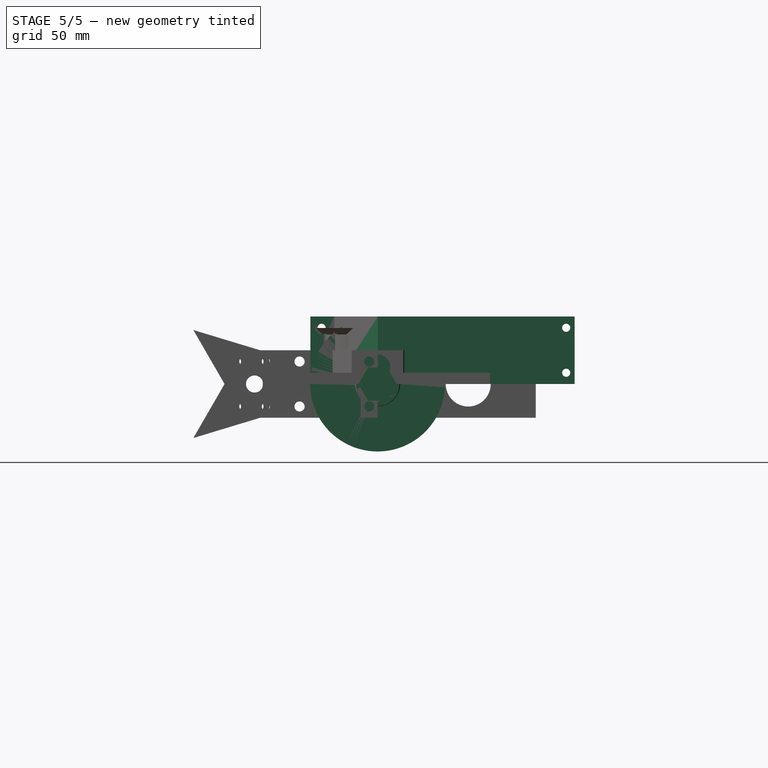
[diagram: stage 5 of 5 — right view after this stage's code; geometry added in this stage tinted green]
FEATURE [Sketcher::SketchObject] Sketch004
  AttachmentSupport = -> [YZ_Plane002]
  FullyConstrained = true
  MapMode = 5
  Placement = pos=(0,0,0) rot=(0.57735,0.57735,0.57735;2.0944rad)
  sketch-geometry (2):
    g0: Circle CenterX=0 CenterY=0 CenterZ=0 NormalX=0 NormalY=0 NormalZ=1 AngleXU=0 Radius=38.1
    g1: Circle CenterX=0 CenterY=0 CenterZ=0 NormalX=0 NormalY=0 NormalZ=1 AngleXU=0 Radius=12.7
  constraints (4):
    c: Coincident(g0,g-1)
    c: Coincident(g1,g0)
    c: Diameter(g0) = 76.2
    c: Diameter(g1) = 25.4
FEATURE [PartDesign::Pad] Pad002
  Direction = (1,0,0)
  Length = 25.4
  Length2 = 10
  Placement = pos=(0,0,0) rot=(0.57735,0.57735,0.57735;2.0944rad)
  Profile = -> Sketch004
  ReferenceAxis = -> Sketch004 [N_Axis]
  Refine = true
  Suppressed = false
  Type = 0
FEATURE [PartDesign::Body] Body009  label="receiver"
  Group = -> [Sketch009,Pad007]
  Origin = -> Origin009
  Placement = pos=(-74.295,14.859,-30.7086) rot=(0,0,1;0rad)
  Tip = -> Pad007
FEATURE [Sketcher::SketchObject] Sketch058
  AttachmentSupport = -> [YZ_Plane021]
  FullyConstrained = true
  MapMode = 5
  Placement = pos=(0,0,0) rot=(0.57735,0.57735,0.57735;2.0944rad)
  sketch-geometry (1):
    g0: Circle CenterX=0 CenterY=0 CenterZ=0 NormalX=0 NormalY=0 NormalZ=1 AngleXU=0 Radius=12.2936
  constraints (2):
    c: Coincident(g0,g-1)
    c: Diameter(g0) = 24.5872
FEATURE [PartDesign::Pad] Pad026  label="barrel"
  Direction = (1,0,0)
  Length = 47.752
  Length2 = 10
  Placement = pos=(0,0,0) rot=(0.57735,0.57735,0.57735;2.0944rad)
  Profile = -> Sketch058
  ReferenceAxis = -> Sketch058 [N_Axis]
  Suppressed = false
  Type = 0
FEATURE [Sketcher::SketchObject] Sketch059
  AttachmentSupport = -> [Pad026]
  FullyConstrained = true
  MapMode = 5
  Placement = pos=(0,0,0) rot=(0.57735,0.57735,-0.57735;4.18879rad)
  sketch-geometry (2):
    g0: ArcOfCircle CenterX=0 CenterY=0 CenterZ=0 NormalX=0 NormalY=0 NormalZ=1 AngleXU=0 Radius=1.8669 StartAngle=2.52582 EndAngle=6.89896
    g1: LineSegment StartX=-1.524 StartY=1.0783 StartZ=0 EndX=1.524 EndY=1.0783 EndZ=0
  constraints (6):
    c: Coincident(g0,g-1)
    c: Horizontal(g1)
    c: Coincident(g0,g1)
    c: Coincident(g0,g1)
    c: DistanceX(g1,g1) = 3.048
    c: Diameter(g0) = 3.7338
FEATURE [PartDesign::Pad] Pad027  label="shaft"
  BaseFeature = -> Pad026
  Direction = (-1,0,0)
  Length = 25.2222
  Length2 = 10
  Placement = pos=(0,0,0) rot=(0.57735,0.57735,0.57735;2.0944rad)
  Profile = -> Sketch059
  ReferenceAxis = -> Sketch059 [N_Axis]
  Suppressed = false
  Type = 0
FEATURE [Sketcher::SketchObject] Sketch062
  AttachmentSupport = -> [Pad027]
  FullyConstrained = true
  MapMode = 5
  Placement = pos=(0,0,0) rot=(0.57735,0.57735,-0.57735;4.18879rad)
  sketch-geometry (1):
    g0: Circle CenterX=0 CenterY=0 CenterZ=0 NormalX=0 NormalY=0 NormalZ=1 AngleXU=0 Radius=3.4925
  constraints (3):
    c: PointOnObject(g0,g-2)
    c: PointOnObject(g0,g-1)
    c: Diameter(g0) = 6.985
FEATURE [PartDesign::Pad] Pad029
  BaseFeature = -> Pad027
  Direction = (-1,0,0)
  Length = 2.54
  Length2 = 10
  Placement = pos=(0,0,0) rot=(0.57735,0.57735,0.57735;2.0944rad)
  Profile = -> Sketch062
  ReferenceAxis = -> Sketch062 [N_Axis]
  Suppressed = false
  Type = 0
FEATURE [Sketcher::SketchObject] Sketch068
  AttachmentSupport = -> [Pocket003]
  ExternalGeometry = -> [Pocket003]
  FullyConstrained = true
  MapMode = 5
  Placement = pos=(19.05,-1.27e-14,4.2e-15) rot=(0.57735,0.57735,0.57735;2.0944rad)
  expr: Constraints[24] = <<Spreadsheet>>.bot_height / 2
  sketch-geometry (10):
    g0: LineSegment StartX=-19.05 StartY=-9.525 StartZ=0 EndX=19.05 EndY=-9.525 EndZ=0
    g1: LineSegment StartX=19.05 StartY=-9.525 StartZ=0 EndX=19.05 EndY=22.225 EndZ=0
    g2: LineSegment StartX=19.05 StartY=22.225 StartZ=0 EndX=9.525 EndY=22.225 EndZ=0
    g3: LineSegment StartX=9.525 StartY=22.225 StartZ=0 EndX=4.445 EndY=9.525 EndZ=0
    g4: LineSegment StartX=-19.05 StartY=-9.525 StartZ=0 EndX=-19.05 EndY=22.225 EndZ=0
    g5: LineSegment StartX=-19.05 StartY=22.225 StartZ=0 EndX=-9.525 EndY=22.225 EndZ=0
    g6: LineSegment StartX=-9.525 StartY=22.225 StartZ=0 EndX=-4.445 EndY=9.525 EndZ=0
    g7: ArcOfCircle CenterX=0 CenterY=9.525 CenterZ=0 NormalX=0 NormalY=0 NormalZ=1 AngleXU=0 Radius=4.445 StartAngle=3.14159 EndAngle=6.28319
    g8: Circle CenterX=-8.509 CenterY=9.525 CenterZ=0 NormalX=0 NormalY=0 NormalZ=1 AngleXU=0 Radius=1.651
    g9: Circle CenterX=8.509 CenterY=9.525 CenterZ=0 NormalX=0 NormalY=0 NormalZ=1 AngleXU=0 Radius=1.651
  constraints (28):
    c: Coincident(g-4,g0)
    c: Coincident(g0,g-5)
    c: Coincident(g0,g1)
    c: Vertical(g1)
    c: Coincident(g1,g2)
    c: Horizontal(g2)
    c: Coincident(g2,g3)
    c: Coincident(g0,g4)
    c: Vertical(g4)
    c: Coincident(g4,g5)
    c: Horizontal(g5)
    c: Coincident(g5,g6)
    c: Coincident(g7,g3)
    c: Coincident(g7,g6)
    c: Radius(g7) = 4.445
    c: Equal(g8,g9)
    c: Diameter(g9) = 3.302
    c: DistanceX(g8,g9) = 17.018
    c: Symmetric(g9,g8,g-2)
    c: PointOnObject(g7,g-2)
    c: DistanceX(g2,g2) = 9.525
    c: DistanceY(g4,g4) = 31.75
    c: Equal(g1,g4)
    c: Equal(g6,g3)
    c: DistanceY(g0,g8) = 19.05
    c: Horizontal(g9,g3)
    c: Horizontal(g3,g7)
    c: Horizontal(g7,g6)
FEATURE [Sketcher::SketchObject] Sketch069
  AttachmentSupport = -> [YZ_Plane027]
  FullyConstrained = true
  MapMode = 5
  Placement = pos=(0,0,0) rot=(0.57735,0.57735,0.57735;2.0944rad)
  expr: Constraints[14] = <<Spreadsheet>>.motor_diameter / 2
  sketch-geometry (6):
    g0: LineSegment StartX=-19.05 StartY=-7.9375 StartZ=0 EndX=-19.05 EndY=7.9375 EndZ=0
    g1: LineSegment StartX=-19.05 StartY=7.9375 StartZ=0 EndX=19.05 EndY=7.9375 EndZ=0
    g2: LineSegment StartX=19.05 StartY=7.9375 StartZ=0 EndX=19.05 EndY=-7.9375 EndZ=0
    g3: LineSegment StartX=19.05 StartY=-7.9375 StartZ=0 EndX=12.3646 EndY=-7.9375 EndZ=0
    g4: LineSegment StartX=-12.3646 StartY=-7.9375 StartZ=0 EndX=-19.05 EndY=-7.9375 EndZ=0
    g5: ArcOfCircle CenterX=0 CenterY=-8.4455 CenterZ=0 NormalX=0 NormalY=0 NormalZ=1 AngleXU=0 Radius=12.375 StartAngle=0.041062 EndAngle=3.10053
  constraints (18):
    c: Coincident(g0,g1)
    c: Coincident(g1,g2)
    c: Coincident(g2,g3)
    c: Coincident(g4,g0)
    c: Vertical(g0)
    c: Vertical(g2)
    c: Horizontal(g1)
    c: Horizontal(g3)
    c: Symmetric(g1,g0,g-1)
    c: Distance(g3,g4) = 38.1
    c: Horizontal(g4)
    c: Coincident(g5,g3)
    c: Coincident(g5,g4)
    c: PointOnObject(g5,g-2)
    c: Radius(g5) = 12.375
    c: DistanceY(g0,g0) = 15.875
    c: Equal(g2,g0)
    c: DistanceY(g5,g3) = 0.508
FEATURE [PartDesign::Pad] Pad034
  Direction = (1,0,0)
  Length = 19.05
  Length2 = 10
  Placement = pos=(0,0,0) rot=(0.57735,0.57735,0.57735;2.0944rad)
  Profile = -> Sketch069
  ReferenceAxis = -> Sketch069 [N_Axis]
  Refine = true
  Suppressed = false
  Type = 0
  expr: Length = <<Spreadsheet>>.gearbox_length
FEATURE [Sketcher::SketchObject] Sketch070  label="holes002"
  AttachmentSupport = -> [Pad034]
  FullyConstrained = true
  MapMode = 5
  Placement = pos=(0,1.8e-15,7.9375) rot=(0,0,-1;1.5708rad)
  expr: Constraints[6] = <<Spreadsheet>>.m3_clearance
  sketch-geometry (4):
    g0: Circle CenterX=15.875 CenterY=15.875 CenterZ=0 NormalX=0 NormalY=0 NormalZ=1 AngleXU=0 Radius=1.778
    g1: Circle CenterX=15.875 CenterY=3.175 CenterZ=0 NormalX=0 NormalY=0 NormalZ=1 AngleXU=0 Radius=1.778
    g2: Circle CenterX=-15.875 CenterY=15.875 CenterZ=0 NormalX=0 NormalY=0 NormalZ=1 AngleXU=0 Radius=1.778
    g3: Circle CenterX=-15.875 CenterY=3.175 CenterZ=0 NormalX=0 NormalY=0 NormalZ=1 AngleXU=0 Radius=1.778
  constraints (11):
    c: Equal(g2,g3)
    c: Equal(g3,g1)
    c: Equal(g1,g0)
    c: Horizontal(g0,g2)
    c: Vertical(g1,g0)
    c: Vertical(g2,g3)
    c: Diameter(g2) = 3.556
    c: DistanceY(g3,g2) = 12.7
    c: Distance(g3,g-1) = 3.175
    c: DistanceX(g3,g-1) = 15.875
    c: Symmetric(g1,g3,g-2)
FEATURE [PartDesign::Pocket] Pocket004  label="through-holes"
  BaseFeature = -> Pad034
  Direction = (0,0,-1)
  Length = 5
  Length2 = 5
  Placement = pos=(0,0,0) rot=(0.57735,0.57735,0.57735;2.0944rad)
  Profile = -> Sketch070
  ReferenceAxis = -> Sketch070 [N_Axis]
  Refine = true
  Suppressed = false
  Type = 1
FEATURE [Sketcher::SketchObject] Sketch071  label="holes003"
  AttachmentSupport = -> [Pad034]
  FullyConstrained = true
  MapMode = 5
  Placement = pos=(0,1.8e-15,7.9375) rot=(0,0,-1;1.5708rad)
  expr: Constraints[6] = <<Spreadsheet>>.m3_SHCS_head_d
  sketch-geometry (4):
    g0: Circle CenterX=15.875 CenterY=15.875 CenterZ=0 NormalX=0 NormalY=0 NormalZ=1 AngleXU=0 Radius=2.794
    g1: Circle CenterX=15.875 CenterY=3.175 CenterZ=0 NormalX=0 NormalY=0 NormalZ=1 AngleXU=0 Radius=2.794
    g2: Circle CenterX=-15.875 CenterY=15.875 CenterZ=0 NormalX=0 NormalY=0 NormalZ=1 AngleXU=0 Radius=2.794
    g3: Circle CenterX=-15.875 CenterY=3.175 CenterZ=0 NormalX=0 NormalY=0 NormalZ=1 AngleXU=0 Radius=2.794
  constraints (11):
    c: Equal(g2,g3)
    c: Equal(g3,g1)
    c: Equal(g1,g0)
    c: Horizontal(g0,g2)
    c: Vertical(g1,g0)
    c: Vertical(g2,g3)
    c: Diameter(g2) = 5.588
    c: DistanceY(g3,g2) = 12.7
    c: Distance(g3,g-1) = 3.175
    c: DistanceX(g3,g-1) = 15.875
    c: Symmetric(g1,g3,g-2)
FEATURE [PartDesign::Pocket] Pocket005  label="counterbore"
  BaseFeature = -> Pocket004
  Direction = (0,0,-1)
  Length = 3.048
  Length2 = 5
  Placement = pos=(0,0,0) rot=(0.57735,0.57735,0.57735;2.0944rad)
  Profile = -> Sketch071
  ReferenceAxis = -> Sketch071 [N_Axis]
  Refine = true
  Suppressed = false
  Type = 0
  expr: Length = <<Spreadsheet>>.m3_SHCS_head_h
FEATURE [Sketcher::SketchObject] Sketch075
  AttachmentSupport = -> [YZ_Plane029]
  FullyConstrained = true
  MapMode = 5
  Placement = pos=(0,0,0) rot=(0.57735,0.57735,0.57735;2.0944rad)
  sketch-geometry (1):
    g0: Circle CenterX=0 CenterY=0 CenterZ=0 NormalX=0 NormalY=0 NormalZ=1 AngleXU=0 Radius=4.7625
  constraints (2):
    c: Diameter(g0) = 9.525
    c: Coincident(g0,g-1)
FEATURE [PartDesign::Pad] Pad038
  Direction = (1,0,0)
  Length = 190.5
  Length2 = 10
  Placement = pos=(0,0,0) rot=(0.57735,0.57735,0.57735;2.0944rad)
  Profile = -> Sketch075
  ReferenceAxis = -> Sketch075 [N_Axis]
  Refine = true
  Suppressed = false
  Type = 0
FEATURE [Sketcher::SketchObject] Sketch076
  AttachmentSupport = -> [Pad038]
  ExternalGeometry = -> [Pad038]
  FullyConstrained = false
  MapMode = 5
  Placement = pos=(190.5,0,0) rot=(0.57735,0.57735,0.57735;2.0944rad)
  sketch-geometry (7):
    g0: LineSegment StartX=5.39891 StartY=-9.35119 StartZ=0 EndX=10.7978 EndY=5.15e-14 EndZ=0
    g1: LineSegment StartX=10.7978 StartY=5.15e-14 StartZ=0 EndX=5.39891 EndY=9.35119 EndZ=0
    g2: LineSegment StartX=5.39891 StartY=9.35119 StartZ=0 EndX=-5.39891 EndY=9.35119 EndZ=0
    g3: LineSegment StartX=-5.39891 StartY=9.35119 StartZ=0 EndX=-10.7978 EndY=-1.6e-14 EndZ=0
    g4: LineSegment StartX=-10.7978 StartY=-1.68e-14 StartZ=0 EndX=-5.39891 EndY=-9.35119 EndZ=0
    g5: LineSegment StartX=-5.39891 StartY=-9.35119 StartZ=0 EndX=5.39891 EndY=-9.35119 EndZ=0
    g6: Circle CenterX=-9.17e-14 CenterY=1.7e-14 CenterZ=0 NormalX=0 NormalY=0 NormalZ=1 AngleXU=0 Radius=10.7978
  constraints (15):
    c: Coincident(g0,g1)
    c: Coincident(g1,g2)
    c: Coincident(g2,g3)
    c: Coincident(g3,g4)
    c: Coincident(g4,g5)
    c: Coincident(g5,g0)
    c: Equal(g0, g1-g5) x5
    c: PointOnObject(g0,g6)
    c: PointOnObject(g1,g6)
    c: PointOnObject(g2,g6)
    c: PointOnObject(g3,g6)
    c: PointOnObject(g4,g6)
    c: PointOnObject(g5,g6)
    c: Coincident(g6,g-3)
    c: Horizontal(g5)
FEATURE [PartDesign::Pad] Pad039
  BaseFeature = -> Pad038
  Direction = (1,0,0)
  Length = 10.0076
  Length2 = 10
  Placement = pos=(0,0,0) rot=(0.57735,0.57735,0.57735;2.0944rad)
  Profile = -> Sketch076
  ReferenceAxis = -> Sketch076 [N_Axis]
  Refine = true
  Suppressed = false
  Type = 0
FEATURE [PartDesign::Body] Body029  label="beater-shaft"
  Group = -> [Sketch075,Pad038,Sketch076,Pad039]
  Origin = -> Origin029
  Placement = pos=(-142.621,0,0) rot=(0,0,1;0rad)
  Tip = -> Pad039
FEATURE [Sketcher::SketchObject] Sketch077  label="countersink005"
  AttachmentSupport = -> [Pad004]
  ExternalGeometry = -> [Pad004]
  FullyConstrained = true
  MapMode = 5
  Placement = pos=(0,0,0) rot=(-1,0,0;1.5708rad)
  expr: Constraints[7] = <<Spreadsheet>>.m4_SHCS_head_d
  sketch-geometry (4):
    g0: Circle CenterX=71.4375 CenterY=12.7 CenterZ=0 NormalX=0 NormalY=0 NormalZ=1 AngleXU=0 Radius=3.683
    g1: Circle CenterX=71.4375 CenterY=-12.7 CenterZ=0 NormalX=0 NormalY=0 NormalZ=1 AngleXU=0 Radius=3.683
    g2: Circle CenterX=-71.4375 CenterY=-12.7 CenterZ=0 NormalX=0 NormalY=0 NormalZ=1 AngleXU=0 Radius=3.683
    g3: Circle CenterX=-71.4375 CenterY=12.7 CenterZ=0 NormalX=0 NormalY=0 NormalZ=1 AngleXU=0 Radius=3.683
  constraints (8):
    c: Coincident(g0,g-6)
    c: Coincident(g1,g-5)
    c: Coincident(g2,g-4)
    c: Coincident(g3,g-3)
    c: Equal(g3,g2)
    c: Equal(g2,g1)
    c: Equal(g1,g0)
    c: Diameter(g3) = 7.366
FEATURE [PartDesign::Pocket] Pocket006
  BaseFeature = -> Pad004
  Direction = (0,-1,-2e-16)
  Length = 4.318
  Length2 = 5
  Placement = pos=(0,0,0) rot=(1,0,0;1.5708rad)
  Profile = -> Sketch077
  ReferenceAxis = -> Sketch077 [N_Axis]
  Refine = true
  Suppressed = false
  Type = 0
  expr: Length = <<Spreadsheet>>.m4_SHCS_head_h
FEATURE [Sketcher::SketchObject] Sketch079
  AttachmentSupport = -> [XY_Plane005]
  FullyConstrained = false
  MapMode = 5
  sketch-geometry (9):
    g0: LineSegment StartX=47.2395 StartY=111.252 StartZ=0 EndX=56.7645 EndY=111.252 EndZ=0
    g1: LineSegment StartX=56.7645 StartY=111.252 StartZ=0 EndX=56.7645 EndY=0.12703 EndZ=0
    g2: LineSegment StartX=56.7645 StartY=0.12703 StartZ=0 EndX=18.6645 EndY=-24.474 EndZ=0
    g3: LineSegment StartX=9.13949 StartY=-18.923 StartZ=0 EndX=47.2395 EndY=5.67806 EndZ=0
    g4: LineSegment StartX=47.2395 StartY=5.67806 StartZ=0 EndX=47.2395 EndY=111.252 EndZ=0
    g5: LineSegment StartX=47.2395 StartY=5.67806 StartZ=0 EndX=56.7645 EndY=0.12703 EndZ=0
    g6: LineSegment StartX=18.6645 StartY=-24.474 StartZ=0 EndX=18.6645 EndY=-37.973 EndZ=0
    g7: LineSegment StartX=18.6645 StartY=-37.973 StartZ=0 EndX=9.13949 EndY=-37.973 EndZ=0
    g8: LineSegment StartX=9.13949 StartY=-18.923 StartZ=0 EndX=9.13949 EndY=-37.973 EndZ=0
  constraints (23):
    c: Horizontal(g0)
    c: Coincident(g0,g1)
    c: Vertical(g1)
    c: Coincident(g1,g2)
    c: Coincident(g3,g4)
    c: Coincident(g4,g0)
    c: Vertical(g4)
    c: Parallel(g3,g2)
    c: Coincident(g5,g3)
    c: Coincident(g5,g1)
    c: DistanceX(g0,g0) = 9.525
    c: DistanceY(g1,g1) = 111.125
    c: DistanceX(g3,g3) = 38.1
    c: Coincident(g6,g7)
    c: Horizontal(g7)
    c: Coincident(g2,g6)
    c: Equal(g7,g0)
    c: Coincident(g8,g3)
    c: Coincident(g8,g7)
    c: Vertical(g8)
    c: DistanceY(g8,g8) = 19.05
    c: Vertical(g6)
    c: DistanceY(g6,g0) = 149.225
FEATURE [PartDesign::Pad] Pad040
  Direction = (0,0,1)
  Length = 38.1
  Length2 = 10
  Profile = -> Sketch079
  ReferenceAxis = -> Sketch079 [N_Axis]
  Refine = true
  Suppressed = false
  Type = 0
  expr: Length = <<Spreadsheet>>.bot_height
FEATURE [Sketcher::SketchObject] Sketch080
  AttachmentSupport = -> [Pad040]
  ExternalGeometry = -> [Pad040]
  FullyConstrained = false
  MapMode = 5
  Placement = pos=(56.7645,0,0) rot=(0.57735,0.57735,0.57735;2.0944rad)
  expr: Constraints[4] = <<Spreadsheet>>.m4_clearance
  sketch-geometry (7):
    g0: LineSegment StartX=100.076 StartY=80.0608 StartZ=0 EndX=100.076 EndY=-26.1323 EndZ=0
    g1: Circle CenterX=106.49 CenterY=31.75 CenterZ=0 NormalX=0 NormalY=0 NormalZ=1 AngleXU=0 Radius=2.286
    g2: Circle CenterX=106.49 CenterY=6.35 CenterZ=0 NormalX=0 NormalY=0 NormalZ=1 AngleXU=0 Radius=2.286
    g3: LineSegment StartX=-90.0706 StartY=19.05 StartZ=0 EndX=140.078 EndY=19.05 EndZ=0
    g4: LineSegment StartX=-31.623 StartY=80.0608 StartZ=0 EndX=-31.623 EndY=-47.2599 EndZ=0
    g5: Circle CenterX=-31.623 CenterY=31.75 CenterZ=0 NormalX=0 NormalY=0 NormalZ=1 AngleXU=0 Radius=2.286
    g6: Circle CenterX=-31.623 CenterY=6.35 CenterZ=0 NormalX=0 NormalY=0 NormalZ=1 AngleXU=0 Radius=2.286
  constraints (15):
    c: Vertical(g0)
    c: Symmetric(g-3,g-3,g3)
    c: Symmetric(g2,g1,g3)
    c: Equal(g1,g2)
    c: Diameter(g2) = 4.572
    c: Distance(g2,g3) = 12.7
    c: Vertical(g4)
    c: PointOnObject(g5,g4)
    c: PointOnObject(g6,g4)
    c: Equal(g5,g6)
    c: Equal(g6,g1)
    c: Horizontal(g5,g1)
    c: Horizontal(g6,g2)
    c: DistanceX(g5,g1) = 138.113
    c: DistanceX(g1,g-3) = 4.7625
FEATURE [PartDesign::Pocket] Pocket008  label="through-holes001"
  BaseFeature = -> Pad040
  Direction = (-1,0,0)
  Length = 5
  Length2 = 5
  Profile = -> Sketch080
  ReferenceAxis = -> Sketch080 [N_Axis]
  Refine = true
  Suppressed = false
  Type = 1
FEATURE [Sketcher::SketchObject] Sketch081
  AttachmentSupport = -> [Pocket008]
  ExternalGeometry = -> [Pocket008]
  FullyConstrained = true
  MapMode = 5
  Placement = pos=(56.7645,0,0) rot=(0.57735,0.57735,0.57735;2.0944rad)
  expr: Constraints[1] = <<Spreadsheet>>.m4_SHCS_head_d
  sketch-geometry (2):
    g0: Circle CenterX=106.49 CenterY=31.75 CenterZ=0 NormalX=0 NormalY=0 NormalZ=1 AngleXU=0 Radius=3.683
    g1: Circle CenterX=106.49 CenterY=6.35 CenterZ=0 NormalX=0 NormalY=0 NormalZ=1 AngleXU=0 Radius=3.683
  constraints (5):
    c: Equal(g1,g0)
    c: Diameter(g0) = 7.366
    c: Vertical(g0,g1)
    c: DistanceY(g1,g0) = 25.4
    c: Coincident(g0,g-3)
FEATURE [PartDesign::Pocket] Pocket009  label="counter-sink-rear"
  BaseFeature = -> Pocket008
  Direction = (-1,0,0)
  Length = 4.318
  Length2 = 5
  Profile = -> Sketch081
  ReferenceAxis = -> Sketch081 [N_Axis]
  Refine = true
  Suppressed = false
  Type = 0
  expr: Length = <<Spreadsheet>>.m4_SHCS_head_h
FEATURE [Sketcher::SketchObject] Sketch082
  AttachmentSupport = -> [Pocket009]
  ExternalGeometry = -> [Pocket009]
  FullyConstrained = true
  MapMode = 5
  Placement = pos=(18.6645,0,0) rot=(0.57735,0.57735,0.57735;2.0944rad)
  expr: Constraints[2] = <<Spreadsheet>>.m4_SHCS_head_d
  sketch-geometry (2):
    g0: Circle CenterX=-31.623 CenterY=31.75 CenterZ=0 NormalX=0 NormalY=0 NormalZ=1 AngleXU=0 Radius=3.683
    g1: Circle CenterX=-31.623 CenterY=6.35 CenterZ=0 NormalX=0 NormalY=0 NormalZ=1 AngleXU=0 Radius=3.683
  constraints (5):
    c: Coincident(g1,g-4)
    c: Equal(g1,g0)
    c: Diameter(g0) = 7.366
    c: Vertical(g0,g1)
    c: DistanceY(g1,g0) = 25.4
FEATURE [PartDesign::Pocket] Pocket010
  BaseFeature = -> Pocket009
  Direction = (-1,0,0)
  Length = 4.318
  Length2 = 5
  Profile = -> Sketch082
  ReferenceAxis = -> Sketch082 [N_Axis]
  Refine = true
  Suppressed = false
  Type = 0
  expr: Length = <<Spreadsheet>>.m4_SHCS_head_h
FEATURE [PartDesign::Body] Body005  label="wheel-guard"
  Group = -> [Sketch079,Pad040,Sketch080,Pocket008,Sketch081,Pocket009,Sketch082,Pocket010]
  Origin = -> Origin005
  Placement = pos=(0.762,-12.192,-19.177) rot=(0,0,1;0rad)
  Tip = -> Pocket010
FEATURE [Sketcher::SketchObject] Sketch083
  AttachmentSupport = -> [Pocket006]
  FullyConstrained = true
  MapMode = 5
  Placement = pos=(114.3,0,0) rot=(0.707107,0,0.707107;3.14159rad)
  expr: Constraints[3] = <<Spreadsheet>>.m4_nut_diameter
  sketch-geometry (2):
    g0: Circle CenterX=-12.7 CenterY=4.7625 CenterZ=0 NormalX=0 NormalY=0 NormalZ=1 AngleXU=0 Radius=2.8575
    g1: Circle CenterX=12.7 CenterY=4.7625 CenterZ=0 NormalX=0 NormalY=0 NormalZ=1 AngleXU=0 Radius=2.8575
  constraints (5):
    c: Symmetric(g1,g0,g-2)
    c: Distance(g1,g-2) = 12.7
    c: Equal(g1,g0)
    c: Diameter(g0) = 5.715
    c: DistanceY(g-1,g0) = 4.7625
FEATURE [PartDesign::Pocket] Pocket011  label="side-screws"
  BaseFeature = -> Pocket006
  Direction = (-1,0,2e-16)
  Length = 6.096
  Length2 = 5
  Placement = pos=(0,0,0) rot=(1,0,0;1.5708rad)
  Profile = -> Sketch083
  ReferenceAxis = -> Sketch083 [N_Axis]
  Refine = true
  Suppressed = false
  Type = 0
  expr: Length = <<Spreadsheet>>.m4_nut_depth
FEATURE [Sketcher::SketchObject] Sketch084
  AttachmentSupport = -> [Pocket006]
  FullyConstrained = true
  MapMode = 5
  Placement = pos=(-114.3,0,0) rot=(0.707107,0,-0.707107;3.14159rad)
  expr: Constraints[3] = <<Spreadsheet>>.m4_nut_diameter
  sketch-geometry (2):
    g0: Circle CenterX=-12.7 CenterY=4.7625 CenterZ=0 NormalX=0 NormalY=0 NormalZ=1 AngleXU=0 Radius=2.8575
    g1: Circle CenterX=12.7 CenterY=4.7625 CenterZ=0 NormalX=0 NormalY=0 NormalZ=1 AngleXU=0 Radius=2.8575
  constraints (5):
    c: Symmetric(g1,g0,g-2)
    c: Distance(g1,g-2) = 12.7
    c: Equal(g1,g0)
    c: Diameter(g0) = 5.715
    c: DistanceY(g-1,g0) = 4.7625
FEATURE [PartDesign::Pocket] Pocket012  label="side-screws2"
  BaseFeature = -> Pocket011
  Direction = (1,0,2e-16)
  Length = 6.096
  Length2 = 5
  Placement = pos=(0,0,0) rot=(1,0,0;1.5708rad)
  Profile = -> Sketch084
  ReferenceAxis = -> Sketch084 [N_Axis]
  Refine = true
  Suppressed = false
  Type = 0
  expr: Length = <<Spreadsheet>>.m4_nut_depth
FEATURE [Sketcher::SketchObject] Sketch088  label="top-holes004"
  AttachmentSupport = -> [Pocket012]
  ExternalGeometry = -> [Pocket012]
  FullyConstrained = false
  MapMode = 5
  Placement = pos=(0,1.27e-14,19.05) rot=(0,0,1;3.14159rad)
  expr: Constraints[0] = <<Spreadsheet>>.m4_nut_diameter
  sketch-geometry (2):
    g0: Circle CenterX=-38.1 CenterY=4.7625 CenterZ=0 NormalX=0 NormalY=0 NormalZ=1 AngleXU=0 Radius=2.8575
    g1: Circle CenterX=38.1 CenterY=4.7625 CenterZ=0 NormalX=0 NormalY=0 NormalZ=1 AngleXU=0 Radius=2.8575
  constraints (4):
    c: Diameter(g0) = 5.715
    c: Symmetric(g0,g1,g-2)
    c: DistanceX(g0,g1) = 76.2
    c: DistanceY(g-1,g1) = 4.7625
FEATURE [PartDesign::Pocket] Pocket016  label="top-holes005"
  BaseFeature = -> Pocket012
  Direction = (0,0,-1)
  Length = 6.096
  Length2 = 5
  Placement = pos=(0,0,0) rot=(1,0,0;1.5708rad)
  Profile = -> Sketch088
  ReferenceAxis = -> Sketch088 [N_Axis]
  Refine = true
  Suppressed = false
  Type = 0
  expr: Length = <<Spreadsheet>>.m4_nut_depth
FEATURE [Sketcher::SketchObject] Sketch089  label="bot-holes002"
  AttachmentSupport = -> [Pocket016]
  FullyConstrained = true
  MapMode = 5
  Placement = pos=(0,-1.27e-14,-19.05) rot=(1,0,0;3.14159rad)
  expr: Constraints[0] = <<Spreadsheet>>.m4_nut_diameter
  sketch-geometry (2):
    g0: Circle CenterX=38.1 CenterY=4.7625 CenterZ=0 NormalX=0 NormalY=0 NormalZ=1 AngleXU=0 Radius=2.8575
    g1: Circle CenterX=-38.1 CenterY=4.7625 CenterZ=0 NormalX=0 NormalY=0 NormalZ=1 AngleXU=0 Radius=2.8575
  constraints (5):
    c: Diameter(g1) = 5.715
    c: Symmetric(g1,g0,g-2)
    c: DistanceX(g1,g0) = 76.2
    c: DistanceY(g-1,g0) = 4.7625
    c: Equal(g0,g1)
FEATURE [PartDesign::Pocket] Pocket017  label="bot-holes004"
  BaseFeature = -> Pocket016
  Direction = (0,0,1)
  Length = 6.096
  Length2 = 5
  Placement = pos=(0,0,0) rot=(1,0,0;1.5708rad)
  Profile = -> Sketch089
  ReferenceAxis = -> Sketch089 [N_Axis]
  Refine = true
  Suppressed = false
  Type = 0
  expr: Length = <<Spreadsheet>>.m4_nut_depth
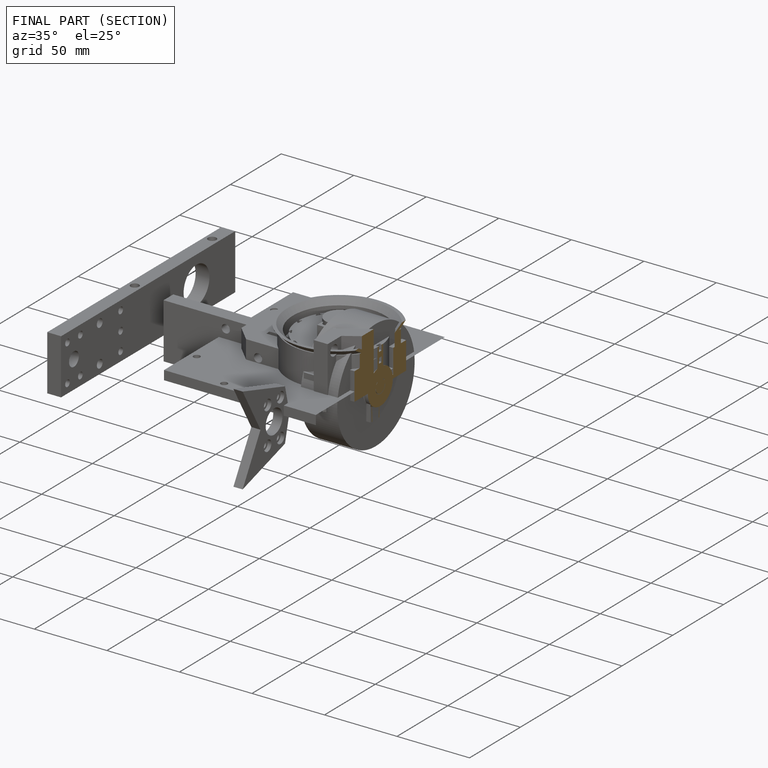
[diagram: finished part — half-section view (interior)]
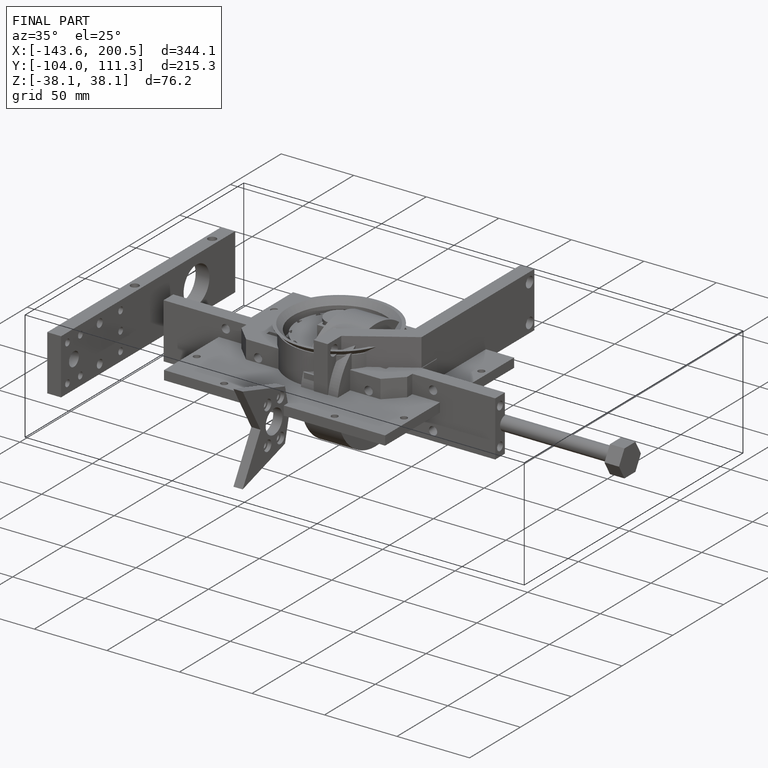
[diagram: finished part — iso view with bounding-box wireframe]
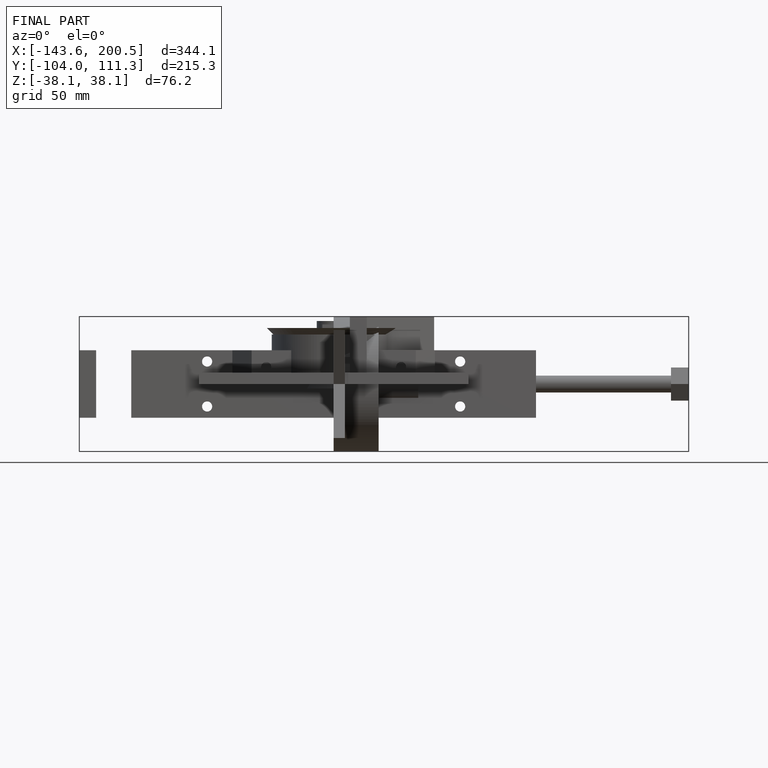
[diagram: finished part — front view with bounding-box wireframe]
